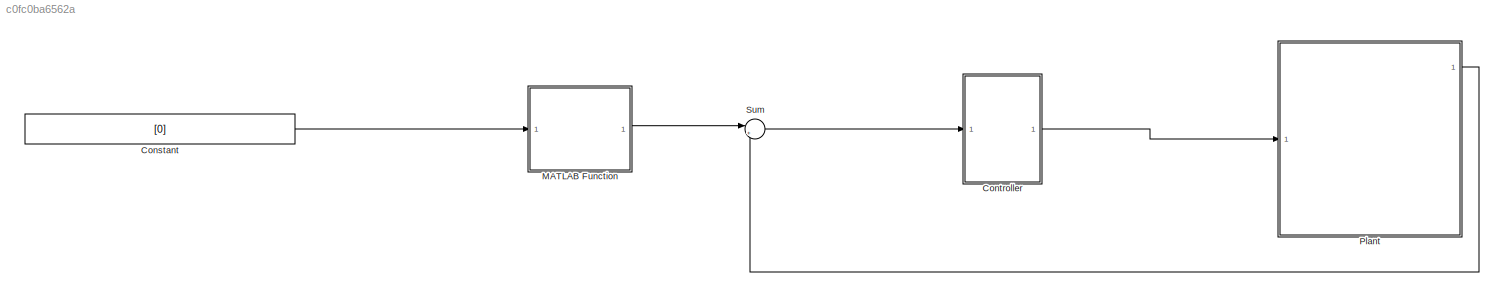
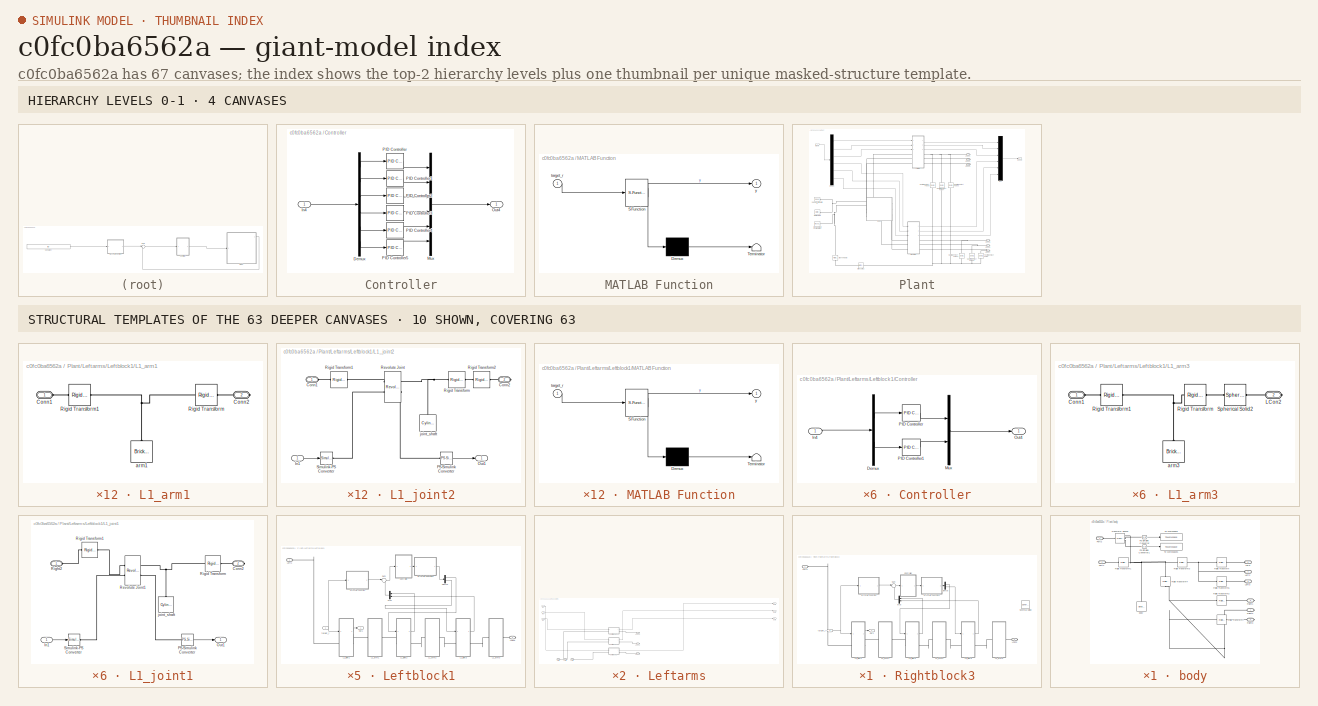
[diagram: thumbnail index - top-2 hierarchy levels (4 canvases) + 10 structural-template representatives of the remaining 63 canvases]
MODEL slx_c0fc0ba6562a
KIND model
CONFIG AbsTol = auto
CONFIG EnableMultiTasking = off
CONFIG FixedStep = auto
CONFIG MaxStep = auto
CONFIG MinStep = auto
CONFIG RelTol = 1e-3
CONFIG SampleTimeConstraint = Unconstrained
CONFIG Solver = VariableStepAuto
CONFIG SolverName = VariableStepAuto
CONFIG StartTime = 0.0
CONFIG StopTime = 10.0
BLOCK [Constant] Constant
  Value = [0]
BLOCK [SubSystem] Controller
  Ports = [1, 1]
  RequestExecContextInheritance = off
BLOCK [Demux] Controller/Demux
  Outputs = 6
  Ports = [1, 6]
BLOCK [Inport] Controller/In4
BLOCK [Mux] Controller/Mux
  DisplayOption = bar
  Inputs = 6
  Ports = [6, 1]
BLOCK [Outport] Controller/Out4
  VectorParamsAs1DForOutWhenUnconnected = off
BLOCK [Reference] Controller/PID Controller  REF=simulink/Continuous/PID Controller
  Ports = [1, 1]
  SourceBlock = simulink/Continuous/PID Controller
  SourceProductBaseCode = SL
  SourceType = PID 1dof
BLOCK [Reference] Controller/PID Controller1  REF=simulink/Continuous/PID Controller
  Ports = [1, 1]
  SourceBlock = simulink/Continuous/PID Controller
  SourceProductBaseCode = SL
  SourceType = PID 1dof
BLOCK [Reference] Controller/PID Controller2  REF=simulink/Continuous/PID Controller
  Ports = [1, 1]
  SourceBlock = simulink/Continuous/PID Controller
  SourceProductBaseCode = SL
  SourceType = PID 1dof
BLOCK [Reference] Controller/PID Controller3  REF=simulink/Continuous/PID Controller
  Ports = [1, 1]
  SourceBlock = simulink/Continuous/PID Controller
  SourceProductBaseCode = SL
  SourceType = PID 1dof
BLOCK [Reference] Controller/PID Controller4  REF=simulink/Continuous/PID Controller
  Ports = [1, 1]
  SourceBlock = simulink/Continuous/PID Controller
  SourceProductBaseCode = SL
  SourceType = PID 1dof
BLOCK [Reference] Controller/PID Controller5  REF=simulink/Continuous/PID Controller
  Ports = [1, 1]
  SourceBlock = simulink/Continuous/PID Controller
  SourceProductBaseCode = SL
  SourceType = PID 1dof
BLOCK [SubSystem] MATLAB Function
  ErrorFcn = Stateflow.Translate.translate
  PermitHierarchicalResolution = ExplicitOnly
  Ports = [1, 1]
  RequestExecContextInheritance = off
  SFBlockType = MATLAB Function
  TreatAsAtomicUnit = on
BLOCK [Demux] MATLAB Function/ Demux 
  Outputs = 1
  Ports = [1, 1]
BLOCK [S-Function] MATLAB Function/ SFunction 
  EnableBusSupport = on
  FunctionName = sf_sfun
  PortCounts = [1 2]
  Ports = [1, 2]
  SFcnIsStateOwnerBlock = off
  SFunctionDeploymentMode = off
  Tag = Stateflow S-Function 2
BLOCK [Terminator] MATLAB Function/ Terminator 
BLOCK [Inport] MATLAB Function/target_r
BLOCK [Outport] MATLAB Function/y
  VectorParamsAs1DForOutWhenUnconnected = off
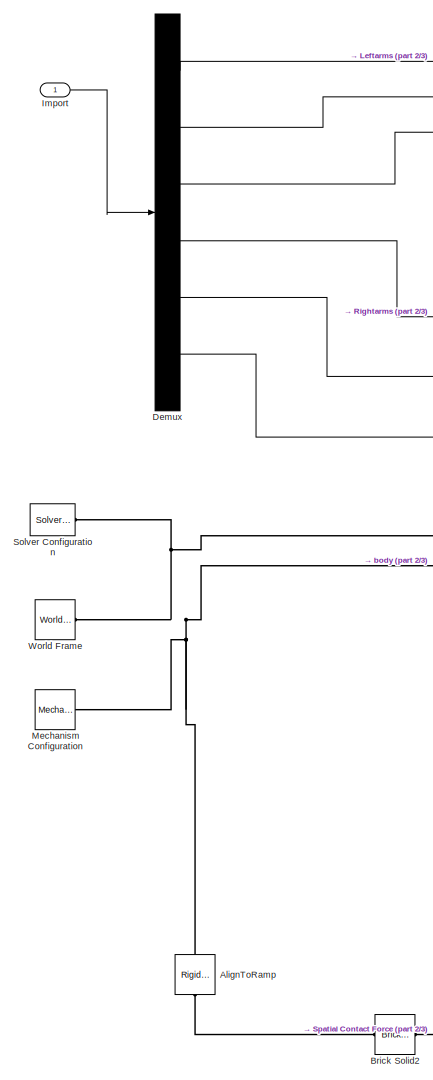
[diagram: Plant - part 1/3, left side, full height]
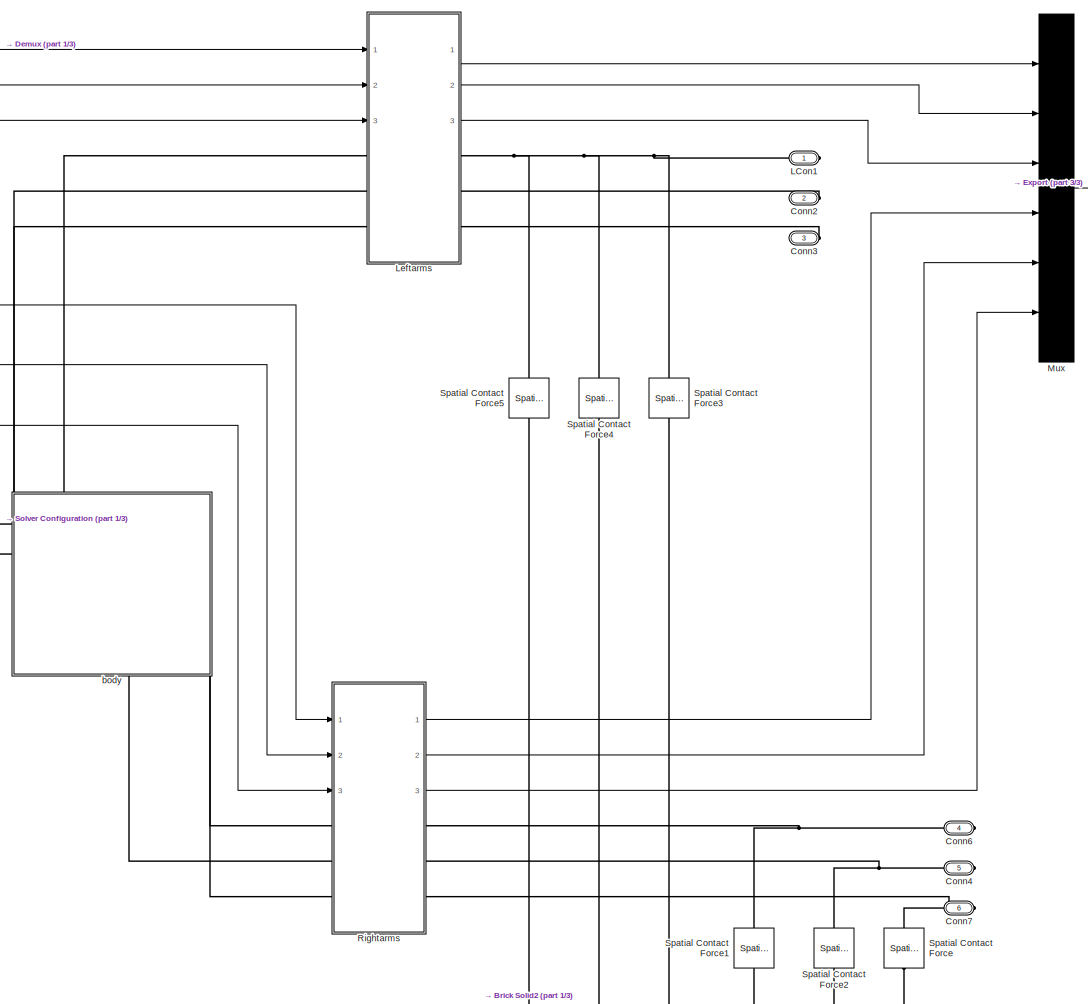
[diagram: Plant - part 2/3, center side, full height]
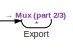
[diagram: Plant - part 3/3, top right region]
BLOCK [SubSystem] Plant
  Ports = [1, 1, 0, 0, 0, 0, 6]
  RequestExecContextInheritance = off
BLOCK [Reference] Plant/AlignToRamp  REF=sm_lib/Frames and
Transforms/Rigid
Transform
  NameLocation = left
  Ports = [0, 0, 0, 0, 0, 1, 1]
  SourceBlock = sm_lib/Frames and\nTransforms/Rigid\nTransform
  SourceProductBaseCode = MS
  SourceType = Rigid\nTransform
BLOCK [Reference] Plant/Brick Solid2  REF=sm_lib/Body Elements/Brick Solid
  NameLocation = top
  Ports = [0, 0, 0, 0, 0, 1, 1]
  SourceBlock = sm_lib/Body Elements/Brick Solid
  SourceProductBaseCode = MS
  SourceType = Brick Solid
BLOCK [PMIOPort] Plant/Conn2
  Port = 2
  Side = Right
BLOCK [PMIOPort] Plant/Conn3
  Port = 3
  Side = Right
BLOCK [PMIOPort] Plant/Conn4
  Port = 5
  Side = Right
BLOCK [PMIOPort] Plant/Conn6
  Port = 4
  Side = Right
BLOCK [PMIOPort] Plant/Conn7
  Port = 6
  Side = Right
BLOCK [Demux] Plant/Demux
  Outputs = 6
  Ports = [1, 6]
BLOCK [Outport] Plant/Export
  VectorParamsAs1DForOutWhenUnconnected = off
BLOCK [Inport] Plant/Import
BLOCK [PMIOPort] Plant/LCon1
  Side = Right
BLOCK [SubSystem] Plant/Leftarms
  Ports = [3, 3, 0, 0, 0, 3, 3]
  RequestExecContextInheritance = off
BLOCK [Inport] Plant/Leftarms/In1
BLOCK [Inport] Plant/Leftarms/In3
  Port = 2
BLOCK [Inport] Plant/Leftarms/In5
  Port = 3
BLOCK [PMIOPort] Plant/Leftarms/LCon1
  Side = Right
BLOCK [PMIOPort] Plant/Leftarms/LCon2
  Port = 2
  Side = Right
BLOCK [PMIOPort] Plant/Leftarms/LCon3
  Port = 3
  Side = Right
BLOCK [PMIOPort] Plant/Leftarms/Left1
  Port = 6
  Side = Left
BLOCK [PMIOPort] Plant/Leftarms/Left2
  Port = 5
  Side = Left
BLOCK [PMIOPort] Plant/Leftarms/Left3
  Port = 4
  Side = Left
BLOCK [SubSystem] Plant/Leftarms/Leftblock1
  Ports = [1, 1, 0, 0, 0, 1, 1]
  RequestExecContextInheritance = off
BLOCK [SubSystem] Plant/Leftarms/Leftblock1/Controller
  Ports = [1, 1]
  RequestExecContextInheritance = off
BLOCK [Demux] Plant/Leftarms/Leftblock1/Controller/Demux
  Outputs = 2
  Ports = [1, 2]
BLOCK [Inport] Plant/Leftarms/Leftblock1/Controller/In4
BLOCK [Mux] Plant/Leftarms/Leftblock1/Controller/Mux
  DisplayOption = bar
  Inputs = 2
  Ports = [2, 1]
BLOCK [Outport] Plant/Leftarms/Leftblock1/Controller/Out4
  VectorParamsAs1DForOutWhenUnconnected = off
BLOCK [Reference] Plant/Leftarms/Leftblock1/Controller/PID Controller  REF=simulink/Continuous/PID Controller
  Ports = [1, 1]
  SourceBlock = simulink/Continuous/PID Controller
  SourceProductBaseCode = SL
  SourceType = PID 1dof
BLOCK [Reference] Plant/Leftarms/Leftblock1/Controller/PID Controller1  REF=simulink/Continuous/PID Controller
  Ports = [1, 1]
  SourceBlock = simulink/Continuous/PID Controller
  SourceProductBaseCode = SL
  SourceType = PID 1dof
BLOCK [Demux] Plant/Leftarms/Leftblock1/Demux
  Outputs = 2
  Ports = [1, 2]
BLOCK [SubSystem] Plant/Leftarms/Leftblock1/L1_arm1
  Ports = [0, 0, 0, 0, 0, 1, 1]
  RequestExecContextInheritance = off
BLOCK [PMIOPort] Plant/Leftarms/Leftblock1/L1_arm1/Conn1
  Side = Left
BLOCK [PMIOPort] Plant/Leftarms/Leftblock1/L1_arm1/Conn2
  Port = 2
  Side = Right
BLOCK [Reference] Plant/Leftarms/Leftblock1/L1_arm1/Rigid Transform  REF=sm_lib/Frames and
Transforms/Rigid
Transform
  Ports = [0, 0, 0, 0, 0, 1, 1]
  SourceBlock = sm_lib/Frames and\nTransforms/Rigid\nTransform
  SourceProductBaseCode = MS
  SourceType = Rigid\nTransform
BLOCK [Reference] Plant/Leftarms/Leftblock1/L1_arm1/Rigid Transform1  REF=sm_lib/Frames and
Transforms/Rigid
Transform
  Ports = [0, 0, 0, 0, 0, 1, 1]
  SourceBlock = sm_lib/Frames and\nTransforms/Rigid\nTransform
  SourceProductBaseCode = MS
  SourceType = Rigid\nTransform
BLOCK [Reference] Plant/Leftarms/Leftblock1/L1_arm1/arm1  REF=sm_lib/Body Elements/Brick Solid
  NameLocation = right
  Ports = [0, 0, 0, 0, 0, 0, 1]
  SourceBlock = sm_lib/Body Elements/Brick Solid
  SourceProductBaseCode = MS
  SourceType = Brick Solid
BLOCK [SubSystem] Plant/Leftarms/Leftblock1/L1_arm2
  Ports = [0, 0, 0, 0, 0, 1, 1]
  RequestExecContextInheritance = off
BLOCK [PMIOPort] Plant/Leftarms/Leftblock1/L1_arm2/Conn1
  Side = Left
BLOCK [PMIOPort] Plant/Leftarms/Leftblock1/L1_arm2/Conn2
  Port = 2
  Side = Right
BLOCK [Reference] Plant/Leftarms/Leftblock1/L1_arm2/Rigid Transform  REF=sm_lib/Frames and
Transforms/Rigid
Transform
  Ports = [0, 0, 0, 0, 0, 1, 1]
  SourceBlock = sm_lib/Frames and\nTransforms/Rigid\nTransform
  SourceProductBaseCode = MS
  SourceType = Rigid\nTransform
BLOCK [Reference] Plant/Leftarms/Leftblock1/L1_arm2/Rigid Transform1  REF=sm_lib/Frames and
Transforms/Rigid
Transform
  Ports = [0, 0, 0, 0, 0, 1, 1]
  SourceBlock = sm_lib/Frames and\nTransforms/Rigid\nTransform
  SourceProductBaseCode = MS
  SourceType = Rigid\nTransform
BLOCK [Reference] Plant/Leftarms/Leftblock1/L1_arm2/arm2  REF=sm_lib/Body Elements/Brick Solid
  NameLocation = right
  Ports = [0, 0, 0, 0, 0, 0, 1]
  SourceBlock = sm_lib/Body Elements/Brick Solid
  SourceProductBaseCode = MS
  SourceType = Brick Solid
BLOCK [SubSystem] Plant/Leftarms/Leftblock1/L1_arm3
  Ports = [0, 0, 0, 0, 0, 1, 1]
  RequestExecContextInheritance = off
BLOCK [PMIOPort] Plant/Leftarms/Leftblock1/L1_arm3/Conn1
  Side = Left
BLOCK [PMIOPort] Plant/Leftarms/Leftblock1/L1_arm3/LCon2
  Port = 2
  Side = Right
BLOCK [Reference] Plant/Leftarms/Leftblock1/L1_arm3/Rigid Transform  REF=sm_lib/Frames and
Transforms/Rigid
Transform
  Ports = [0, 0, 0, 0, 0, 1, 1]
  SourceBlock = sm_lib/Frames and\nTransforms/Rigid\nTransform
  SourceProductBaseCode = MS
  SourceType = Rigid\nTransform
BLOCK [Reference] Plant/Leftarms/Leftblock1/L1_arm3/Rigid Transform1  REF=sm_lib/Frames and
Transforms/Rigid
Transform
  Ports = [0, 0, 0, 0, 0, 1, 1]
  SourceBlock = sm_lib/Frames and\nTransforms/Rigid\nTransform
  SourceProductBaseCode = MS
  SourceType = Rigid\nTransform
BLOCK [Reference] Plant/Leftarms/Leftblock1/L1_arm3/Spherical Solid2  REF=sm_lib/Body Elements/Spherical Solid
  NameLocation = top
  Ports = [0, 0, 0, 0, 0, 1, 1]
  SourceBlock = sm_lib/Body Elements/Spherical Solid
  SourceProductBaseCode = MS
  SourceType = Spherical Solid
BLOCK [Reference] Plant/Leftarms/Leftblock1/L1_arm3/arm3  REF=sm_lib/Body Elements/Brick Solid
  NameLocation = right
  Ports = [0, 0, 0, 0, 0, 0, 1]
  SourceBlock = sm_lib/Body Elements/Brick Solid
  SourceProductBaseCode = MS
  SourceType = Brick Solid
BLOCK [SubSystem] Plant/Leftarms/Leftblock1/L1_joint1
  Ports = [1, 1, 0, 0, 0, 1, 1]
  RequestExecContextInheritance = off
BLOCK [PMIOPort] Plant/Leftarms/Leftblock1/L1_joint1/Conn2
  Port = 2
  Side = Right
BLOCK [Inport] Plant/Leftarms/Leftblock1/L1_joint1/In1
BLOCK [Outport] Plant/Leftarms/Leftblock1/L1_joint1/Out1
  VectorParamsAs1DForOutWhenUnconnected = off
BLOCK [Reference] Plant/Leftarms/Leftblock1/L1_joint1/PS-Simulink Converter  REF=nesl_utility/PS-Simulink
Converter
  Ports = [0, 1, 0, 0, 0, 1]
  SourceBlock = nesl_utility/PS-Simulink\nConverter
  SourceProductBaseCode = SS
  SourceType = PS-Simulink\nConverter
BLOCK [Reference] Plant/Leftarms/Leftblock1/L1_joint1/Revolute Joint1  REF=sm_lib/Joints/Revolute Joint
  Ports = [0, 0, 0, 0, 0, 2, 2]
  SourceBlock = sm_lib/Joints/Revolute Joint
  SourceProductBaseCode = MS
  SourceType = Revolute Joint
BLOCK [PMIOPort] Plant/Leftarms/Leftblock1/L1_joint1/Right2
  Side = Left
BLOCK [Reference] Plant/Leftarms/Leftblock1/L1_joint1/Rigid Transform  REF=sm_lib/Frames and
Transforms/Rigid
Transform
  Ports = [0, 0, 0, 0, 0, 1, 1]
  SourceBlock = sm_lib/Frames and\nTransforms/Rigid\nTransform
  SourceProductBaseCode = MS
  SourceType = Rigid\nTransform
BLOCK [Reference] Plant/Leftarms/Leftblock1/L1_joint1/Rigid Transform1  REF=sm_lib/Frames and
Transforms/Rigid
Transform
  Ports = [0, 0, 0, 0, 0, 1, 1]
  SourceBlock = sm_lib/Frames and\nTransforms/Rigid\nTransform
  SourceProductBaseCode = MS
  SourceType = Rigid\nTransform
BLOCK [Reference] Plant/Leftarms/Leftblock1/L1_joint1/Simulink-PS Converter  REF=nesl_utility/Simulink-PS
Converter
  Ports = [1, 0, 0, 0, 0, 0, 1]
  SourceBlock = nesl_utility/Simulink-PS\nConverter
  SourceProductBaseCode = SS
  SourceType = Simulink-PS\nConverter
BLOCK [Reference] Plant/Leftarms/Leftblock1/L1_joint1/joint_shaft  REF=sm_lib/Body Elements/Cylindrical Solid
  NameLocation = right
  Ports = [0, 0, 0, 0, 0, 0, 1]
  SourceBlock = sm_lib/Body Elements/Cylindrical Solid
  SourceProductBaseCode = MS
  SourceType = Cylindrical Solid
BLOCK [SubSystem] Plant/Leftarms/Leftblock1/L1_joint2
  Ports = [1, 1, 0, 0, 0, 1, 1]
  RequestExecContextInheritance = off
BLOCK [PMIOPort] Plant/Leftarms/Leftblock1/L1_joint2/Conn1
  Side = Left
BLOCK [PMIOPort] Plant/Leftarms/Leftblock1/L1_joint2/Conn2
  Port = 2
  Side = Right
BLOCK [Inport] Plant/Leftarms/Leftblock1/L1_joint2/In1
BLOCK [Outport] Plant/Leftarms/Leftblock1/L1_joint2/Out1
  VectorParamsAs1DForOutWhenUnconnected = off
BLOCK [Reference] Plant/Leftarms/Leftblock1/L1_joint2/PS-Simulink Converter  REF=nesl_utility/PS-Simulink
Converter
  Ports = [0, 1, 0, 0, 0, 1]
  SourceBlock = nesl_utility/PS-Simulink\nConverter
  SourceProductBaseCode = SS
  SourceType = PS-Simulink\nConverter
BLOCK [Reference] Plant/Leftarms/Leftblock1/L1_joint2/Revolute Joint  REF=sm_lib/Joints/Revolute Joint
  Ports = [0, 0, 0, 0, 0, 2, 2]
  SourceBlock = sm_lib/Joints/Revolute Joint
  SourceProductBaseCode = MS
  SourceType = Revolute Joint
BLOCK [Reference] Plant/Leftarms/Leftblock1/L1_joint2/Rigid Transform  REF=sm_lib/Frames and
Transforms/Rigid
Transform
  Ports = [0, 0, 0, 0, 0, 1, 1]
  SourceBlock = sm_lib/Frames and\nTransforms/Rigid\nTransform
  SourceProductBaseCode = MS
  SourceType = Rigid\nTransform
BLOCK [Reference] Plant/Leftarms/Leftblock1/L1_joint2/Rigid Transform1  REF=sm_lib/Frames and
Transforms/Rigid
Transform
  Ports = [0, 0, 0, 0, 0, 1, 1]
  SourceBlock = sm_lib/Frames and\nTransforms/Rigid\nTransform
  SourceProductBaseCode = MS
  SourceType = Rigid\nTransform
BLOCK [Reference] Plant/Leftarms/Leftblock1/L1_joint2/Rigid Transform2  REF=sm_lib/Frames and
Transforms/Rigid
Transform
  Ports = [0, 0, 0, 0, 0, 1, 1]
  SourceBlock = sm_lib/Frames and\nTransforms/Rigid\nTransform
  SourceProductBaseCode = MS
  SourceType = Rigid\nTransform
BLOCK [Reference] Plant/Leftarms/Leftblock1/L1_joint2/Simulink-PS Converter  REF=nesl_utility/Simulink-PS
Converter
  Ports = [1, 0, 0, 0, 0, 0, 1]
  SourceBlock = nesl_utility/Simulink-PS\nConverter
  SourceProductBaseCode = SS
  SourceType = Simulink-PS\nConverter
BLOCK [Reference] Plant/Leftarms/Leftblock1/L1_joint2/joint_shaft  REF=sm_lib/Body Elements/Cylindrical Solid
  NameLocation = right
  Ports = [0, 0, 0, 0, 0, 0, 1]
  SourceBlock = sm_lib/Body Elements/Cylindrical Solid
  SourceProductBaseCode = MS
  SourceType = Cylindrical Solid
BLOCK [SubSystem] Plant/Leftarms/Leftblock1/L1_joint3
  Ports = [1, 1, 0, 0, 0, 1, 1]
  RequestExecContextInheritance = off
BLOCK [PMIOPort] Plant/Leftarms/Leftblock1/L1_joint3/Conn1
  Side = Left
BLOCK [Inport] Plant/Leftarms/Leftblock1/L1_joint3/In1
BLOCK [PMIOPort] Plant/Leftarms/Leftblock1/L1_joint3/LCon2
  Port = 2
  Side = Right
BLOCK [Outport] Plant/Leftarms/Leftblock1/L1_joint3/Out1
  VectorParamsAs1DForOutWhenUnconnected = off
BLOCK [Reference] Plant/Leftarms/Leftblock1/L1_joint3/PS-Simulink Converter  REF=nesl_utility/PS-Simulink
Converter
  Ports = [0, 1, 0, 0, 0, 1]
  SourceBlock = nesl_utility/PS-Simulink\nConverter
  SourceProductBaseCode = SS
  SourceType = PS-Simulink\nConverter
BLOCK [Reference] Plant/Leftarms/Leftblock1/L1_joint3/Revolute Joint  REF=sm_lib/Joints/Revolute Joint
  Ports = [0, 0, 0, 0, 0, 2, 2]
  SourceBlock = sm_lib/Joints/Revolute Joint
  SourceProductBaseCode = MS
  SourceType = Revolute Joint
BLOCK [Reference] Plant/Leftarms/Leftblock1/L1_joint3/Rigid Transform  REF=sm_lib/Frames and
Transforms/Rigid
Transform
  Ports = [0, 0, 0, 0, 0, 1, 1]
  SourceBlock = sm_lib/Frames and\nTransforms/Rigid\nTransform
  SourceProductBaseCode = MS
  SourceType = Rigid\nTransform
BLOCK [Reference] Plant/Leftarms/Leftblock1/L1_joint3/Rigid Transform1  REF=sm_lib/Frames and
Transforms/Rigid
Transform
  Ports = [0, 0, 0, 0, 0, 1, 1]
  SourceBlock = sm_lib/Frames and\nTransforms/Rigid\nTransform
  SourceProductBaseCode = MS
  SourceType = Rigid\nTransform
BLOCK [Reference] Plant/Leftarms/Leftblock1/L1_joint3/Rigid Transform2  REF=sm_lib/Frames and
Transforms/Rigid
Transform
  Ports = [0, 0, 0, 0, 0, 1, 1]
  SourceBlock = sm_lib/Frames and\nTransforms/Rigid\nTransform
  SourceProductBaseCode = MS
  SourceType = Rigid\nTransform
BLOCK [Reference] Plant/Leftarms/Leftblock1/L1_joint3/Simulink-PS Converter  REF=nesl_utility/Simulink-PS
Converter
  Ports = [1, 0, 0, 0, 0, 0, 1]
  SourceBlock = nesl_utility/Simulink-PS\nConverter
  SourceProductBaseCode = SS
  SourceType = Simulink-PS\nConverter
BLOCK [Reference] Plant/Leftarms/Leftblock1/L1_joint3/joint_shaft  REF=sm_lib/Body Elements/Cylindrical Solid
  NameLocation = right
  Ports = [0, 0, 0, 0, 0, 0, 1]
  SourceBlock = sm_lib/Body Elements/Cylindrical Solid
  SourceProductBaseCode = MS
  SourceType = Cylindrical Solid
BLOCK [PMIOPort] Plant/Leftarms/Leftblock1/LCon2
  Port = 2
  Side = Right
BLOCK [PMIOPort] Plant/Leftarms/Leftblock1/Left1
  Side = Left
BLOCK [SubSystem] Plant/Leftarms/Leftblock1/MATLAB Function
  ErrorFcn = Stateflow.Translate.translate
  PermitHierarchicalResolution = ExplicitOnly
  Ports = [1, 1]
  RequestExecContextInheritance = off
  SFBlockType = MATLAB Function
  TreatAsAtomicUnit = on
BLOCK [Demux] Plant/Leftarms/Leftblock1/MATLAB Function/ Demux 
  Outputs = 1
  Ports = [1, 1]
BLOCK [S-Function] Plant/Leftarms/Leftblock1/MATLAB Function/ SFunction 
  EnableBusSupport = on
  FunctionName = sf_sfun
  PortCounts = [1 2]
  Ports = [1, 2]
  SFcnIsStateOwnerBlock = off
  SFunctionDeploymentMode = off
  Tag = Stateflow S-Function 6
BLOCK [Terminator] Plant/Leftarms/Leftblock1/MATLAB Function/ Terminator 
BLOCK [Inport] Plant/Leftarms/Leftblock1/MATLAB Function/target_r
BLOCK [Outport] Plant/Leftarms/Leftblock1/MATLAB Function/y
  VectorParamsAs1DForOutWhenUnconnected = off
BLOCK [SubSystem] Plant/Leftarms/Leftblock1/MATLAB Function1
  ErrorFcn = Stateflow.Translate.translate
  PermitHierarchicalResolution = ExplicitOnly
  Ports = [1, 1]
  RequestExecContextInheritance = off
  SFBlockType = MATLAB Function
  TreatAsAtomicUnit = on
BLOCK [Demux] Plant/Leftarms/Leftblock1/MATLAB Function1/ Demux 
  Outputs = 1
  Ports = [1, 1]
BLOCK [S-Function] Plant/Leftarms/Leftblock1/MATLAB Function1/ SFunction 
  EnableBusSupport = on
  FunctionName = sf_sfun
  PortCounts = [1 2]
  Ports = [1, 2]
  SFcnIsStateOwnerBlock = off
  SFunctionDeploymentMode = off
  Tag = Stateflow S-Function 7
BLOCK [Terminator] Plant/Leftarms/Leftblock1/MATLAB Function1/ Terminator 
BLOCK [Inport] Plant/Leftarms/Leftblock1/MATLAB Function1/target_r
BLOCK [Outport] Plant/Leftarms/Leftblock1/MATLAB Function1/y
  VectorParamsAs1DForOutWhenUnconnected = off
BLOCK [Mux] Plant/Leftarms/Leftblock1/Mux
  DisplayOption = bar
  Inputs = 2
  Ports = [2, 1]
BLOCK [Outport] Plant/Leftarms/Leftblock1/Out1
BLOCK [Sum] Plant/Leftarms/Leftblock1/Sum
  Inputs = |+-
  Ports = [2, 1]
BLOCK [Inport] Plant/Leftarms/Leftblock1/target_r
BLOCK [SubSystem] Plant/Leftarms/Leftblock2
  Ports = [1, 1, 0, 0, 0, 1, 1]
  RequestExecContextInheritance = off
BLOCK [SubSystem] Plant/Leftarms/Leftblock2/Controller
  Ports = [1, 1]
  RequestExecContextInheritance = off
BLOCK [Demux] Plant/Leftarms/Leftblock2/Controller/Demux
  Outputs = 2
  Ports = [1, 2]
BLOCK [Inport] Plant/Leftarms/Leftblock2/Controller/In4
BLOCK [Mux] Plant/Leftarms/Leftblock2/Controller/Mux
  DisplayOption = bar
  Inputs = 2
  Ports = [2, 1]
BLOCK [Outport] Plant/Leftarms/Leftblock2/Controller/Out4
  VectorParamsAs1DForOutWhenUnconnected = off
BLOCK [Reference] Plant/Leftarms/Leftblock2/Controller/PID Controller  REF=simulink/Continuous/PID Controller
  Ports = [1, 1]
  SourceBlock = simulink/Continuous/PID Controller
  SourceProductBaseCode = SL
  SourceType = PID 1dof
BLOCK [Reference] Plant/Leftarms/Leftblock2/Controller/PID Controller1  REF=simulink/Continuous/PID Controller
  Ports = [1, 1]
  SourceBlock = simulink/Continuous/PID Controller
  SourceProductBaseCode = SL
  SourceType = PID 1dof
BLOCK [Demux] Plant/Leftarms/Leftblock2/Demux
  Outputs = 2
  Ports = [1, 2]
BLOCK [SubSystem] Plant/Leftarms/Leftblock2/L2_arm1
  Ports = [0, 0, 0, 0, 0, 1, 1]
  RequestExecContextInheritance = off
BLOCK [PMIOPort] Plant/Leftarms/Leftblock2/L2_arm1/Conn1
  Side = Left
BLOCK [PMIOPort] Plant/Leftarms/Leftblock2/L2_arm1/Conn2
  Port = 2
  Side = Right
BLOCK [Reference] Plant/Leftarms/Leftblock2/L2_arm1/Rigid Transform  REF=sm_lib/Frames and
Transforms/Rigid
Transform
  Ports = [0, 0, 0, 0, 0, 1, 1]
  SourceBlock = sm_lib/Frames and\nTransforms/Rigid\nTransform
  SourceProductBaseCode = MS
  SourceType = Rigid\nTransform
BLOCK [Reference] Plant/Leftarms/Leftblock2/L2_arm1/Rigid Transform1  REF=sm_lib/Frames and
Transforms/Rigid
Transform
  Ports = [0, 0, 0, 0, 0, 1, 1]
  SourceBlock = sm_lib/Frames and\nTransforms/Rigid\nTransform
  SourceProductBaseCode = MS
  SourceType = Rigid\nTransform
BLOCK [Reference] Plant/Leftarms/Leftblock2/L2_arm1/arm1  REF=sm_lib/Body Elements/Brick Solid
  NameLocation = right
  Ports = [0, 0, 0, 0, 0, 0, 1]
  SourceBlock = sm_lib/Body Elements/Brick Solid
  SourceProductBaseCode = MS
  SourceType = Brick Solid
BLOCK [SubSystem] Plant/Leftarms/Leftblock2/L2_arm2
  Ports = [0, 0, 0, 0, 0, 1, 1]
  RequestExecContextInheritance = off
BLOCK [PMIOPort] Plant/Leftarms/Leftblock2/L2_arm2/Conn1
  Side = Left
BLOCK [PMIOPort] Plant/Leftarms/Leftblock2/L2_arm2/Conn2
  Port = 2
  Side = Right
BLOCK [Reference] Plant/Leftarms/Leftblock2/L2_arm2/Rigid Transform  REF=sm_lib/Frames and
Transforms/Rigid
Transform
  Ports = [0, 0, 0, 0, 0, 1, 1]
  SourceBlock = sm_lib/Frames and\nTransforms/Rigid\nTransform
  SourceProductBaseCode = MS
  SourceType = Rigid\nTransform
BLOCK [Reference] Plant/Leftarms/Leftblock2/L2_arm2/Rigid Transform1  REF=sm_lib/Frames and
Transforms/Rigid
Transform
  Ports = [0, 0, 0, 0, 0, 1, 1]
  SourceBlock = sm_lib/Frames and\nTransforms/Rigid\nTransform
  SourceProductBaseCode = MS
  SourceType = Rigid\nTransform
BLOCK [Reference] Plant/Leftarms/Leftblock2/L2_arm2/arm2  REF=sm_lib/Body Elements/Brick Solid
  NameLocation = right
  Ports = [0, 0, 0, 0, 0, 0, 1]
  SourceBlock = sm_lib/Body Elements/Brick Solid
  SourceProductBaseCode = MS
  SourceType = Brick Solid
BLOCK [SubSystem] Plant/Leftarms/Leftblock2/L2_arm3
  Ports = [0, 0, 0, 0, 0, 1, 1]
  RequestExecContextInheritance = off
BLOCK [PMIOPort] Plant/Leftarms/Leftblock2/L2_arm3/Conn1
  Side = Left
BLOCK [PMIOPort] Plant/Leftarms/Leftblock2/L2_arm3/LCon2
  Port = 2
  Side = Right
BLOCK [Reference] Plant/Leftarms/Leftblock2/L2_arm3/Rigid Transform  REF=sm_lib/Frames and
Transforms/Rigid
Transform
  Ports = [0, 0, 0, 0, 0, 1, 1]
  SourceBlock = sm_lib/Frames and\nTransforms/Rigid\nTransform
  SourceProductBaseCode = MS
  SourceType = Rigid\nTransform
BLOCK [Reference] Plant/Leftarms/Leftblock2/L2_arm3/Rigid Transform1  REF=sm_lib/Frames and
Transforms/Rigid
Transform
  Ports = [0, 0, 0, 0, 0, 1, 1]
  SourceBlock = sm_lib/Frames and\nTransforms/Rigid\nTransform
  SourceProductBaseCode = MS
  SourceType = Rigid\nTransform
BLOCK [Reference] Plant/Leftarms/Leftblock2/L2_arm3/Spherical Solid2  REF=sm_lib/Body Elements/Spherical Solid
  NameLocation = top
  Ports = [0, 0, 0, 0, 0, 1, 1]
  SourceBlock = sm_lib/Body Elements/Spherical Solid
  SourceProductBaseCode = MS
  SourceType = Spherical Solid
BLOCK [Reference] Plant/Leftarms/Leftblock2/L2_arm3/arm3  REF=sm_lib/Body Elements/Brick Solid
  NameLocation = right
  Ports = [0, 0, 0, 0, 0, 0, 1]
  SourceBlock = sm_lib/Body Elements/Brick Solid
  SourceProductBaseCode = MS
  SourceType = Brick Solid
BLOCK [SubSystem] Plant/Leftarms/Leftblock2/L2_joint1
  Ports = [1, 1, 0, 0, 0, 1, 1]
  RequestExecContextInheritance = off
BLOCK [PMIOPort] Plant/Leftarms/Leftblock2/L2_joint1/Conn2
  Port = 2
  Side = Right
BLOCK [Inport] Plant/Leftarms/Leftblock2/L2_joint1/In1
BLOCK [Outport] Plant/Leftarms/Leftblock2/L2_joint1/Out1
  VectorParamsAs1DForOutWhenUnconnected = off
BLOCK [Reference] Plant/Leftarms/Leftblock2/L2_joint1/PS-Simulink Converter  REF=nesl_utility/PS-Simulink
Converter
  Ports = [0, 1, 0, 0, 0, 1]
  SourceBlock = nesl_utility/PS-Simulink\nConverter
  SourceProductBaseCode = SS
  SourceType = PS-Simulink\nConverter
BLOCK [Reference] Plant/Leftarms/Leftblock2/L2_joint1/Revolute Joint1  REF=sm_lib/Joints/Revolute Joint
  Ports = [0, 0, 0, 0, 0, 2, 2]
  SourceBlock = sm_lib/Joints/Revolute Joint
  SourceProductBaseCode = MS
  SourceType = Revolute Joint
BLOCK [PMIOPort] Plant/Leftarms/Leftblock2/L2_joint1/Right2
  Side = Left
BLOCK [Reference] Plant/Leftarms/Leftblock2/L2_joint1/Rigid Transform  REF=sm_lib/Frames and
Transforms/Rigid
Transform
  Ports = [0, 0, 0, 0, 0, 1, 1]
  SourceBlock = sm_lib/Frames and\nTransforms/Rigid\nTransform
  SourceProductBaseCode = MS
  SourceType = Rigid\nTransform
BLOCK [Reference] Plant/Leftarms/Leftblock2/L2_joint1/Rigid Transform1  REF=sm_lib/Frames and
Transforms/Rigid
Transform
  Ports = [0, 0, 0, 0, 0, 1, 1]
  SourceBlock = sm_lib/Frames and\nTransforms/Rigid\nTransform
  SourceProductBaseCode = MS
  SourceType = Rigid\nTransform
BLOCK [Reference] Plant/Leftarms/Leftblock2/L2_joint1/Simulink-PS Converter  REF=nesl_utility/Simulink-PS
Converter
  Ports = [1, 0, 0, 0, 0, 0, 1]
  SourceBlock = nesl_utility/Simulink-PS\nConverter
  SourceProductBaseCode = SS
  SourceType = Simulink-PS\nConverter
BLOCK [Reference] Plant/Leftarms/Leftblock2/L2_joint1/joint_shaft  REF=sm_lib/Body Elements/Cylindrical Solid
  NameLocation = right
  Ports = [0, 0, 0, 0, 0, 0, 1]
  SourceBlock = sm_lib/Body Elements/Cylindrical Solid
  SourceProductBaseCode = MS
  SourceType = Cylindrical Solid
BLOCK [SubSystem] Plant/Leftarms/Leftblock2/L2_joint2
  Ports = [1, 1, 0, 0, 0, 1, 1]
  RequestExecContextInheritance = off
BLOCK [PMIOPort] Plant/Leftarms/Leftblock2/L2_joint2/Conn1
  Side = Left
BLOCK [PMIOPort] Plant/Leftarms/Leftblock2/L2_joint2/Conn2
  Port = 2
  Side = Right
BLOCK [Inport] Plant/Leftarms/Leftblock2/L2_joint2/In1
BLOCK [Outport] Plant/Leftarms/Leftblock2/L2_joint2/Out1
  VectorParamsAs1DForOutWhenUnconnected = off
BLOCK [Reference] Plant/Leftarms/Leftblock2/L2_joint2/PS-Simulink Converter  REF=nesl_utility/PS-Simulink
Converter
  Ports = [0, 1, 0, 0, 0, 1]
  SourceBlock = nesl_utility/PS-Simulink\nConverter
  SourceProductBaseCode = SS
  SourceType = PS-Simulink\nConverter
BLOCK [Reference] Plant/Leftarms/Leftblock2/L2_joint2/Revolute Joint  REF=sm_lib/Joints/Revolute Joint
  Ports = [0, 0, 0, 0, 0, 2, 2]
  SourceBlock = sm_lib/Joints/Revolute Joint
  SourceProductBaseCode = MS
  SourceType = Revolute Joint
BLOCK [Reference] Plant/Leftarms/Leftblock2/L2_joint2/Rigid Transform  REF=sm_lib/Frames and
Transforms/Rigid
Transform
  Ports = [0, 0, 0, 0, 0, 1, 1]
  SourceBlock = sm_lib/Frames and\nTransforms/Rigid\nTransform
  SourceProductBaseCode = MS
  SourceType = Rigid\nTransform
BLOCK [Reference] Plant/Leftarms/Leftblock2/L2_joint2/Rigid Transform1  REF=sm_lib/Frames and
Transforms/Rigid
Transform
  Ports = [0, 0, 0, 0, 0, 1, 1]
  SourceBlock = sm_lib/Frames and\nTransforms/Rigid\nTransform
  SourceProductBaseCode = MS
  SourceType = Rigid\nTransform
BLOCK [Reference] Plant/Leftarms/Leftblock2/L2_joint2/Rigid Transform2  REF=sm_lib/Frames and
Transforms/Rigid
Transform
  Ports = [0, 0, 0, 0, 0, 1, 1]
  SourceBlock = sm_lib/Frames and\nTransforms/Rigid\nTransform
  SourceProductBaseCode = MS
  SourceType = Rigid\nTransform
BLOCK [Reference] Plant/Leftarms/Leftblock2/L2_joint2/Simulink-PS Converter  REF=nesl_utility/Simulink-PS
Converter
  Ports = [1, 0, 0, 0, 0, 0, 1]
  SourceBlock = nesl_utility/Simulink-PS\nConverter
  SourceProductBaseCode = SS
  SourceType = Simulink-PS\nConverter
BLOCK [Reference] Plant/Leftarms/Leftblock2/L2_joint2/joint_shaft  REF=sm_lib/Body Elements/Cylindrical Solid
  NameLocation = right
  Ports = [0, 0, 0, 0, 0, 0, 1]
  SourceBlock = sm_lib/Body Elements/Cylindrical Solid
  SourceProductBaseCode = MS
  SourceType = Cylindrical Solid
BLOCK [SubSystem] Plant/Leftarms/Leftblock2/L2_joint3
  Ports = [1, 1, 0, 0, 0, 1, 1]
  RequestExecContextInheritance = off
BLOCK [PMIOPort] Plant/Leftarms/Leftblock2/L2_joint3/Conn1
  Side = Left
BLOCK [Inport] Plant/Leftarms/Leftblock2/L2_joint3/In1
BLOCK [PMIOPort] Plant/Leftarms/Leftblock2/L2_joint3/LCon2
  Port = 2
  Side = Right
BLOCK [Outport] Plant/Leftarms/Leftblock2/L2_joint3/Out1
  VectorParamsAs1DForOutWhenUnconnected = off
BLOCK [Reference] Plant/Leftarms/Leftblock2/L2_joint3/PS-Simulink Converter  REF=nesl_utility/PS-Simulink
Converter
  Ports = [0, 1, 0, 0, 0, 1]
  SourceBlock = nesl_utility/PS-Simulink\nConverter
  SourceProductBaseCode = SS
  SourceType = PS-Simulink\nConverter
BLOCK [Reference] Plant/Leftarms/Leftblock2/L2_joint3/Revolute Joint  REF=sm_lib/Joints/Revolute Joint
  Ports = [0, 0, 0, 0, 0, 2, 2]
  SourceBlock = sm_lib/Joints/Revolute Joint
  SourceProductBaseCode = MS
  SourceType = Revolute Joint
BLOCK [Reference] Plant/Leftarms/Leftblock2/L2_joint3/Rigid Transform  REF=sm_lib/Frames and
Transforms/Rigid
Transform
  Ports = [0, 0, 0, 0, 0, 1, 1]
  SourceBlock = sm_lib/Frames and\nTransforms/Rigid\nTransform
  SourceProductBaseCode = MS
  SourceType = Rigid\nTransform
BLOCK [Reference] Plant/Leftarms/Leftblock2/L2_joint3/Rigid Transform1  REF=sm_lib/Frames and
Transforms/Rigid
Transform
  Ports = [0, 0, 0, 0, 0, 1, 1]
  SourceBlock = sm_lib/Frames and\nTransforms/Rigid\nTransform
  SourceProductBaseCode = MS
  SourceType = Rigid\nTransform
BLOCK [Reference] Plant/Leftarms/Leftblock2/L2_joint3/Rigid Transform2  REF=sm_lib/Frames and
Transforms/Rigid
Transform
  Ports = [0, 0, 0, 0, 0, 1, 1]
  SourceBlock = sm_lib/Frames and\nTransforms/Rigid\nTransform
  SourceProductBaseCode = MS
  SourceType = Rigid\nTransform
BLOCK [Reference] Plant/Leftarms/Leftblock2/L2_joint3/Simulink-PS Converter  REF=nesl_utility/Simulink-PS
Converter
  Ports = [1, 0, 0, 0, 0, 0, 1]
  SourceBlock = nesl_utility/Simulink-PS\nConverter
  SourceProductBaseCode = SS
  SourceType = Simulink-PS\nConverter
BLOCK [Reference] Plant/Leftarms/Leftblock2/L2_joint3/joint_shaft  REF=sm_lib/Body Elements/Cylindrical Solid
  NameLocation = right
  Ports = [0, 0, 0, 0, 0, 0, 1]
  SourceBlock = sm_lib/Body Elements/Cylindrical Solid
  SourceProductBaseCode = MS
  SourceType = Cylindrical Solid
BLOCK [PMIOPort] Plant/Leftarms/Leftblock2/LCon2
  Port = 2
  Side = Right
BLOCK [PMIOPort] Plant/Leftarms/Leftblock2/Left2
  Side = Left
BLOCK [SubSystem] Plant/Leftarms/Leftblock2/MATLAB Function
  ErrorFcn = Stateflow.Translate.translate
  PermitHierarchicalResolution = ExplicitOnly
  Ports = [1, 1]
  RequestExecContextInheritance = off
  SFBlockType = MATLAB Function
  TreatAsAtomicUnit = on
BLOCK [Demux] Plant/Leftarms/Leftblock2/MATLAB Function/ Demux 
  Outputs = 1
  Ports = [1, 1]
BLOCK [S-Function] Plant/Leftarms/Leftblock2/MATLAB Function/ SFunction 
  EnableBusSupport = on
  FunctionName = sf_sfun
  PortCounts = [1 2]
  Ports = [1, 2]
  SFcnIsStateOwnerBlock = off
  SFunctionDeploymentMode = off
  Tag = Stateflow S-Function 4
BLOCK [Terminator] Plant/Leftarms/Leftblock2/MATLAB Function/ Terminator 
BLOCK [Inport] Plant/Leftarms/Leftblock2/MATLAB Function/target_r
BLOCK [Outport] Plant/Leftarms/Leftblock2/MATLAB Function/y
  VectorParamsAs1DForOutWhenUnconnected = off
BLOCK [SubSystem] Plant/Leftarms/Leftblock2/MATLAB Function1
  ErrorFcn = Stateflow.Translate.translate
  PermitHierarchicalResolution = ExplicitOnly
  Ports = [1, 1]
  RequestExecContextInheritance = off
  SFBlockType = MATLAB Function
  TreatAsAtomicUnit = on
BLOCK [Demux] Plant/Leftarms/Leftblock2/MATLAB Function1/ Demux 
  Outputs = 1
  Ports = [1, 1]
BLOCK [S-Function] Plant/Leftarms/Leftblock2/MATLAB Function1/ SFunction 
  EnableBusSupport = on
  FunctionName = sf_sfun
  PortCounts = [1 2]
  Ports = [1, 2]
  SFcnIsStateOwnerBlock = off
  SFunctionDeploymentMode = off
  Tag = Stateflow S-Function 5
BLOCK [Terminator] Plant/Leftarms/Leftblock2/MATLAB Function1/ Terminator 
BLOCK [Inport] Plant/Leftarms/Leftblock2/MATLAB Function1/target_r
BLOCK [Outport] Plant/Leftarms/Leftblock2/MATLAB Function1/y
  VectorParamsAs1DForOutWhenUnconnected = off
BLOCK [Mux] Plant/Leftarms/Leftblock2/Mux
  DisplayOption = bar
  Inputs = 2
  Ports = [2, 1]
BLOCK [Outport] Plant/Leftarms/Leftblock2/Out1
BLOCK [Sum] Plant/Leftarms/Leftblock2/Sum
  Inputs = |+-
  Ports = [2, 1]
BLOCK [Inport] Plant/Leftarms/Leftblock2/target_r
BLOCK [SubSystem] Plant/Leftarms/Leftblock3
  Ports = [1, 1, 0, 0, 0, 1, 1]
  RequestExecContextInheritance = off
BLOCK [SubSystem] Plant/Leftarms/Leftblock3/Controller
  Ports = [1, 1]
  RequestExecContextInheritance = off
BLOCK [Demux] Plant/Leftarms/Leftblock3/Controller/Demux
  Outputs = 2
  Ports = [1, 2]
BLOCK [Inport] Plant/Leftarms/Leftblock3/Controller/In4
BLOCK [Mux] Plant/Leftarms/Leftblock3/Controller/Mux
  DisplayOption = bar
  Inputs = 2
  Ports = [2, 1]
BLOCK [Outport] Plant/Leftarms/Leftblock3/Controller/Out4
  VectorParamsAs1DForOutWhenUnconnected = off
BLOCK [Reference] Plant/Leftarms/Leftblock3/Controller/PID Controller  REF=simulink/Continuous/PID Controller
  Ports = [1, 1]
  SourceBlock = simulink/Continuous/PID Controller
  SourceProductBaseCode = SL
  SourceType = PID 1dof
BLOCK [Reference] Plant/Leftarms/Leftblock3/Controller/PID Controller1  REF=simulink/Continuous/PID Controller
  Ports = [1, 1]
  SourceBlock = simulink/Continuous/PID Controller
  SourceProductBaseCode = SL
  SourceType = PID 1dof
BLOCK [Demux] Plant/Leftarms/Leftblock3/Demux
  Outputs = 2
  Ports = [1, 2]
BLOCK [SubSystem] Plant/Leftarms/Leftblock3/L2_arm1
  Ports = [0, 0, 0, 0, 0, 1, 1]
  RequestExecContextInheritance = off
BLOCK [PMIOPort] Plant/Leftarms/Leftblock3/L2_arm1/Conn1
  Side = Left
BLOCK [PMIOPort] Plant/Leftarms/Leftblock3/L2_arm1/Conn2
  Port = 2
  Side = Right
BLOCK [Reference] Plant/Leftarms/Leftblock3/L2_arm1/Rigid Transform  REF=sm_lib/Frames and
Transforms/Rigid
Transform
  Ports = [0, 0, 0, 0, 0, 1, 1]
  SourceBlock = sm_lib/Frames and\nTransforms/Rigid\nTransform
  SourceProductBaseCode = MS
  SourceType = Rigid\nTransform
BLOCK [Reference] Plant/Leftarms/Leftblock3/L2_arm1/Rigid Transform1  REF=sm_lib/Frames and
Transforms/Rigid
Transform
  Ports = [0, 0, 0, 0, 0, 1, 1]
  SourceBlock = sm_lib/Frames and\nTransforms/Rigid\nTransform
  SourceProductBaseCode = MS
  SourceType = Rigid\nTransform
BLOCK [Reference] Plant/Leftarms/Leftblock3/L2_arm1/arm1  REF=sm_lib/Body Elements/Brick Solid
  NameLocation = right
  Ports = [0, 0, 0, 0, 0, 0, 1]
  SourceBlock = sm_lib/Body Elements/Brick Solid
  SourceProductBaseCode = MS
  SourceType = Brick Solid
BLOCK [SubSystem] Plant/Leftarms/Leftblock3/L3_arm2
  Ports = [0, 0, 0, 0, 0, 1, 1]
  RequestExecContextInheritance = off
BLOCK [PMIOPort] Plant/Leftarms/Leftblock3/L3_arm2/Conn1
  Side = Left
BLOCK [PMIOPort] Plant/Leftarms/Leftblock3/L3_arm2/Conn2
  Port = 2
  Side = Right
BLOCK [Reference] Plant/Leftarms/Leftblock3/L3_arm2/Rigid Transform  REF=sm_lib/Frames and
Transforms/Rigid
Transform
  Ports = [0, 0, 0, 0, 0, 1, 1]
  SourceBlock = sm_lib/Frames and\nTransforms/Rigid\nTransform
  SourceProductBaseCode = MS
  SourceType = Rigid\nTransform
BLOCK [Reference] Plant/Leftarms/Leftblock3/L3_arm2/Rigid Transform1  REF=sm_lib/Frames and
Transforms/Rigid
Transform
  Ports = [0, 0, 0, 0, 0, 1, 1]
  SourceBlock = sm_lib/Frames and\nTransforms/Rigid\nTransform
  SourceProductBaseCode = MS
  SourceType = Rigid\nTransform
BLOCK [Reference] Plant/Leftarms/Leftblock3/L3_arm2/arm2  REF=sm_lib/Body Elements/Brick Solid
  NameLocation = right
  Ports = [0, 0, 0, 0, 0, 0, 1]
  SourceBlock = sm_lib/Body Elements/Brick Solid
  SourceProductBaseCode = MS
  SourceType = Brick Solid
BLOCK [SubSystem] Plant/Leftarms/Leftblock3/L3_arm3
  Ports = [0, 0, 0, 0, 0, 1, 1]
  RequestExecContextInheritance = off
BLOCK [PMIOPort] Plant/Leftarms/Leftblock3/L3_arm3/Conn1
  Side = Left
BLOCK [PMIOPort] Plant/Leftarms/Leftblock3/L3_arm3/LCon2
  Port = 2
  Side = Right
BLOCK [Reference] Plant/Leftarms/Leftblock3/L3_arm3/Rigid Transform  REF=sm_lib/Frames and
Transforms/Rigid
Transform
  Ports = [0, 0, 0, 0, 0, 1, 1]
  SourceBlock = sm_lib/Frames and\nTransforms/Rigid\nTransform
  SourceProductBaseCode = MS
  SourceType = Rigid\nTransform
BLOCK [Reference] Plant/Leftarms/Leftblock3/L3_arm3/Rigid Transform1  REF=sm_lib/Frames and
Transforms/Rigid
Transform
  Ports = [0, 0, 0, 0, 0, 1, 1]
  SourceBlock = sm_lib/Frames and\nTransforms/Rigid\nTransform
  SourceProductBaseCode = MS
  SourceType = Rigid\nTransform
BLOCK [Reference] Plant/Leftarms/Leftblock3/L3_arm3/Spherical Solid2  REF=sm_lib/Body Elements/Spherical Solid
  NameLocation = top
  Ports = [0, 0, 0, 0, 0, 1, 1]
  SourceBlock = sm_lib/Body Elements/Spherical Solid
  SourceProductBaseCode = MS
  SourceType = Spherical Solid
BLOCK [Reference] Plant/Leftarms/Leftblock3/L3_arm3/arm3  REF=sm_lib/Body Elements/Brick Solid
  NameLocation = right
  Ports = [0, 0, 0, 0, 0, 0, 1]
  SourceBlock = sm_lib/Body Elements/Brick Solid
  SourceProductBaseCode = MS
  SourceType = Brick Solid
BLOCK [SubSystem] Plant/Leftarms/Leftblock3/L3_joint1
  Ports = [1, 1, 0, 0, 0, 1, 1]
  RequestExecContextInheritance = off
BLOCK [PMIOPort] Plant/Leftarms/Leftblock3/L3_joint1/Conn2
  Port = 2
  Side = Right
BLOCK [Inport] Plant/Leftarms/Leftblock3/L3_joint1/In1
BLOCK [Outport] Plant/Leftarms/Leftblock3/L3_joint1/Out1
  VectorParamsAs1DForOutWhenUnconnected = off
BLOCK [Reference] Plant/Leftarms/Leftblock3/L3_joint1/PS-Simulink Converter  REF=nesl_utility/PS-Simulink
Converter
  Ports = [0, 1, 0, 0, 0, 1]
  SourceBlock = nesl_utility/PS-Simulink\nConverter
  SourceProductBaseCode = SS
  SourceType = PS-Simulink\nConverter
BLOCK [Reference] Plant/Leftarms/Leftblock3/L3_joint1/Revolute Joint1  REF=sm_lib/Joints/Revolute Joint
  Ports = [0, 0, 0, 0, 0, 2, 2]
  SourceBlock = sm_lib/Joints/Revolute Joint
  SourceProductBaseCode = MS
  SourceType = Revolute Joint
BLOCK [PMIOPort] Plant/Leftarms/Leftblock3/L3_joint1/Right2
  Side = Left
BLOCK [Reference] Plant/Leftarms/Leftblock3/L3_joint1/Rigid Transform  REF=sm_lib/Frames and
Transforms/Rigid
Transform
  Ports = [0, 0, 0, 0, 0, 1, 1]
  SourceBlock = sm_lib/Frames and\nTransforms/Rigid\nTransform
  SourceProductBaseCode = MS
  SourceType = Rigid\nTransform
BLOCK [Reference] Plant/Leftarms/Leftblock3/L3_joint1/Rigid Transform1  REF=sm_lib/Frames and
Transforms/Rigid
Transform
  Ports = [0, 0, 0, 0, 0, 1, 1]
  SourceBlock = sm_lib/Frames and\nTransforms/Rigid\nTransform
  SourceProductBaseCode = MS
  SourceType = Rigid\nTransform
BLOCK [Reference] Plant/Leftarms/Leftblock3/L3_joint1/Simulink-PS Converter  REF=nesl_utility/Simulink-PS
Converter
  Ports = [1, 0, 0, 0, 0, 0, 1]
  SourceBlock = nesl_utility/Simulink-PS\nConverter
  SourceProductBaseCode = SS
  SourceType = Simulink-PS\nConverter
BLOCK [Reference] Plant/Leftarms/Leftblock3/L3_joint1/joint_shaft  REF=sm_lib/Body Elements/Cylindrical Solid
  NameLocation = right
  Ports = [0, 0, 0, 0, 0, 0, 1]
  SourceBlock = sm_lib/Body Elements/Cylindrical Solid
  SourceProductBaseCode = MS
  SourceType = Cylindrical Solid
BLOCK [SubSystem] Plant/Leftarms/Leftblock3/L3_joint2
  Ports = [1, 1, 0, 0, 0, 1, 1]
  RequestExecContextInheritance = off
BLOCK [PMIOPort] Plant/Leftarms/Leftblock3/L3_joint2/Conn1
  Side = Left
BLOCK [PMIOPort] Plant/Leftarms/Leftblock3/L3_joint2/Conn2
  Port = 2
  Side = Right
BLOCK [Inport] Plant/Leftarms/Leftblock3/L3_joint2/In1
BLOCK [Outport] Plant/Leftarms/Leftblock3/L3_joint2/Out1
  VectorParamsAs1DForOutWhenUnconnected = off
BLOCK [Reference] Plant/Leftarms/Leftblock3/L3_joint2/PS-Simulink Converter  REF=nesl_utility/PS-Simulink
Converter
  Ports = [0, 1, 0, 0, 0, 1]
  SourceBlock = nesl_utility/PS-Simulink\nConverter
  SourceProductBaseCode = SS
  SourceType = PS-Simulink\nConverter
BLOCK [Reference] Plant/Leftarms/Leftblock3/L3_joint2/Revolute Joint  REF=sm_lib/Joints/Revolute Joint
  Ports = [0, 0, 0, 0, 0, 2, 2]
  SourceBlock = sm_lib/Joints/Revolute Joint
  SourceProductBaseCode = MS
  SourceType = Revolute Joint
BLOCK [Reference] Plant/Leftarms/Leftblock3/L3_joint2/Rigid Transform  REF=sm_lib/Frames and
Transforms/Rigid
Transform
  Ports = [0, 0, 0, 0, 0, 1, 1]
  SourceBlock = sm_lib/Frames and\nTransforms/Rigid\nTransform
  SourceProductBaseCode = MS
  SourceType = Rigid\nTransform
BLOCK [Reference] Plant/Leftarms/Leftblock3/L3_joint2/Rigid Transform1  REF=sm_lib/Frames and
Transforms/Rigid
Transform
  Ports = [0, 0, 0, 0, 0, 1, 1]
  SourceBlock = sm_lib/Frames and\nTransforms/Rigid\nTransform
  SourceProductBaseCode = MS
  SourceType = Rigid\nTransform
BLOCK [Reference] Plant/Leftarms/Leftblock3/L3_joint2/Rigid Transform2  REF=sm_lib/Frames and
Transforms/Rigid
Transform
  Ports = [0, 0, 0, 0, 0, 1, 1]
  SourceBlock = sm_lib/Frames and\nTransforms/Rigid\nTransform
  SourceProductBaseCode = MS
  SourceType = Rigid\nTransform
BLOCK [Reference] Plant/Leftarms/Leftblock3/L3_joint2/Simulink-PS Converter  REF=nesl_utility/Simulink-PS
Converter
  Ports = [1, 0, 0, 0, 0, 0, 1]
  SourceBlock = nesl_utility/Simulink-PS\nConverter
  SourceProductBaseCode = SS
  SourceType = Simulink-PS\nConverter
BLOCK [Reference] Plant/Leftarms/Leftblock3/L3_joint2/joint_shaft  REF=sm_lib/Body Elements/Cylindrical Solid
  NameLocation = right
  Ports = [0, 0, 0, 0, 0, 0, 1]
  SourceBlock = sm_lib/Body Elements/Cylindrical Solid
  SourceProductBaseCode = MS
  SourceType = Cylindrical Solid
BLOCK [SubSystem] Plant/Leftarms/Leftblock3/L3_joint3
  Ports = [1, 1, 0, 0, 0, 1, 1]
  RequestExecContextInheritance = off
BLOCK [PMIOPort] Plant/Leftarms/Leftblock3/L3_joint3/Conn1
  Side = Left
BLOCK [Inport] Plant/Leftarms/Leftblock3/L3_joint3/In1
BLOCK [PMIOPort] Plant/Leftarms/Leftblock3/L3_joint3/LCon2
  Port = 2
  Side = Right
BLOCK [Outport] Plant/Leftarms/Leftblock3/L3_joint3/Out1
  VectorParamsAs1DForOutWhenUnconnected = off
BLOCK [Reference] Plant/Leftarms/Leftblock3/L3_joint3/PS-Simulink Converter  REF=nesl_utility/PS-Simulink
Converter
  Ports = [0, 1, 0, 0, 0, 1]
  SourceBlock = nesl_utility/PS-Simulink\nConverter
  SourceProductBaseCode = SS
  SourceType = PS-Simulink\nConverter
BLOCK [Reference] Plant/Leftarms/Leftblock3/L3_joint3/Revolute Joint  REF=sm_lib/Joints/Revolute Joint
  Ports = [0, 0, 0, 0, 0, 2, 2]
  SourceBlock = sm_lib/Joints/Revolute Joint
  SourceProductBaseCode = MS
  SourceType = Revolute Joint
BLOCK [Reference] Plant/Leftarms/Leftblock3/L3_joint3/Rigid Transform  REF=sm_lib/Frames and
Transforms/Rigid
Transform
  Ports = [0, 0, 0, 0, 0, 1, 1]
  SourceBlock = sm_lib/Frames and\nTransforms/Rigid\nTransform
  SourceProductBaseCode = MS
  SourceType = Rigid\nTransform
BLOCK [Reference] Plant/Leftarms/Leftblock3/L3_joint3/Rigid Transform1  REF=sm_lib/Frames and
Transforms/Rigid
Transform
  Ports = [0, 0, 0, 0, 0, 1, 1]
  SourceBlock = sm_lib/Frames and\nTransforms/Rigid\nTransform
  SourceProductBaseCode = MS
  SourceType = Rigid\nTransform
BLOCK [Reference] Plant/Leftarms/Leftblock3/L3_joint3/Rigid Transform2  REF=sm_lib/Frames and
Transforms/Rigid
Transform
  Ports = [0, 0, 0, 0, 0, 1, 1]
  SourceBlock = sm_lib/Frames and\nTransforms/Rigid\nTransform
  SourceProductBaseCode = MS
  SourceType = Rigid\nTransform
BLOCK [Reference] Plant/Leftarms/Leftblock3/L3_joint3/Simulink-PS Converter  REF=nesl_utility/Simulink-PS
Converter
  Ports = [1, 0, 0, 0, 0, 0, 1]
  SourceBlock = nesl_utility/Simulink-PS\nConverter
  SourceProductBaseCode = SS
  SourceType = Simulink-PS\nConverter
BLOCK [Reference] Plant/Leftarms/Leftblock3/L3_joint3/joint_shaft  REF=sm_lib/Body Elements/Cylindrical Solid
  NameLocation = right
  Ports = [0, 0, 0, 0, 0, 0, 1]
  SourceBlock = sm_lib/Body Elements/Cylindrical Solid
  SourceProductBaseCode = MS
  SourceType = Cylindrical Solid
BLOCK [PMIOPort] Plant/Leftarms/Leftblock3/LCon2
  Port = 2
  Side = Right
BLOCK [PMIOPort] Plant/Leftarms/Leftblock3/Left3
  Side = Left
BLOCK [SubSystem] Plant/Leftarms/Leftblock3/MATLAB Function
  ErrorFcn = Stateflow.Translate.translate
  PermitHierarchicalResolution = ExplicitOnly
  Ports = [1, 1]
  RequestExecContextInheritance = off
  SFBlockType = MATLAB Function
  TreatAsAtomicUnit = on
BLOCK [Demux] Plant/Leftarms/Leftblock3/MATLAB Function/ Demux 
  Outputs = 1
  Ports = [1, 1]
BLOCK [S-Function] Plant/Leftarms/Leftblock3/MATLAB Function/ SFunction 
  EnableBusSupport = on
  FunctionName = sf_sfun
  PortCounts = [1 2]
  Ports = [1, 2]
  SFcnIsStateOwnerBlock = off
  SFunctionDeploymentMode = off
  Tag = Stateflow S-Function 1
BLOCK [Terminator] Plant/Leftarms/Leftblock3/MATLAB Function/ Terminator 
BLOCK [Inport] Plant/Leftarms/Leftblock3/MATLAB Function/target_r
BLOCK [Outport] Plant/Leftarms/Leftblock3/MATLAB Function/y
  VectorParamsAs1DForOutWhenUnconnected = off
BLOCK [SubSystem] Plant/Leftarms/Leftblock3/MATLAB Function1
  ErrorFcn = Stateflow.Translate.translate
  PermitHierarchicalResolution = ExplicitOnly
  Ports = [1, 1]
  RequestExecContextInheritance = off
  SFBlockType = MATLAB Function
  TreatAsAtomicUnit = on
BLOCK [Demux] Plant/Leftarms/Leftblock3/MATLAB Function1/ Demux 
  Outputs = 1
  Ports = [1, 1]
BLOCK [S-Function] Plant/Leftarms/Leftblock3/MATLAB Function1/ SFunction 
  EnableBusSupport = on
  FunctionName = sf_sfun
  PortCounts = [1 2]
  Ports = [1, 2]
  SFcnIsStateOwnerBlock = off
  SFunctionDeploymentMode = off
  Tag = Stateflow S-Function 3
BLOCK [Terminator] Plant/Leftarms/Leftblock3/MATLAB Function1/ Terminator 
BLOCK [Inport] Plant/Leftarms/Leftblock3/MATLAB Function1/target_r
BLOCK [Outport] Plant/Leftarms/Leftblock3/MATLAB Function1/y
  VectorParamsAs1DForOutWhenUnconnected = off
BLOCK [Mux] Plant/Leftarms/Leftblock3/Mux
  DisplayOption = bar
  Inputs = 2
  Ports = [2, 1]
BLOCK [Outport] Plant/Leftarms/Leftblock3/Out1
BLOCK [Sum] Plant/Leftarms/Leftblock3/Sum
  Inputs = |+-
  Ports = [2, 1]
BLOCK [Inport] Plant/Leftarms/Leftblock3/target_r
BLOCK [Outport] Plant/Leftarms/Out1
BLOCK [Outport] Plant/Leftarms/Out3
  Port = 2
BLOCK [Outport] Plant/Leftarms/Out5
  Port = 3
BLOCK [Reference] Plant/Mechanism Configuration  REF=sm_lib/Utilities/Mechanism
Configuration
  Ports = [0, 0, 0, 0, 0, 0, 1]
  SourceBlock = sm_lib/Utilities/Mechanism\nConfiguration
  SourceProductBaseCode = MS
  SourceType = Mechanism\nConfiguration
BLOCK [Mux] Plant/Mux
  DisplayOption = bar
  Inputs = 6
  Ports = [6, 1]
BLOCK [SubSystem] Plant/Rightarms
  Ports = [3, 3, 0, 0, 0, 3, 3]
  RequestExecContextInheritance = off
BLOCK [PMIOPort] Plant/Rightarms/Conn5
  Port = 5
  Side = Right
BLOCK [Inport] Plant/Rightarms/In1
BLOCK [Inport] Plant/Rightarms/In3
  Port = 2
BLOCK [Inport] Plant/Rightarms/In5
  Port = 3
BLOCK [PMIOPort] Plant/Rightarms/LCon2
  Port = 4
  Side = Right
BLOCK [Outport] Plant/Rightarms/Out1
BLOCK [Outport] Plant/Rightarms/Out3
  Port = 2
BLOCK [Outport] Plant/Rightarms/Out5
  Port = 3
BLOCK [PMIOPort] Plant/Rightarms/Right1
  Port = 3
  Side = Left
BLOCK [PMIOPort] Plant/Rightarms/Right2
  Port = 2
  Side = Left
BLOCK [PMIOPort] Plant/Rightarms/Right3
  Side = Left
BLOCK [SubSystem] Plant/Rightarms/Rightblock1
  Ports = [1, 1, 0, 0, 0, 1, 1]
  RequestExecContextInheritance = off
BLOCK [SubSystem] Plant/Rightarms/Rightblock1/Controller
  Ports = [1, 1]
  RequestExecContextInheritance = off
BLOCK [Demux] Plant/Rightarms/Rightblock1/Controller/Demux
  Outputs = 2
  Ports = [1, 2]
BLOCK [Inport] Plant/Rightarms/Rightblock1/Controller/In4
BLOCK [Mux] Plant/Rightarms/Rightblock1/Controller/Mux
  DisplayOption = bar
  Inputs = 2
  Ports = [2, 1]
BLOCK [Outport] Plant/Rightarms/Rightblock1/Controller/Out4
  VectorParamsAs1DForOutWhenUnconnected = off
BLOCK [Reference] Plant/Rightarms/Rightblock1/Controller/PID Controller  REF=simulink/Continuous/PID Controller
  Ports = [1, 1]
  SourceBlock = simulink/Continuous/PID Controller
  SourceProductBaseCode = SL
  SourceType = PID 1dof
BLOCK [Reference] Plant/Rightarms/Rightblock1/Controller/PID Controller1  REF=simulink/Continuous/PID Controller
  Ports = [1, 1]
  SourceBlock = simulink/Continuous/PID Controller
  SourceProductBaseCode = SL
  SourceType = PID 1dof
BLOCK [Demux] Plant/Rightarms/Rightblock1/Demux
  Outputs = 2
  Ports = [1, 2]
BLOCK [SubSystem] Plant/Rightarms/Rightblock1/L2_arm1
  Ports = [0, 0, 0, 0, 0, 1, 1]
  RequestExecContextInheritance = off
BLOCK [PMIOPort] Plant/Rightarms/Rightblock1/L2_arm1/Conn1
  Side = Left
BLOCK [PMIOPort] Plant/Rightarms/Rightblock1/L2_arm1/Conn2
  Port = 2
  Side = Right
BLOCK [Reference] Plant/Rightarms/Rightblock1/L2_arm1/Rigid Transform  REF=sm_lib/Frames and
Transforms/Rigid
Transform
  Ports = [0, 0, 0, 0, 0, 1, 1]
  SourceBlock = sm_lib/Frames and\nTransforms/Rigid\nTransform
  SourceProductBaseCode = MS
  SourceType = Rigid\nTransform
BLOCK [Reference] Plant/Rightarms/Rightblock1/L2_arm1/Rigid Transform1  REF=sm_lib/Frames and
Transforms/Rigid
Transform
  Ports = [0, 0, 0, 0, 0, 1, 1]
  SourceBlock = sm_lib/Frames and\nTransforms/Rigid\nTransform
  SourceProductBaseCode = MS
  SourceType = Rigid\nTransform
BLOCK [Reference] Plant/Rightarms/Rightblock1/L2_arm1/arm1  REF=sm_lib/Body Elements/Brick Solid
  NameLocation = right
  Ports = [0, 0, 0, 0, 0, 0, 1]
  SourceBlock = sm_lib/Body Elements/Brick Solid
  SourceProductBaseCode = MS
  SourceType = Brick Solid
BLOCK [SubSystem] Plant/Rightarms/Rightblock1/L2_arm2
  Ports = [0, 0, 0, 0, 0, 1, 1]
  RequestExecContextInheritance = off
BLOCK [PMIOPort] Plant/Rightarms/Rightblock1/L2_arm2/Conn1
  Side = Left
BLOCK [PMIOPort] Plant/Rightarms/Rightblock1/L2_arm2/Conn2
  Port = 2
  Side = Right
BLOCK [Reference] Plant/Rightarms/Rightblock1/L2_arm2/Rigid Transform  REF=sm_lib/Frames and
Transforms/Rigid
Transform
  Ports = [0, 0, 0, 0, 0, 1, 1]
  SourceBlock = sm_lib/Frames and\nTransforms/Rigid\nTransform
  SourceProductBaseCode = MS
  SourceType = Rigid\nTransform
BLOCK [Reference] Plant/Rightarms/Rightblock1/L2_arm2/Rigid Transform1  REF=sm_lib/Frames and
Transforms/Rigid
Transform
  Ports = [0, 0, 0, 0, 0, 1, 1]
  SourceBlock = sm_lib/Frames and\nTransforms/Rigid\nTransform
  SourceProductBaseCode = MS
  SourceType = Rigid\nTransform
BLOCK [Reference] Plant/Rightarms/Rightblock1/L2_arm2/arm2  REF=sm_lib/Body Elements/Brick Solid
  NameLocation = right
  Ports = [0, 0, 0, 0, 0, 0, 1]
  SourceBlock = sm_lib/Body Elements/Brick Solid
  SourceProductBaseCode = MS
  SourceType = Brick Solid
BLOCK [SubSystem] Plant/Rightarms/Rightblock1/L2_arm3
  Ports = [0, 0, 0, 0, 0, 1, 1]
  RequestExecContextInheritance = off
BLOCK [PMIOPort] Plant/Rightarms/Rightblock1/L2_arm3/Conn1
  Side = Left
BLOCK [PMIOPort] Plant/Rightarms/Rightblock1/L2_arm3/LCon2
  Port = 2
  Side = Right
BLOCK [Reference] Plant/Rightarms/Rightblock1/L2_arm3/Rigid Transform  REF=sm_lib/Frames and
Transforms/Rigid
Transform
  Ports = [0, 0, 0, 0, 0, 1, 1]
  SourceBlock = sm_lib/Frames and\nTransforms/Rigid\nTransform
  SourceProductBaseCode = MS
  SourceType = Rigid\nTransform
BLOCK [Reference] Plant/Rightarms/Rightblock1/L2_arm3/Rigid Transform1  REF=sm_lib/Frames and
Transforms/Rigid
Transform
  Ports = [0, 0, 0, 0, 0, 1, 1]
  SourceBlock = sm_lib/Frames and\nTransforms/Rigid\nTransform
  SourceProductBaseCode = MS
  SourceType = Rigid\nTransform
BLOCK [Reference] Plant/Rightarms/Rightblock1/L2_arm3/Spherical Solid2  REF=sm_lib/Body Elements/Spherical Solid
  NameLocation = top
  Ports = [0, 0, 0, 0, 0, 1, 1]
  SourceBlock = sm_lib/Body Elements/Spherical Solid
  SourceProductBaseCode = MS
  SourceType = Spherical Solid
BLOCK [Reference] Plant/Rightarms/Rightblock1/L2_arm3/arm3  REF=sm_lib/Body Elements/Brick Solid
  NameLocation = right
  Ports = [0, 0, 0, 0, 0, 0, 1]
  SourceBlock = sm_lib/Body Elements/Brick Solid
  SourceProductBaseCode = MS
  SourceType = Brick Solid
BLOCK [SubSystem] Plant/Rightarms/Rightblock1/L2_joint1
  Ports = [1, 1, 0, 0, 0, 1, 1]
  RequestExecContextInheritance = off
BLOCK [PMIOPort] Plant/Rightarms/Rightblock1/L2_joint1/Conn2
  Port = 2
  Side = Right
BLOCK [Inport] Plant/Rightarms/Rightblock1/L2_joint1/In1
BLOCK [Outport] Plant/Rightarms/Rightblock1/L2_joint1/Out1
  VectorParamsAs1DForOutWhenUnconnected = off
BLOCK [Reference] Plant/Rightarms/Rightblock1/L2_joint1/PS-Simulink Converter  REF=nesl_utility/PS-Simulink
Converter
  Ports = [0, 1, 0, 0, 0, 1]
  SourceBlock = nesl_utility/PS-Simulink\nConverter
  SourceProductBaseCode = SS
  SourceType = PS-Simulink\nConverter
BLOCK [Reference] Plant/Rightarms/Rightblock1/L2_joint1/Revolute Joint1  REF=sm_lib/Joints/Revolute Joint
  Ports = [0, 0, 0, 0, 0, 2, 2]
  SourceBlock = sm_lib/Joints/Revolute Joint
  SourceProductBaseCode = MS
  SourceType = Revolute Joint
BLOCK [PMIOPort] Plant/Rightarms/Rightblock1/L2_joint1/Right2
  Side = Left
BLOCK [Reference] Plant/Rightarms/Rightblock1/L2_joint1/Rigid Transform  REF=sm_lib/Frames and
Transforms/Rigid
Transform
  Ports = [0, 0, 0, 0, 0, 1, 1]
  SourceBlock = sm_lib/Frames and\nTransforms/Rigid\nTransform
  SourceProductBaseCode = MS
  SourceType = Rigid\nTransform
BLOCK [Reference] Plant/Rightarms/Rightblock1/L2_joint1/Rigid Transform1  REF=sm_lib/Frames and
Transforms/Rigid
Transform
  Ports = [0, 0, 0, 0, 0, 1, 1]
  SourceBlock = sm_lib/Frames and\nTransforms/Rigid\nTransform
  SourceProductBaseCode = MS
  SourceType = Rigid\nTransform
BLOCK [Reference] Plant/Rightarms/Rightblock1/L2_joint1/Simulink-PS Converter  REF=nesl_utility/Simulink-PS
Converter
  Ports = [1, 0, 0, 0, 0, 0, 1]
  SourceBlock = nesl_utility/Simulink-PS\nConverter
  SourceProductBaseCode = SS
  SourceType = Simulink-PS\nConverter
BLOCK [Reference] Plant/Rightarms/Rightblock1/L2_joint1/joint_shaft  REF=sm_lib/Body Elements/Cylindrical Solid
  NameLocation = right
  Ports = [0, 0, 0, 0, 0, 0, 1]
  SourceBlock = sm_lib/Body Elements/Cylindrical Solid
  SourceProductBaseCode = MS
  SourceType = Cylindrical Solid
BLOCK [SubSystem] Plant/Rightarms/Rightblock1/L2_joint2
  Ports = [1, 1, 0, 0, 0, 1, 1]
  RequestExecContextInheritance = off
BLOCK [PMIOPort] Plant/Rightarms/Rightblock1/L2_joint2/Conn1
  Side = Left
BLOCK [PMIOPort] Plant/Rightarms/Rightblock1/L2_joint2/Conn2
  Port = 2
  Side = Right
BLOCK [Inport] Plant/Rightarms/Rightblock1/L2_joint2/In1
BLOCK [Outport] Plant/Rightarms/Rightblock1/L2_joint2/Out1
  VectorParamsAs1DForOutWhenUnconnected = off
BLOCK [Reference] Plant/Rightarms/Rightblock1/L2_joint2/PS-Simulink Converter  REF=nesl_utility/PS-Simulink
Converter
  Ports = [0, 1, 0, 0, 0, 1]
  SourceBlock = nesl_utility/PS-Simulink\nConverter
  SourceProductBaseCode = SS
  SourceType = PS-Simulink\nConverter
BLOCK [Reference] Plant/Rightarms/Rightblock1/L2_joint2/Revolute Joint  REF=sm_lib/Joints/Revolute Joint
  Ports = [0, 0, 0, 0, 0, 2, 2]
  SourceBlock = sm_lib/Joints/Revolute Joint
  SourceProductBaseCode = MS
  SourceType = Revolute Joint
BLOCK [Reference] Plant/Rightarms/Rightblock1/L2_joint2/Rigid Transform  REF=sm_lib/Frames and
Transforms/Rigid
Transform
  Ports = [0, 0, 0, 0, 0, 1, 1]
  SourceBlock = sm_lib/Frames and\nTransforms/Rigid\nTransform
  SourceProductBaseCode = MS
  SourceType = Rigid\nTransform
BLOCK [Reference] Plant/Rightarms/Rightblock1/L2_joint2/Rigid Transform1  REF=sm_lib/Frames and
Transforms/Rigid
Transform
  Ports = [0, 0, 0, 0, 0, 1, 1]
  SourceBlock = sm_lib/Frames and\nTransforms/Rigid\nTransform
  SourceProductBaseCode = MS
  SourceType = Rigid\nTransform
BLOCK [Reference] Plant/Rightarms/Rightblock1/L2_joint2/Rigid Transform2  REF=sm_lib/Frames and
Transforms/Rigid
Transform
  Ports = [0, 0, 0, 0, 0, 1, 1]
  SourceBlock = sm_lib/Frames and\nTransforms/Rigid\nTransform
  SourceProductBaseCode = MS
  SourceType = Rigid\nTransform
BLOCK [Reference] Plant/Rightarms/Rightblock1/L2_joint2/Simulink-PS Converter  REF=nesl_utility/Simulink-PS
Converter
  Ports = [1, 0, 0, 0, 0, 0, 1]
  SourceBlock = nesl_utility/Simulink-PS\nConverter
  SourceProductBaseCode = SS
  SourceType = Simulink-PS\nConverter
BLOCK [Reference] Plant/Rightarms/Rightblock1/L2_joint2/joint_shaft  REF=sm_lib/Body Elements/Cylindrical Solid
  NameLocation = right
  Ports = [0, 0, 0, 0, 0, 0, 1]
  SourceBlock = sm_lib/Body Elements/Cylindrical Solid
  SourceProductBaseCode = MS
  SourceType = Cylindrical Solid
BLOCK [SubSystem] Plant/Rightarms/Rightblock1/L2_joint3
  Ports = [1, 1, 0, 0, 0, 1, 1]
  RequestExecContextInheritance = off
BLOCK [PMIOPort] Plant/Rightarms/Rightblock1/L2_joint3/Conn1
  Side = Left
BLOCK [Inport] Plant/Rightarms/Rightblock1/L2_joint3/In1
BLOCK [PMIOPort] Plant/Rightarms/Rightblock1/L2_joint3/LCon2
  Port = 2
  Side = Right
BLOCK [Outport] Plant/Rightarms/Rightblock1/L2_joint3/Out1
  VectorParamsAs1DForOutWhenUnconnected = off
BLOCK [Reference] Plant/Rightarms/Rightblock1/L2_joint3/PS-Simulink Converter  REF=nesl_utility/PS-Simulink
Converter
  Ports = [0, 1, 0, 0, 0, 1]
  SourceBlock = nesl_utility/PS-Simulink\nConverter
  SourceProductBaseCode = SS
  SourceType = PS-Simulink\nConverter
BLOCK [Reference] Plant/Rightarms/Rightblock1/L2_joint3/Revolute Joint  REF=sm_lib/Joints/Revolute Joint
  Ports = [0, 0, 0, 0, 0, 2, 2]
  SourceBlock = sm_lib/Joints/Revolute Joint
  SourceProductBaseCode = MS
  SourceType = Revolute Joint
BLOCK [Reference] Plant/Rightarms/Rightblock1/L2_joint3/Rigid Transform  REF=sm_lib/Frames and
Transforms/Rigid
Transform
  Ports = [0, 0, 0, 0, 0, 1, 1]
  SourceBlock = sm_lib/Frames and\nTransforms/Rigid\nTransform
  SourceProductBaseCode = MS
  SourceType = Rigid\nTransform
BLOCK [Reference] Plant/Rightarms/Rightblock1/L2_joint3/Rigid Transform1  REF=sm_lib/Frames and
Transforms/Rigid
Transform
  Ports = [0, 0, 0, 0, 0, 1, 1]
  SourceBlock = sm_lib/Frames and\nTransforms/Rigid\nTransform
  SourceProductBaseCode = MS
  SourceType = Rigid\nTransform
BLOCK [Reference] Plant/Rightarms/Rightblock1/L2_joint3/Rigid Transform2  REF=sm_lib/Frames and
Transforms/Rigid
Transform
  Ports = [0, 0, 0, 0, 0, 1, 1]
  SourceBlock = sm_lib/Frames and\nTransforms/Rigid\nTransform
  SourceProductBaseCode = MS
  SourceType = Rigid\nTransform
BLOCK [Reference] Plant/Rightarms/Rightblock1/L2_joint3/Simulink-PS Converter  REF=nesl_utility/Simulink-PS
Converter
  Ports = [1, 0, 0, 0, 0, 0, 1]
  SourceBlock = nesl_utility/Simulink-PS\nConverter
  SourceProductBaseCode = SS
  SourceType = Simulink-PS\nConverter
BLOCK [Reference] Plant/Rightarms/Rightblock1/L2_joint3/joint_shaft  REF=sm_lib/Body Elements/Cylindrical Solid
  NameLocation = right
  Ports = [0, 0, 0, 0, 0, 0, 1]
  SourceBlock = sm_lib/Body Elements/Cylindrical Solid
  SourceProductBaseCode = MS
  SourceType = Cylindrical Solid
BLOCK [PMIOPort] Plant/Rightarms/Rightblock1/LCon2
  Port = 2
  Side = Right
BLOCK [PMIOPort] Plant/Rightarms/Rightblock1/Left2
  Side = Left
BLOCK [SubSystem] Plant/Rightarms/Rightblock1/MATLAB Function
  ErrorFcn = Stateflow.Translate.translate
  PermitHierarchicalResolution = ExplicitOnly
  Ports = [1, 1]
  RequestExecContextInheritance = off
  SFBlockType = MATLAB Function
  TreatAsAtomicUnit = on
BLOCK [Demux] Plant/Rightarms/Rightblock1/MATLAB Function/ Demux 
  Outputs = 1
  Ports = [1, 1]
BLOCK [S-Function] Plant/Rightarms/Rightblock1/MATLAB Function/ SFunction 
  EnableBusSupport = on
  FunctionName = sf_sfun
  PortCounts = [1 2]
  Ports = [1, 2]
  SFcnIsStateOwnerBlock = off
  SFunctionDeploymentMode = off
  Tag = Stateflow S-Function 8
BLOCK [Terminator] Plant/Rightarms/Rightblock1/MATLAB Function/ Terminator 
BLOCK [Inport] Plant/Rightarms/Rightblock1/MATLAB Function/target_r
BLOCK [Outport] Plant/Rightarms/Rightblock1/MATLAB Function/y
  VectorParamsAs1DForOutWhenUnconnected = off
BLOCK [SubSystem] Plant/Rightarms/Rightblock1/MATLAB Function1
  ErrorFcn = Stateflow.Translate.translate
  PermitHierarchicalResolution = ExplicitOnly
  Ports = [1, 1]
  RequestExecContextInheritance = off
  SFBlockType = MATLAB Function
  TreatAsAtomicUnit = on
BLOCK [Demux] Plant/Rightarms/Rightblock1/MATLAB Function1/ Demux 
  Outputs = 1
  Ports = [1, 1]
BLOCK [S-Function] Plant/Rightarms/Rightblock1/MATLAB Function1/ SFunction 
  EnableBusSupport = on
  FunctionName = sf_sfun
  PortCounts = [1 2]
  Ports = [1, 2]
  SFcnIsStateOwnerBlock = off
  SFunctionDeploymentMode = off
  Tag = Stateflow S-Function 9
BLOCK [Terminator] Plant/Rightarms/Rightblock1/MATLAB Function1/ Terminator 
BLOCK [Inport] Plant/Rightarms/Rightblock1/MATLAB Function1/target_r
BLOCK [Outport] Plant/Rightarms/Rightblock1/MATLAB Function1/y
  VectorParamsAs1DForOutWhenUnconnected = off
BLOCK [Mux] Plant/Rightarms/Rightblock1/Mux
  DisplayOption = bar
  Inputs = 2
  Ports = [2, 1]
BLOCK [Outport] Plant/Rightarms/Rightblock1/Out1
BLOCK [Sum] Plant/Rightarms/Rightblock1/Sum
  Inputs = |+-
  Ports = [2, 1]
BLOCK [Inport] Plant/Rightarms/Rightblock1/target_r
BLOCK [SubSystem] Plant/Rightarms/Rightblock2
  Ports = [1, 1, 0, 0, 0, 1, 1]
  RequestExecContextInheritance = off
BLOCK [SubSystem] Plant/Rightarms/Rightblock2/Controller
  Ports = [1, 1]
  RequestExecContextInheritance = off
BLOCK [Demux] Plant/Rightarms/Rightblock2/Controller/Demux
  Outputs = 2
  Ports = [1, 2]
BLOCK [Inport] Plant/Rightarms/Rightblock2/Controller/In4
BLOCK [Mux] Plant/Rightarms/Rightblock2/Controller/Mux
  DisplayOption = bar
  Inputs = 2
  Ports = [2, 1]
BLOCK [Outport] Plant/Rightarms/Rightblock2/Controller/Out4
  VectorParamsAs1DForOutWhenUnconnected = off
BLOCK [Reference] Plant/Rightarms/Rightblock2/Controller/PID Controller  REF=simulink/Continuous/PID Controller
  Ports = [1, 1]
  SourceBlock = simulink/Continuous/PID Controller
  SourceProductBaseCode = SL
  SourceType = PID 1dof
BLOCK [Reference] Plant/Rightarms/Rightblock2/Controller/PID Controller1  REF=simulink/Continuous/PID Controller
  Ports = [1, 1]
  SourceBlock = simulink/Continuous/PID Controller
  SourceProductBaseCode = SL
  SourceType = PID 1dof
BLOCK [Demux] Plant/Rightarms/Rightblock2/Demux
  Outputs = 2
  Ports = [1, 2]
BLOCK [SubSystem] Plant/Rightarms/Rightblock2/L2_arm1
  Ports = [0, 0, 0, 0, 0, 1, 1]
  RequestExecContextInheritance = off
BLOCK [PMIOPort] Plant/Rightarms/Rightblock2/L2_arm1/Conn1
  Side = Left
BLOCK [PMIOPort] Plant/Rightarms/Rightblock2/L2_arm1/Conn2
  Port = 2
  Side = Right
BLOCK [Reference] Plant/Rightarms/Rightblock2/L2_arm1/Rigid Transform  REF=sm_lib/Frames and
Transforms/Rigid
Transform
  Ports = [0, 0, 0, 0, 0, 1, 1]
  SourceBlock = sm_lib/Frames and\nTransforms/Rigid\nTransform
  SourceProductBaseCode = MS
  SourceType = Rigid\nTransform
BLOCK [Reference] Plant/Rightarms/Rightblock2/L2_arm1/Rigid Transform1  REF=sm_lib/Frames and
Transforms/Rigid
Transform
  Ports = [0, 0, 0, 0, 0, 1, 1]
  SourceBlock = sm_lib/Frames and\nTransforms/Rigid\nTransform
  SourceProductBaseCode = MS
  SourceType = Rigid\nTransform
BLOCK [Reference] Plant/Rightarms/Rightblock2/L2_arm1/arm1  REF=sm_lib/Body Elements/Brick Solid
  NameLocation = right
  Ports = [0, 0, 0, 0, 0, 0, 1]
  SourceBlock = sm_lib/Body Elements/Brick Solid
  SourceProductBaseCode = MS
  SourceType = Brick Solid
BLOCK [SubSystem] Plant/Rightarms/Rightblock2/L2_arm2
  Ports = [0, 0, 0, 0, 0, 1, 1]
  RequestExecContextInheritance = off
BLOCK [PMIOPort] Plant/Rightarms/Rightblock2/L2_arm2/Conn1
  Side = Left
BLOCK [PMIOPort] Plant/Rightarms/Rightblock2/L2_arm2/Conn2
  Port = 2
  Side = Right
BLOCK [Reference] Plant/Rightarms/Rightblock2/L2_arm2/Rigid Transform  REF=sm_lib/Frames and
Transforms/Rigid
Transform
  Ports = [0, 0, 0, 0, 0, 1, 1]
  SourceBlock = sm_lib/Frames and\nTransforms/Rigid\nTransform
  SourceProductBaseCode = MS
  SourceType = Rigid\nTransform
BLOCK [Reference] Plant/Rightarms/Rightblock2/L2_arm2/Rigid Transform1  REF=sm_lib/Frames and
Transforms/Rigid
Transform
  Ports = [0, 0, 0, 0, 0, 1, 1]
  SourceBlock = sm_lib/Frames and\nTransforms/Rigid\nTransform
  SourceProductBaseCode = MS
  SourceType = Rigid\nTransform
BLOCK [Reference] Plant/Rightarms/Rightblock2/L2_arm2/arm2  REF=sm_lib/Body Elements/Brick Solid
  NameLocation = right
  Ports = [0, 0, 0, 0, 0, 0, 1]
  SourceBlock = sm_lib/Body Elements/Brick Solid
  SourceProductBaseCode = MS
  SourceType = Brick Solid
BLOCK [SubSystem] Plant/Rightarms/Rightblock2/L2_arm3
  Ports = [0, 0, 0, 0, 0, 1, 1]
  RequestExecContextInheritance = off
BLOCK [PMIOPort] Plant/Rightarms/Rightblock2/L2_arm3/Conn1
  Side = Left
BLOCK [PMIOPort] Plant/Rightarms/Rightblock2/L2_arm3/LCon2
  Port = 2
  Side = Right
BLOCK [Reference] Plant/Rightarms/Rightblock2/L2_arm3/Rigid Transform  REF=sm_lib/Frames and
Transforms/Rigid
Transform
  Ports = [0, 0, 0, 0, 0, 1, 1]
  SourceBlock = sm_lib/Frames and\nTransforms/Rigid\nTransform
  SourceProductBaseCode = MS
  SourceType = Rigid\nTransform
BLOCK [Reference] Plant/Rightarms/Rightblock2/L2_arm3/Rigid Transform1  REF=sm_lib/Frames and
Transforms/Rigid
Transform
  Ports = [0, 0, 0, 0, 0, 1, 1]
  SourceBlock = sm_lib/Frames and\nTransforms/Rigid\nTransform
  SourceProductBaseCode = MS
  SourceType = Rigid\nTransform
BLOCK [Reference] Plant/Rightarms/Rightblock2/L2_arm3/Spherical Solid2  REF=sm_lib/Body Elements/Spherical Solid
  NameLocation = top
  Ports = [0, 0, 0, 0, 0, 1, 1]
  SourceBlock = sm_lib/Body Elements/Spherical Solid
  SourceProductBaseCode = MS
  SourceType = Spherical Solid
BLOCK [Reference] Plant/Rightarms/Rightblock2/L2_arm3/arm3  REF=sm_lib/Body Elements/Brick Solid
  NameLocation = right
  Ports = [0, 0, 0, 0, 0, 0, 1]
  SourceBlock = sm_lib/Body Elements/Brick Solid
  SourceProductBaseCode = MS
  SourceType = Brick Solid
BLOCK [SubSystem] Plant/Rightarms/Rightblock2/L2_joint1
  Ports = [1, 1, 0, 0, 0, 1, 1]
  RequestExecContextInheritance = off
BLOCK [PMIOPort] Plant/Rightarms/Rightblock2/L2_joint1/Conn2
  Port = 2
  Side = Right
BLOCK [Inport] Plant/Rightarms/Rightblock2/L2_joint1/In1
BLOCK [Outport] Plant/Rightarms/Rightblock2/L2_joint1/Out1
  VectorParamsAs1DForOutWhenUnconnected = off
BLOCK [Reference] Plant/Rightarms/Rightblock2/L2_joint1/PS-Simulink Converter  REF=nesl_utility/PS-Simulink
Converter
  Ports = [0, 1, 0, 0, 0, 1]
  SourceBlock = nesl_utility/PS-Simulink\nConverter
  SourceProductBaseCode = SS
  SourceType = PS-Simulink\nConverter
BLOCK [Reference] Plant/Rightarms/Rightblock2/L2_joint1/Revolute Joint1  REF=sm_lib/Joints/Revolute Joint
  Ports = [0, 0, 0, 0, 0, 2, 2]
  SourceBlock = sm_lib/Joints/Revolute Joint
  SourceProductBaseCode = MS
  SourceType = Revolute Joint
BLOCK [PMIOPort] Plant/Rightarms/Rightblock2/L2_joint1/Right2
  Side = Left
BLOCK [Reference] Plant/Rightarms/Rightblock2/L2_joint1/Rigid Transform  REF=sm_lib/Frames and
Transforms/Rigid
Transform
  Ports = [0, 0, 0, 0, 0, 1, 1]
  SourceBlock = sm_lib/Frames and\nTransforms/Rigid\nTransform
  SourceProductBaseCode = MS
  SourceType = Rigid\nTransform
BLOCK [Reference] Plant/Rightarms/Rightblock2/L2_joint1/Rigid Transform1  REF=sm_lib/Frames and
Transforms/Rigid
Transform
  Ports = [0, 0, 0, 0, 0, 1, 1]
  SourceBlock = sm_lib/Frames and\nTransforms/Rigid\nTransform
  SourceProductBaseCode = MS
  SourceType = Rigid\nTransform
BLOCK [Reference] Plant/Rightarms/Rightblock2/L2_joint1/Simulink-PS Converter  REF=nesl_utility/Simulink-PS
Converter
  Ports = [1, 0, 0, 0, 0, 0, 1]
  SourceBlock = nesl_utility/Simulink-PS\nConverter
  SourceProductBaseCode = SS
  SourceType = Simulink-PS\nConverter
BLOCK [Reference] Plant/Rightarms/Rightblock2/L2_joint1/joint_shaft  REF=sm_lib/Body Elements/Cylindrical Solid
  NameLocation = right
  Ports = [0, 0, 0, 0, 0, 0, 1]
  SourceBlock = sm_lib/Body Elements/Cylindrical Solid
  SourceProductBaseCode = MS
  SourceType = Cylindrical Solid
BLOCK [SubSystem] Plant/Rightarms/Rightblock2/L2_joint2
  Ports = [1, 1, 0, 0, 0, 1, 1]
  RequestExecContextInheritance = off
BLOCK [PMIOPort] Plant/Rightarms/Rightblock2/L2_joint2/Conn1
  Side = Left
BLOCK [PMIOPort] Plant/Rightarms/Rightblock2/L2_joint2/Conn2
  Port = 2
  Side = Right
BLOCK [Inport] Plant/Rightarms/Rightblock2/L2_joint2/In1
BLOCK [Outport] Plant/Rightarms/Rightblock2/L2_joint2/Out1
  VectorParamsAs1DForOutWhenUnconnected = off
BLOCK [Reference] Plant/Rightarms/Rightblock2/L2_joint2/PS-Simulink Converter  REF=nesl_utility/PS-Simulink
Converter
  Ports = [0, 1, 0, 0, 0, 1]
  SourceBlock = nesl_utility/PS-Simulink\nConverter
  SourceProductBaseCode = SS
  SourceType = PS-Simulink\nConverter
BLOCK [Reference] Plant/Rightarms/Rightblock2/L2_joint2/Revolute Joint  REF=sm_lib/Joints/Revolute Joint
  Ports = [0, 0, 0, 0, 0, 2, 2]
  SourceBlock = sm_lib/Joints/Revolute Joint
  SourceProductBaseCode = MS
  SourceType = Revolute Joint
BLOCK [Reference] Plant/Rightarms/Rightblock2/L2_joint2/Rigid Transform  REF=sm_lib/Frames and
Transforms/Rigid
Transform
  Ports = [0, 0, 0, 0, 0, 1, 1]
  SourceBlock = sm_lib/Frames and\nTransforms/Rigid\nTransform
  SourceProductBaseCode = MS
  SourceType = Rigid\nTransform
BLOCK [Reference] Plant/Rightarms/Rightblock2/L2_joint2/Rigid Transform1  REF=sm_lib/Frames and
Transforms/Rigid
Transform
  Ports = [0, 0, 0, 0, 0, 1, 1]
  SourceBlock = sm_lib/Frames and\nTransforms/Rigid\nTransform
  SourceProductBaseCode = MS
  SourceType = Rigid\nTransform
BLOCK [Reference] Plant/Rightarms/Rightblock2/L2_joint2/Rigid Transform2  REF=sm_lib/Frames and
Transforms/Rigid
Transform
  Ports = [0, 0, 0, 0, 0, 1, 1]
  SourceBlock = sm_lib/Frames and\nTransforms/Rigid\nTransform
  SourceProductBaseCode = MS
  SourceType = Rigid\nTransform
BLOCK [Reference] Plant/Rightarms/Rightblock2/L2_joint2/Simulink-PS Converter  REF=nesl_utility/Simulink-PS
Converter
  Ports = [1, 0, 0, 0, 0, 0, 1]
  SourceBlock = nesl_utility/Simulink-PS\nConverter
  SourceProductBaseCode = SS
  SourceType = Simulink-PS\nConverter
BLOCK [Reference] Plant/Rightarms/Rightblock2/L2_joint2/joint_shaft  REF=sm_lib/Body Elements/Cylindrical Solid
  NameLocation = right
  Ports = [0, 0, 0, 0, 0, 0, 1]
  SourceBlock = sm_lib/Body Elements/Cylindrical Solid
  SourceProductBaseCode = MS
  SourceType = Cylindrical Solid
BLOCK [SubSystem] Plant/Rightarms/Rightblock2/L2_joint3
  Ports = [1, 1, 0, 0, 0, 1, 1]
  RequestExecContextInheritance = off
BLOCK [PMIOPort] Plant/Rightarms/Rightblock2/L2_joint3/Conn1
  Side = Left
BLOCK [Inport] Plant/Rightarms/Rightblock2/L2_joint3/In1
BLOCK [PMIOPort] Plant/Rightarms/Rightblock2/L2_joint3/LCon2
  Port = 2
  Side = Right
BLOCK [Outport] Plant/Rightarms/Rightblock2/L2_joint3/Out1
  VectorParamsAs1DForOutWhenUnconnected = off
BLOCK [Reference] Plant/Rightarms/Rightblock2/L2_joint3/PS-Simulink Converter  REF=nesl_utility/PS-Simulink
Converter
  Ports = [0, 1, 0, 0, 0, 1]
  SourceBlock = nesl_utility/PS-Simulink\nConverter
  SourceProductBaseCode = SS
  SourceType = PS-Simulink\nConverter
BLOCK [Reference] Plant/Rightarms/Rightblock2/L2_joint3/Revolute Joint  REF=sm_lib/Joints/Revolute Joint
  Ports = [0, 0, 0, 0, 0, 2, 2]
  SourceBlock = sm_lib/Joints/Revolute Joint
  SourceProductBaseCode = MS
  SourceType = Revolute Joint
BLOCK [Reference] Plant/Rightarms/Rightblock2/L2_joint3/Rigid Transform  REF=sm_lib/Frames and
Transforms/Rigid
Transform
  Ports = [0, 0, 0, 0, 0, 1, 1]
  SourceBlock = sm_lib/Frames and\nTransforms/Rigid\nTransform
  SourceProductBaseCode = MS
  SourceType = Rigid\nTransform
BLOCK [Reference] Plant/Rightarms/Rightblock2/L2_joint3/Rigid Transform1  REF=sm_lib/Frames and
Transforms/Rigid
Transform
  Ports = [0, 0, 0, 0, 0, 1, 1]
  SourceBlock = sm_lib/Frames and\nTransforms/Rigid\nTransform
  SourceProductBaseCode = MS
  SourceType = Rigid\nTransform
BLOCK [Reference] Plant/Rightarms/Rightblock2/L2_joint3/Rigid Transform2  REF=sm_lib/Frames and
Transforms/Rigid
Transform
  Ports = [0, 0, 0, 0, 0, 1, 1]
  SourceBlock = sm_lib/Frames and\nTransforms/Rigid\nTransform
  SourceProductBaseCode = MS
  SourceType = Rigid\nTransform
BLOCK [Reference] Plant/Rightarms/Rightblock2/L2_joint3/Simulink-PS Converter  REF=nesl_utility/Simulink-PS
Converter
  Ports = [1, 0, 0, 0, 0, 0, 1]
  SourceBlock = nesl_utility/Simulink-PS\nConverter
  SourceProductBaseCode = SS
  SourceType = Simulink-PS\nConverter
BLOCK [Reference] Plant/Rightarms/Rightblock2/L2_joint3/joint_shaft  REF=sm_lib/Body Elements/Cylindrical Solid
  NameLocation = right
  Ports = [0, 0, 0, 0, 0, 0, 1]
  SourceBlock = sm_lib/Body Elements/Cylindrical Solid
  SourceProductBaseCode = MS
  SourceType = Cylindrical Solid
BLOCK [PMIOPort] Plant/Rightarms/Rightblock2/LCon2
  Port = 2
  Side = Right
BLOCK [PMIOPort] Plant/Rightarms/Rightblock2/Left2
  Side = Left
BLOCK [SubSystem] Plant/Rightarms/Rightblock2/MATLAB Function
  ErrorFcn = Stateflow.Translate.translate
  PermitHierarchicalResolution = ExplicitOnly
  Ports = [1, 1]
  RequestExecContextInheritance = off
  SFBlockType = MATLAB Function
  TreatAsAtomicUnit = on
BLOCK [Demux] Plant/Rightarms/Rightblock2/MATLAB Function/ Demux 
  Outputs = 1
  Ports = [1, 1]
BLOCK [S-Function] Plant/Rightarms/Rightblock2/MATLAB Function/ SFunction 
  EnableBusSupport = on
  FunctionName = sf_sfun
  PortCounts = [1 2]
  Ports = [1, 2]
  SFcnIsStateOwnerBlock = off
  SFunctionDeploymentMode = off
  Tag = Stateflow S-Function 10
BLOCK [Terminator] Plant/Rightarms/Rightblock2/MATLAB Function/ Terminator 
BLOCK [Inport] Plant/Rightarms/Rightblock2/MATLAB Function/target_r
BLOCK [Outport] Plant/Rightarms/Rightblock2/MATLAB Function/y
  VectorParamsAs1DForOutWhenUnconnected = off
BLOCK [SubSystem] Plant/Rightarms/Rightblock2/MATLAB Function1
  ErrorFcn = Stateflow.Translate.translate
  PermitHierarchicalResolution = ExplicitOnly
  Ports = [1, 1]
  RequestExecContextInheritance = off
  SFBlockType = MATLAB Function
  TreatAsAtomicUnit = on
BLOCK [Demux] Plant/Rightarms/Rightblock2/MATLAB Function1/ Demux 
  Outputs = 1
  Ports = [1, 1]
BLOCK [S-Function] Plant/Rightarms/Rightblock2/MATLAB Function1/ SFunction 
  EnableBusSupport = on
  FunctionName = sf_sfun
  PortCounts = [1 2]
  Ports = [1, 2]
  SFcnIsStateOwnerBlock = off
  SFunctionDeploymentMode = off
  Tag = Stateflow S-Function 11
BLOCK [Terminator] Plant/Rightarms/Rightblock2/MATLAB Function1/ Terminator 
BLOCK [Inport] Plant/Rightarms/Rightblock2/MATLAB Function1/target_r
BLOCK [Outport] Plant/Rightarms/Rightblock2/MATLAB Function1/y
  VectorParamsAs1DForOutWhenUnconnected = off
BLOCK [Mux] Plant/Rightarms/Rightblock2/Mux
  DisplayOption = bar
  Inputs = 2
  Ports = [2, 1]
BLOCK [Outport] Plant/Rightarms/Rightblock2/Out1
BLOCK [Sum] Plant/Rightarms/Rightblock2/Sum
  Inputs = |+-
  Ports = [2, 1]
BLOCK [Inport] Plant/Rightarms/Rightblock2/target_r
BLOCK [SubSystem] Plant/Rightarms/Rightblock3
  Ports = [1, 1, 0, 0, 0, 1, 1]
  RequestExecContextInheritance = off
BLOCK [SubSystem] Plant/Rightarms/Rightblock3/Controller
  Ports = [1, 1]
  RequestExecContextInheritance = off
BLOCK [Demux] Plant/Rightarms/Rightblock3/Controller/Demux
  Outputs = 2
  Ports = [1, 2]
BLOCK [Inport] Plant/Rightarms/Rightblock3/Controller/In4
BLOCK [Mux] Plant/Rightarms/Rightblock3/Controller/Mux
  DisplayOption = bar
  Inputs = 2
  Ports = [2, 1]
BLOCK [Outport] Plant/Rightarms/Rightblock3/Controller/Out4
  VectorParamsAs1DForOutWhenUnconnected = off
BLOCK [Reference] Plant/Rightarms/Rightblock3/Controller/PID Controller  REF=simulink/Continuous/PID Controller
  Ports = [1, 1]
  SourceBlock = simulink/Continuous/PID Controller
  SourceProductBaseCode = SL
  SourceType = PID 1dof
BLOCK [Reference] Plant/Rightarms/Rightblock3/Controller/PID Controller1  REF=simulink/Continuous/PID Controller
  Ports = [1, 1]
  SourceBlock = simulink/Continuous/PID Controller
  SourceProductBaseCode = SL
  SourceType = PID 1dof
BLOCK [Demux] Plant/Rightarms/Rightblock3/Demux
  Outputs = 2
  Ports = [1, 2]
BLOCK [SubSystem] Plant/Rightarms/Rightblock3/L2_arm1
  Ports = [0, 0, 0, 0, 0, 1, 1]
  RequestExecContextInheritance = off
BLOCK [PMIOPort] Plant/Rightarms/Rightblock3/L2_arm1/Conn1
  Side = Left
BLOCK [PMIOPort] Plant/Rightarms/Rightblock3/L2_arm1/Conn2
  Port = 2
  Side = Right
BLOCK [Reference] Plant/Rightarms/Rightblock3/L2_arm1/Rigid Transform  REF=sm_lib/Frames and
Transforms/Rigid
Transform
  Ports = [0, 0, 0, 0, 0, 1, 1]
  SourceBlock = sm_lib/Frames and\nTransforms/Rigid\nTransform
  SourceProductBaseCode = MS
  SourceType = Rigid\nTransform
BLOCK [Reference] Plant/Rightarms/Rightblock3/L2_arm1/Rigid Transform1  REF=sm_lib/Frames and
Transforms/Rigid
Transform
  Ports = [0, 0, 0, 0, 0, 1, 1]
  SourceBlock = sm_lib/Frames and\nTransforms/Rigid\nTransform
  SourceProductBaseCode = MS
  SourceType = Rigid\nTransform
BLOCK [Reference] Plant/Rightarms/Rightblock3/L2_arm1/arm1  REF=sm_lib/Body Elements/Brick Solid
  NameLocation = right
  Ports = [0, 0, 0, 0, 0, 0, 1]
  SourceBlock = sm_lib/Body Elements/Brick Solid
  SourceProductBaseCode = MS
  SourceType = Brick Solid
BLOCK [SubSystem] Plant/Rightarms/Rightblock3/L2_arm2
  Ports = [0, 0, 0, 0, 0, 1, 1]
  RequestExecContextInheritance = off
BLOCK [PMIOPort] Plant/Rightarms/Rightblock3/L2_arm2/Conn1
  Side = Left
BLOCK [PMIOPort] Plant/Rightarms/Rightblock3/L2_arm2/Conn2
  Port = 2
  Side = Right
BLOCK [Reference] Plant/Rightarms/Rightblock3/L2_arm2/Rigid Transform  REF=sm_lib/Frames and
Transforms/Rigid
Transform
  Ports = [0, 0, 0, 0, 0, 1, 1]
  SourceBlock = sm_lib/Frames and\nTransforms/Rigid\nTransform
  SourceProductBaseCode = MS
  SourceType = Rigid\nTransform
BLOCK [Reference] Plant/Rightarms/Rightblock3/L2_arm2/Rigid Transform1  REF=sm_lib/Frames and
Transforms/Rigid
Transform
  Ports = [0, 0, 0, 0, 0, 1, 1]
  SourceBlock = sm_lib/Frames and\nTransforms/Rigid\nTransform
  SourceProductBaseCode = MS
  SourceType = Rigid\nTransform
BLOCK [Reference] Plant/Rightarms/Rightblock3/L2_arm2/arm2  REF=sm_lib/Body Elements/Brick Solid
  NameLocation = right
  Ports = [0, 0, 0, 0, 0, 0, 1]
  SourceBlock = sm_lib/Body Elements/Brick Solid
  SourceProductBaseCode = MS
  SourceType = Brick Solid
BLOCK [SubSystem] Plant/Rightarms/Rightblock3/L2_arm3
  Ports = [0, 0, 0, 0, 0, 1, 1]
  RequestExecContextInheritance = off
BLOCK [PMIOPort] Plant/Rightarms/Rightblock3/L2_arm3/Conn1
  Side = Left
BLOCK [PMIOPort] Plant/Rightarms/Rightblock3/L2_arm3/LCon2
  Port = 2
  Side = Right
BLOCK [Reference] Plant/Rightarms/Rightblock3/L2_arm3/Rigid Transform  REF=sm_lib/Frames and
Transforms/Rigid
Transform
  Ports = [0, 0, 0, 0, 0, 1, 1]
  SourceBlock = sm_lib/Frames and\nTransforms/Rigid\nTransform
  SourceProductBaseCode = MS
  SourceType = Rigid\nTransform
BLOCK [Reference] Plant/Rightarms/Rightblock3/L2_arm3/Rigid Transform1  REF=sm_lib/Frames and
Transforms/Rigid
Transform
  Ports = [0, 0, 0, 0, 0, 1, 1]
  SourceBlock = sm_lib/Frames and\nTransforms/Rigid\nTransform
  SourceProductBaseCode = MS
  SourceType = Rigid\nTransform
BLOCK [Reference] Plant/Rightarms/Rightblock3/L2_arm3/Spherical Solid2  REF=sm_lib/Body Elements/Spherical Solid
  NameLocation = top
  Ports = [0, 0, 0, 0, 0, 1, 1]
  SourceBlock = sm_lib/Body Elements/Spherical Solid
  SourceProductBaseCode = MS
  SourceType = Spherical Solid
BLOCK [Reference] Plant/Rightarms/Rightblock3/L2_arm3/arm3  REF=sm_lib/Body Elements/Brick Solid
  NameLocation = right
  Ports = [0, 0, 0, 0, 0, 0, 1]
  SourceBlock = sm_lib/Body Elements/Brick Solid
  SourceProductBaseCode = MS
  SourceType = Brick Solid
BLOCK [SubSystem] Plant/Rightarms/Rightblock3/L2_joint1
  Ports = [1, 1, 0, 0, 0, 1, 1]
  RequestExecContextInheritance = off
BLOCK [PMIOPort] Plant/Rightarms/Rightblock3/L2_joint1/Conn2
  Port = 2
  Side = Right
BLOCK [Inport] Plant/Rightarms/Rightblock3/L2_joint1/In1
BLOCK [Outport] Plant/Rightarms/Rightblock3/L2_joint1/Out1
  VectorParamsAs1DForOutWhenUnconnected = off
BLOCK [Reference] Plant/Rightarms/Rightblock3/L2_joint1/PS-Simulink Converter  REF=nesl_utility/PS-Simulink
Converter
  Ports = [0, 1, 0, 0, 0, 1]
  SourceBlock = nesl_utility/PS-Simulink\nConverter
  SourceProductBaseCode = SS
  SourceType = PS-Simulink\nConverter
BLOCK [Reference] Plant/Rightarms/Rightblock3/L2_joint1/Revolute Joint1  REF=sm_lib/Joints/Revolute Joint
  Ports = [0, 0, 0, 0, 0, 2, 2]
  SourceBlock = sm_lib/Joints/Revolute Joint
  SourceProductBaseCode = MS
  SourceType = Revolute Joint
BLOCK [PMIOPort] Plant/Rightarms/Rightblock3/L2_joint1/Right2
  Side = Left
BLOCK [Reference] Plant/Rightarms/Rightblock3/L2_joint1/Rigid Transform  REF=sm_lib/Frames and
Transforms/Rigid
Transform
  Ports = [0, 0, 0, 0, 0, 1, 1]
  SourceBlock = sm_lib/Frames and\nTransforms/Rigid\nTransform
  SourceProductBaseCode = MS
  SourceType = Rigid\nTransform
BLOCK [Reference] Plant/Rightarms/Rightblock3/L2_joint1/Rigid Transform1  REF=sm_lib/Frames and
Transforms/Rigid
Transform
  Ports = [0, 0, 0, 0, 0, 1, 1]
  SourceBlock = sm_lib/Frames and\nTransforms/Rigid\nTransform
  SourceProductBaseCode = MS
  SourceType = Rigid\nTransform
BLOCK [Reference] Plant/Rightarms/Rightblock3/L2_joint1/Simulink-PS Converter  REF=nesl_utility/Simulink-PS
Converter
  Ports = [1, 0, 0, 0, 0, 0, 1]
  SourceBlock = nesl_utility/Simulink-PS\nConverter
  SourceProductBaseCode = SS
  SourceType = Simulink-PS\nConverter
BLOCK [Reference] Plant/Rightarms/Rightblock3/L2_joint1/joint_shaft  REF=sm_lib/Body Elements/Cylindrical Solid
  NameLocation = right
  Ports = [0, 0, 0, 0, 0, 0, 1]
  SourceBlock = sm_lib/Body Elements/Cylindrical Solid
  SourceProductBaseCode = MS
  SourceType = Cylindrical Solid
BLOCK [SubSystem] Plant/Rightarms/Rightblock3/L2_joint2
  Ports = [1, 1, 0, 0, 0, 1, 1]
  RequestExecContextInheritance = off
BLOCK [PMIOPort] Plant/Rightarms/Rightblock3/L2_joint2/Conn1
  Side = Left
BLOCK [PMIOPort] Plant/Rightarms/Rightblock3/L2_joint2/Conn2
  Port = 2
  Side = Right
BLOCK [Inport] Plant/Rightarms/Rightblock3/L2_joint2/In1
BLOCK [Outport] Plant/Rightarms/Rightblock3/L2_joint2/Out1
  VectorParamsAs1DForOutWhenUnconnected = off
BLOCK [Reference] Plant/Rightarms/Rightblock3/L2_joint2/PS-Simulink Converter  REF=nesl_utility/PS-Simulink
Converter
  Ports = [0, 1, 0, 0, 0, 1]
  SourceBlock = nesl_utility/PS-Simulink\nConverter
  SourceProductBaseCode = SS
  SourceType = PS-Simulink\nConverter
BLOCK [Reference] Plant/Rightarms/Rightblock3/L2_joint2/Revolute Joint  REF=sm_lib/Joints/Revolute Joint
  Ports = [0, 0, 0, 0, 0, 2, 2]
  SourceBlock = sm_lib/Joints/Revolute Joint
  SourceProductBaseCode = MS
  SourceType = Revolute Joint
BLOCK [Reference] Plant/Rightarms/Rightblock3/L2_joint2/Rigid Transform  REF=sm_lib/Frames and
Transforms/Rigid
Transform
  Ports = [0, 0, 0, 0, 0, 1, 1]
  SourceBlock = sm_lib/Frames and\nTransforms/Rigid\nTransform
  SourceProductBaseCode = MS
  SourceType = Rigid\nTransform
BLOCK [Reference] Plant/Rightarms/Rightblock3/L2_joint2/Rigid Transform1  REF=sm_lib/Frames and
Transforms/Rigid
Transform
  Ports = [0, 0, 0, 0, 0, 1, 1]
  SourceBlock = sm_lib/Frames and\nTransforms/Rigid\nTransform
  SourceProductBaseCode = MS
  SourceType = Rigid\nTransform
BLOCK [Reference] Plant/Rightarms/Rightblock3/L2_joint2/Rigid Transform2  REF=sm_lib/Frames and
Transforms/Rigid
Transform
  Ports = [0, 0, 0, 0, 0, 1, 1]
  SourceBlock = sm_lib/Frames and\nTransforms/Rigid\nTransform
  SourceProductBaseCode = MS
  SourceType = Rigid\nTransform
BLOCK [Reference] Plant/Rightarms/Rightblock3/L2_joint2/Simulink-PS Converter  REF=nesl_utility/Simulink-PS
Converter
  Ports = [1, 0, 0, 0, 0, 0, 1]
  SourceBlock = nesl_utility/Simulink-PS\nConverter
  SourceProductBaseCode = SS
  SourceType = Simulink-PS\nConverter
BLOCK [Reference] Plant/Rightarms/Rightblock3/L2_joint2/joint_shaft  REF=sm_lib/Body Elements/Cylindrical Solid
  NameLocation = right
  Ports = [0, 0, 0, 0, 0, 0, 1]
  SourceBlock = sm_lib/Body Elements/Cylindrical Solid
  SourceProductBaseCode = MS
  SourceType = Cylindrical Solid
BLOCK [SubSystem] Plant/Rightarms/Rightblock3/L2_joint3
  Ports = [1, 1, 0, 0, 0, 1, 1]
  RequestExecContextInheritance = off
BLOCK [PMIOPort] Plant/Rightarms/Rightblock3/L2_joint3/Conn1
  Side = Left
BLOCK [Inport] Plant/Rightarms/Rightblock3/L2_joint3/In1
BLOCK [PMIOPort] Plant/Rightarms/Rightblock3/L2_joint3/LCon2
  Port = 2
  Side = Right
BLOCK [Outport] Plant/Rightarms/Rightblock3/L2_joint3/Out1
  VectorParamsAs1DForOutWhenUnconnected = off
BLOCK [Reference] Plant/Rightarms/Rightblock3/L2_joint3/PS-Simulink Converter  REF=nesl_utility/PS-Simulink
Converter
  Ports = [0, 1, 0, 0, 0, 1]
  SourceBlock = nesl_utility/PS-Simulink\nConverter
  SourceProductBaseCode = SS
  SourceType = PS-Simulink\nConverter
BLOCK [Reference] Plant/Rightarms/Rightblock3/L2_joint3/Revolute Joint  REF=sm_lib/Joints/Revolute Joint
  Ports = [0, 0, 0, 0, 0, 2, 2]
  SourceBlock = sm_lib/Joints/Revolute Joint
  SourceProductBaseCode = MS
  SourceType = Revolute Joint
BLOCK [Reference] Plant/Rightarms/Rightblock3/L2_joint3/Rigid Transform  REF=sm_lib/Frames and
Transforms/Rigid
Transform
  Ports = [0, 0, 0, 0, 0, 1, 1]
  SourceBlock = sm_lib/Frames and\nTransforms/Rigid\nTransform
  SourceProductBaseCode = MS
  SourceType = Rigid\nTransform
BLOCK [Reference] Plant/Rightarms/Rightblock3/L2_joint3/Rigid Transform1  REF=sm_lib/Frames and
Transforms/Rigid
Transform
  Ports = [0, 0, 0, 0, 0, 1, 1]
  SourceBlock = sm_lib/Frames and\nTransforms/Rigid\nTransform
  SourceProductBaseCode = MS
  SourceType = Rigid\nTransform
BLOCK [Reference] Plant/Rightarms/Rightblock3/L2_joint3/Rigid Transform2  REF=sm_lib/Frames and
Transforms/Rigid
Transform
  Ports = [0, 0, 0, 0, 0, 1, 1]
  SourceBlock = sm_lib/Frames and\nTransforms/Rigid\nTransform
  SourceProductBaseCode = MS
  SourceType = Rigid\nTransform
BLOCK [Reference] Plant/Rightarms/Rightblock3/L2_joint3/Simulink-PS Converter  REF=nesl_utility/Simulink-PS
Converter
  Ports = [1, 0, 0, 0, 0, 0, 1]
  SourceBlock = nesl_utility/Simulink-PS\nConverter
  SourceProductBaseCode = SS
  SourceType = Simulink-PS\nConverter
BLOCK [Reference] Plant/Rightarms/Rightblock3/L2_joint3/joint_shaft  REF=sm_lib/Body Elements/Cylindrical Solid
  NameLocation = right
  Ports = [0, 0, 0, 0, 0, 0, 1]
  SourceBlock = sm_lib/Body Elements/Cylindrical Solid
  SourceProductBaseCode = MS
  SourceType = Cylindrical Solid
BLOCK [PMIOPort] Plant/Rightarms/Rightblock3/LCon2
  Port = 2
  Side = Right
BLOCK [PMIOPort] Plant/Rightarms/Rightblock3/Left2
  Side = Left
BLOCK [SubSystem] Plant/Rightarms/Rightblock3/MATLAB Function
  ErrorFcn = Stateflow.Translate.translate
  PermitHierarchicalResolution = ExplicitOnly
  Ports = [1, 1]
  RequestExecContextInheritance = off
  SFBlockType = MATLAB Function
  TreatAsAtomicUnit = on
BLOCK [Demux] Plant/Rightarms/Rightblock3/MATLAB Function/ Demux 
  Outputs = 1
  Ports = [1, 1]
BLOCK [S-Function] Plant/Rightarms/Rightblock3/MATLAB Function/ SFunction 
  EnableBusSupport = on
  FunctionName = sf_sfun
  PortCounts = [1 2]
  Ports = [1, 2]
  SFcnIsStateOwnerBlock = off
  SFunctionDeploymentMode = off
  Tag = Stateflow S-Function 12
BLOCK [Terminator] Plant/Rightarms/Rightblock3/MATLAB Function/ Terminator 
BLOCK [Inport] Plant/Rightarms/Rightblock3/MATLAB Function/target_r
BLOCK [Outport] Plant/Rightarms/Rightblock3/MATLAB Function/y
  VectorParamsAs1DForOutWhenUnconnected = off
BLOCK [SubSystem] Plant/Rightarms/Rightblock3/MATLAB Function1
  ErrorFcn = Stateflow.Translate.translate
  PermitHierarchicalResolution = ExplicitOnly
  Ports = [1, 1]
  RequestExecContextInheritance = off
  SFBlockType = MATLAB Function
  TreatAsAtomicUnit = on
BLOCK [Demux] Plant/Rightarms/Rightblock3/MATLAB Function1/ Demux 
  Outputs = 1
  Ports = [1, 1]
BLOCK [S-Function] Plant/Rightarms/Rightblock3/MATLAB Function1/ SFunction 
  EnableBusSupport = on
  FunctionName = sf_sfun
  PortCounts = [1 2]
  Ports = [1, 2]
  SFcnIsStateOwnerBlock = off
  SFunctionDeploymentMode = off
  Tag = Stateflow S-Function 13
BLOCK [Terminator] Plant/Rightarms/Rightblock3/MATLAB Function1/ Terminator 
BLOCK [Inport] Plant/Rightarms/Rightblock3/MATLAB Function1/target_r
BLOCK [Outport] Plant/Rightarms/Rightblock3/MATLAB Function1/y
  VectorParamsAs1DForOutWhenUnconnected = off
BLOCK [Mux] Plant/Rightarms/Rightblock3/Mux
  DisplayOption = bar
  Inputs = 2
  Ports = [2, 1]
BLOCK [Outport] Plant/Rightarms/Rightblock3/Out1
BLOCK [Reference] Plant/Rightarms/Rightblock3/Spherical Solid2  REF=sm_lib/Body Elements/Spherical Solid
  NameLocation = top
  Ports = [0, 0, 0, 0, 0, 1, 1]
  SourceBlock = sm_lib/Body Elements/Spherical Solid
  SourceProductBaseCode = MS
  SourceType = Spherical Solid
BLOCK [Sum] Plant/Rightarms/Rightblock3/Sum
  Inputs = |+-
  Ports = [2, 1]
BLOCK [Inport] Plant/Rightarms/Rightblock3/target_r
BLOCK [PMIOPort] Plant/Rightarms/Spatial Contact Force
  Port = 6
  Side = Right
BLOCK [Reference] Plant/Solver Configuration  REF=nesl_utility/Solver
Configuration
  Ports = [0, 0, 0, 0, 0, 0, 1]
  SourceBlock = nesl_utility/Solver\nConfiguration
  SourceProductBaseCode = SS
  SourceType = Solver\nConfiguration
BLOCK [Reference] Plant/Spatial Contact Force  REF=sm_lib/Forces and
Torques/Spatial
Contact Force
  NameLocation = right
  Ports = [0, 0, 0, 0, 0, 1, 1]
  SourceBlock = sm_lib/Forces and\nTorques/Spatial\nContact Force
  SourceProductBaseCode = MS
  SourceType = Spatial\nContact Force
BLOCK [Reference] Plant/Spatial Contact Force1  REF=sm_lib/Forces and
Torques/Spatial
Contact Force
  NameLocation = right
  Ports = [0, 0, 0, 0, 0, 1, 1]
  SourceBlock = sm_lib/Forces and\nTorques/Spatial\nContact Force
  SourceProductBaseCode = MS
  SourceType = Spatial\nContact Force
BLOCK [Reference] Plant/Spatial Contact Force2  REF=sm_lib/Forces and
Torques/Spatial
Contact Force
  NameLocation = right
  Ports = [0, 0, 0, 0, 0, 1, 1]
  SourceBlock = sm_lib/Forces and\nTorques/Spatial\nContact Force
  SourceProductBaseCode = MS
  SourceType = Spatial\nContact Force
BLOCK [Reference] Plant/Spatial Contact Force3  REF=sm_lib/Forces and
Torques/Spatial
Contact Force
  NameLocation = right
  Ports = [0, 0, 0, 0, 0, 1, 1]
  SourceBlock = sm_lib/Forces and\nTorques/Spatial\nContact Force
  SourceProductBaseCode = MS
  SourceType = Spatial\nContact Force
BLOCK [Reference] Plant/Spatial Contact Force4  REF=sm_lib/Forces and
Torques/Spatial
Contact Force
  NameLocation = right
  Ports = [0, 0, 0, 0, 0, 1, 1]
  SourceBlock = sm_lib/Forces and\nTorques/Spatial\nContact Force
  SourceProductBaseCode = MS
  SourceType = Spatial\nContact Force
BLOCK [Reference] Plant/Spatial Contact Force5  REF=sm_lib/Forces and
Torques/Spatial
Contact Force
  NameLocation = right
  Ports = [0, 0, 0, 0, 0, 1, 1]
  SourceBlock = sm_lib/Forces and\nTorques/Spatial\nContact Force
  SourceProductBaseCode = MS
  SourceType = Spatial\nContact Force
BLOCK [Reference] Plant/World Frame  REF=sm_lib/Frames and
Transforms/World Frame
  Ports = [0, 0, 0, 0, 0, 0, 1]
  SourceBlock = sm_lib/Frames and\nTransforms/World Frame
  SourceProductBaseCode = MS
  SourceType = World Frame
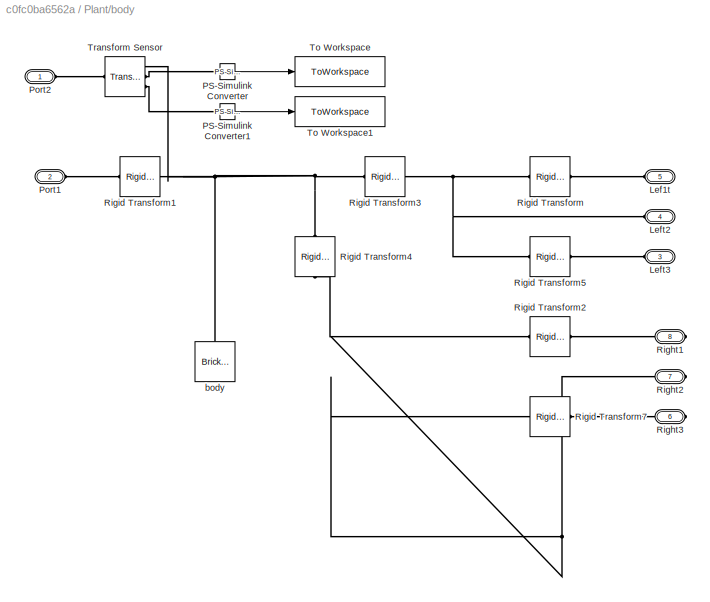
BLOCK [SubSystem] Plant/body
  PortSchema = {"entries":[{"content":{"sides":[{"content":{"connectorIds":["LConn1","LConn2"]},"type":"ConnectorPlacement.EquallySpacedRectSide","uuid":"e7e66a93-6b7d-4dc9-973b-fe8ce1656c0f"},{"content":{"connectorIds":[],"side":"RIGHT"},"type":"ConnectorPlacement.EquallySpacedRectSide","uuid":"22f36b2d-5346-4855-9695-cc86be97cc6f"},{"content":{"connectorIds":["LConn3","LConn4","LConn5"],"side":"TOP"},"type":"C...<+444ch>
  Ports = [0, 0, 0, 0, 0, 5, 3]
  RequestExecContextInheritance = off
BLOCK [PMIOPort] Plant/body/Lef1t
  Port = 5
  Side = Left
BLOCK [PMIOPort] Plant/body/Left2
  Port = 4
  Side = Left
BLOCK [PMIOPort] Plant/body/Left3
  Port = 3
  Side = Left
BLOCK [Reference] Plant/body/PS-Simulink Converter  REF=nesl_utility/PS-Simulink
Converter
  Ports = [0, 1, 0, 0, 0, 1]
  SourceBlock = nesl_utility/PS-Simulink\nConverter
  SourceProductBaseCode = SS
  SourceType = PS-Simulink\nConverter
BLOCK [Reference] Plant/body/PS-Simulink Converter1  REF=nesl_utility/PS-Simulink
Converter
  Ports = [0, 1, 0, 0, 0, 1]
  SourceBlock = nesl_utility/PS-Simulink\nConverter
  SourceProductBaseCode = SS
  SourceType = PS-Simulink\nConverter
BLOCK [PMIOPort] Plant/body/Port1
  Port = 2
  Side = Left
BLOCK [PMIOPort] Plant/body/Port2
  Side = Left
BLOCK [PMIOPort] Plant/body/Right1
  Port = 8
  Side = Right
BLOCK [PMIOPort] Plant/body/Right2
  Port = 7
  Side = Right
BLOCK [PMIOPort] Plant/body/Right3
  Port = 6
  Side = Right
BLOCK [Reference] Plant/body/Rigid Transform  REF=sm_lib/Frames and
Transforms/Rigid
Transform
  Ports = [0, 0, 0, 0, 0, 1, 1]
  SourceBlock = sm_lib/Frames and\nTransforms/Rigid\nTransform
  SourceProductBaseCode = MS
  SourceType = Rigid\nTransform
BLOCK [Reference] Plant/body/Rigid Transform1  REF=sm_lib/Frames and
Transforms/Rigid
Transform
  Ports = [0, 0, 0, 0, 0, 1, 1]
  SourceBlock = sm_lib/Frames and\nTransforms/Rigid\nTransform
  SourceProductBaseCode = MS
  SourceType = Rigid\nTransform
BLOCK [Reference] Plant/body/Rigid Transform2  REF=sm_lib/Frames and
Transforms/Rigid
Transform
  Ports = [0, 0, 0, 0, 0, 1, 1]
  SourceBlock = sm_lib/Frames and\nTransforms/Rigid\nTransform
  SourceProductBaseCode = MS
  SourceType = Rigid\nTransform
BLOCK [Reference] Plant/body/Rigid Transform3  REF=sm_lib/Frames and
Transforms/Rigid
Transform
  Ports = [0, 0, 0, 0, 0, 1, 1]
  SourceBlock = sm_lib/Frames and\nTransforms/Rigid\nTransform
  SourceProductBaseCode = MS
  SourceType = Rigid\nTransform
BLOCK [Reference] Plant/body/Rigid Transform4  REF=sm_lib/Frames and
Transforms/Rigid
Transform
  NameLocation = left
  Ports = [0, 0, 0, 0, 0, 1, 1]
  SourceBlock = sm_lib/Frames and\nTransforms/Rigid\nTransform
  SourceProductBaseCode = MS
  SourceType = Rigid\nTransform
BLOCK [Reference] Plant/body/Rigid Transform5  REF=sm_lib/Frames and
Transforms/Rigid
Transform
  Ports = [0, 0, 0, 0, 0, 1, 1]
  SourceBlock = sm_lib/Frames and\nTransforms/Rigid\nTransform
  SourceProductBaseCode = MS
  SourceType = Rigid\nTransform
BLOCK [Reference] Plant/body/Rigid Transform7  REF=sm_lib/Frames and
Transforms/Rigid
Transform
  Ports = [0, 0, 0, 0, 0, 1, 1]
  SourceBlock = sm_lib/Frames and\nTransforms/Rigid\nTransform
  SourceProductBaseCode = MS
  SourceType = Rigid\nTransform
BLOCK [ToWorkspace] Plant/body/To Workspace
  FixptAsFi = on
  MaxDataPoints = inf
  Ports = [1]
  SampleTime = -1
  SaveFormat = Timeseries
  VariableName = x_position
BLOCK [ToWorkspace] Plant/body/To Workspace1
  FixptAsFi = on
  MaxDataPoints = inf
  Ports = [1]
  SampleTime = -1
  SaveFormat = Timeseries
  VariableName = y_position
BLOCK [Reference] Plant/body/Transform Sensor  REF=sm_lib/Frames and
Transforms/Transform
Sensor
  Ports = [0, 0, 0, 0, 0, 1, 3]
  SourceBlock = sm_lib/Frames and\nTransforms/Transform\nSensor
  SourceProductBaseCode = MS
  SourceType = Transform\nSensor
BLOCK [Reference] Plant/body/body  REF=sm_lib/Body Elements/Brick Solid
  NameLocation = right
  Ports = [0, 0, 0, 0, 0, 0, 1]
  SourceBlock = sm_lib/Body Elements/Brick Solid
  SourceProductBaseCode = MS
  SourceType = Brick Solid
BLOCK [Sum] Sum
  Inputs = |+-
  Ports = [2, 1]
LINE Constant:1 -> MATLAB Function:1
LINE Controller/Demux:1 -> Controller/PID Controller:1
LINE Controller/Demux:2 -> Controller/PID Controller1:1
LINE Controller/Demux:3 -> Controller/PID Controller2:1
LINE Controller/Demux:4 -> Controller/PID Controller3:1
LINE Controller/Demux:5 -> Controller/PID Controller4:1
LINE Controller/Demux:6 -> Controller/PID Controller5:1
LINE Controller/In4:1 -> Controller/Demux:1
LINE Controller/Mux:1 -> Controller/Out4:1
LINE Controller/PID Controller1:1 -> Controller/Mux:2
LINE Controller/PID Controller2:1 -> Controller/Mux:3
LINE Controller/PID Controller3:1 -> Controller/Mux:4
LINE Controller/PID Controller4:1 -> Controller/Mux:5
LINE Controller/PID Controller5:1 -> Controller/Mux:6
LINE Controller/PID Controller:1 -> Controller/Mux:1
LINE Controller:1 -> Plant:1
LINE MATLAB Function:1 -> Sum:1
LINE Plant/Demux:1 -> Plant/Leftarms:1
LINE Plant/Demux:2 -> Plant/Leftarms:2
LINE Plant/Demux:3 -> Plant/Leftarms:3
LINE Plant/Demux:4 -> Plant/Rightarms:1
LINE Plant/Demux:5 -> Plant/Rightarms:2
LINE Plant/Demux:6 -> Plant/Rightarms:3
LINE Plant/Import:1 -> Plant/Demux:1
LINE Plant/Leftarms/In1:1 -> Plant/Leftarms/Leftblock1:1
LINE Plant/Leftarms/In3:1 -> Plant/Leftarms/Leftblock2:1
LINE Plant/Leftarms/In5:1 -> Plant/Leftarms/Leftblock3:1
LINE Plant/Leftarms/Leftblock1/Controller/Demux:1 -> Plant/Leftarms/Leftblock1/Controller/PID Controller:1
LINE Plant/Leftarms/Leftblock1/Controller/Demux:2 -> Plant/Leftarms/Leftblock1/Controller/PID Controller1:1
LINE Plant/Leftarms/Leftblock1/Controller/In4:1 -> Plant/Leftarms/Leftblock1/Controller/Demux:1
LINE Plant/Leftarms/Leftblock1/Controller/Mux:1 -> Plant/Leftarms/Leftblock1/Controller/Out4:1
LINE Plant/Leftarms/Leftblock1/Controller/PID Controller1:1 -> Plant/Leftarms/Leftblock1/Controller/Mux:2
LINE Plant/Leftarms/Leftblock1/Controller/PID Controller:1 -> Plant/Leftarms/Leftblock1/Controller/Mux:1
LINE Plant/Leftarms/Leftblock1/Controller:1 -> Plant/Leftarms/Leftblock1/MATLAB Function1:1
LINE Plant/Leftarms/Leftblock1/Demux:1 -> Plant/Leftarms/Leftblock1/L1_joint2:1
LINE Plant/Leftarms/Leftblock1/Demux:2 -> Plant/Leftarms/Leftblock1/L1_joint3:1
LINE Plant/Leftarms/Leftblock1/L1_joint1/In1:1 -> Plant/Leftarms/Leftblock1/L1_joint1/Simulink-PS Converter:1
LINE Plant/Leftarms/Leftblock1/L1_joint1/PS-Simulink Converter:1 -> Plant/Leftarms/Leftblock1/L1_joint1/Out1:1
LINE Plant/Leftarms/Leftblock1/L1_joint1:1 -> Plant/Leftarms/Leftblock1/Out1:1
LINE Plant/Leftarms/Leftblock1/L1_joint2/In1:1 -> Plant/Leftarms/Leftblock1/L1_joint2/Simulink-PS Converter:1
LINE Plant/Leftarms/Leftblock1/L1_joint2/PS-Simulink Converter:1 -> Plant/Leftarms/Leftblock1/L1_joint2/Out1:1
LINE Plant/Leftarms/Leftblock1/L1_joint2:1 -> Plant/Leftarms/Leftblock1/Mux:1
LINE Plant/Leftarms/Leftblock1/L1_joint3/In1:1 -> Plant/Leftarms/Leftblock1/L1_joint3/Simulink-PS Converter:1
LINE Plant/Leftarms/Leftblock1/L1_joint3/PS-Simulink Converter:1 -> Plant/Leftarms/Leftblock1/L1_joint3/Out1:1
LINE Plant/Leftarms/Leftblock1/L1_joint3:1 -> Plant/Leftarms/Leftblock1/Mux:2
LINE Plant/Leftarms/Leftblock1/MATLAB Function1:1 -> Plant/Leftarms/Leftblock1/Demux:1
LINE Plant/Leftarms/Leftblock1/MATLAB Function:1 -> Plant/Leftarms/Leftblock1/Sum:1
LINE Plant/Leftarms/Leftblock1/Mux:1 -> Plant/Leftarms/Leftblock1/Sum:2
LINE Plant/Leftarms/Leftblock1/Sum:1 -> Plant/Leftarms/Leftblock1/Controller:1
NET Plant/Leftarms/Leftblock1/target_r:1 -> Plant/Leftarms/Leftblock1/L1_joint1:1, Plant/Leftarms/Leftblock1/MATLAB Function:1
LINE Plant/Leftarms/Leftblock1:1 -> Plant/Leftarms/Out1:1
LINE Plant/Leftarms/Leftblock2/Controller/Demux:1 -> Plant/Leftarms/Leftblock2/Controller/PID Controller:1
LINE Plant/Leftarms/Leftblock2/Controller/Demux:2 -> Plant/Leftarms/Leftblock2/Controller/PID Controller1:1
LINE Plant/Leftarms/Leftblock2/Controller/In4:1 -> Plant/Leftarms/Leftblock2/Controller/Demux:1
LINE Plant/Leftarms/Leftblock2/Controller/Mux:1 -> Plant/Leftarms/Leftblock2/Controller/Out4:1
LINE Plant/Leftarms/Leftblock2/Controller/PID Controller1:1 -> Plant/Leftarms/Leftblock2/Controller/Mux:2
LINE Plant/Leftarms/Leftblock2/Controller/PID Controller:1 -> Plant/Leftarms/Leftblock2/Controller/Mux:1
LINE Plant/Leftarms/Leftblock2/Controller:1 -> Plant/Leftarms/Leftblock2/MATLAB Function1:1
LINE Plant/Leftarms/Leftblock2/Demux:1 -> Plant/Leftarms/Leftblock2/L2_joint2:1
LINE Plant/Leftarms/Leftblock2/Demux:2 -> Plant/Leftarms/Leftblock2/L2_joint3:1
LINE Plant/Leftarms/Leftblock2/L2_joint1/In1:1 -> Plant/Leftarms/Leftblock2/L2_joint1/Simulink-PS Converter:1
LINE Plant/Leftarms/Leftblock2/L2_joint1/PS-Simulink Converter:1 -> Plant/Leftarms/Leftblock2/L2_joint1/Out1:1
LINE Plant/Leftarms/Leftblock2/L2_joint1:1 -> Plant/Leftarms/Leftblock2/Out1:1
LINE Plant/Leftarms/Leftblock2/L2_joint2/In1:1 -> Plant/Leftarms/Leftblock2/L2_joint2/Simulink-PS Converter:1
LINE Plant/Leftarms/Leftblock2/L2_joint2/PS-Simulink Converter:1 -> Plant/Leftarms/Leftblock2/L2_joint2/Out1:1
LINE Plant/Leftarms/Leftblock2/L2_joint2:1 -> Plant/Leftarms/Leftblock2/Mux:1
LINE Plant/Leftarms/Leftblock2/L2_joint3/In1:1 -> Plant/Leftarms/Leftblock2/L2_joint3/Simulink-PS Converter:1
LINE Plant/Leftarms/Leftblock2/L2_joint3/PS-Simulink Converter:1 -> Plant/Leftarms/Leftblock2/L2_joint3/Out1:1
LINE Plant/Leftarms/Leftblock2/L2_joint3:1 -> Plant/Leftarms/Leftblock2/Mux:2
LINE Plant/Leftarms/Leftblock2/MATLAB Function1:1 -> Plant/Leftarms/Leftblock2/Demux:1
LINE Plant/Leftarms/Leftblock2/MATLAB Function:1 -> Plant/Leftarms/Leftblock2/Sum:1
LINE Plant/Leftarms/Leftblock2/Mux:1 -> Plant/Leftarms/Leftblock2/Sum:2
LINE Plant/Leftarms/Leftblock2/Sum:1 -> Plant/Leftarms/Leftblock2/Controller:1
NET Plant/Leftarms/Leftblock2/target_r:1 -> Plant/Leftarms/Leftblock2/L2_joint1:1, Plant/Leftarms/Leftblock2/MATLAB Function:1
LINE Plant/Leftarms/Leftblock2:1 -> Plant/Leftarms/Out3:1
LINE Plant/Leftarms/Leftblock3/Controller/Demux:1 -> Plant/Leftarms/Leftblock3/Controller/PID Controller:1
LINE Plant/Leftarms/Leftblock3/Controller/Demux:2 -> Plant/Leftarms/Leftblock3/Controller/PID Controller1:1
LINE Plant/Leftarms/Leftblock3/Controller/In4:1 -> Plant/Leftarms/Leftblock3/Controller/Demux:1
LINE Plant/Leftarms/Leftblock3/Controller/Mux:1 -> Plant/Leftarms/Leftblock3/Controller/Out4:1
LINE Plant/Leftarms/Leftblock3/Controller/PID Controller1:1 -> Plant/Leftarms/Leftblock3/Controller/Mux:2
LINE Plant/Leftarms/Leftblock3/Controller/PID Controller:1 -> Plant/Leftarms/Leftblock3/Controller/Mux:1
LINE Plant/Leftarms/Leftblock3/Controller:1 -> Plant/Leftarms/Leftblock3/MATLAB Function1:1
LINE Plant/Leftarms/Leftblock3/Demux:1 -> Plant/Leftarms/Leftblock3/L3_joint2:1
LINE Plant/Leftarms/Leftblock3/Demux:2 -> Plant/Leftarms/Leftblock3/L3_joint3:1
LINE Plant/Leftarms/Leftblock3/L3_joint1/In1:1 -> Plant/Leftarms/Leftblock3/L3_joint1/Simulink-PS Converter:1
LINE Plant/Leftarms/Leftblock3/L3_joint1/PS-Simulink Converter:1 -> Plant/Leftarms/Leftblock3/L3_joint1/Out1:1
LINE Plant/Leftarms/Leftblock3/L3_joint1:1 -> Plant/Leftarms/Leftblock3/Out1:1
LINE Plant/Leftarms/Leftblock3/L3_joint2/In1:1 -> Plant/Leftarms/Leftblock3/L3_joint2/Simulink-PS Converter:1
LINE Plant/Leftarms/Leftblock3/L3_joint2/PS-Simulink Converter:1 -> Plant/Leftarms/Leftblock3/L3_joint2/Out1:1
LINE Plant/Leftarms/Leftblock3/L3_joint2:1 -> Plant/Leftarms/Leftblock3/Mux:1
LINE Plant/Leftarms/Leftblock3/L3_joint3/In1:1 -> Plant/Leftarms/Leftblock3/L3_joint3/Simulink-PS Converter:1
LINE Plant/Leftarms/Leftblock3/L3_joint3/PS-Simulink Converter:1 -> Plant/Leftarms/Leftblock3/L3_joint3/Out1:1
LINE Plant/Leftarms/Leftblock3/L3_joint3:1 -> Plant/Leftarms/Leftblock3/Mux:2
LINE Plant/Leftarms/Leftblock3/MATLAB Function1:1 -> Plant/Leftarms/Leftblock3/Demux:1
LINE Plant/Leftarms/Leftblock3/MATLAB Function:1 -> Plant/Leftarms/Leftblock3/Sum:1
LINE Plant/Leftarms/Leftblock3/Mux:1 -> Plant/Leftarms/Leftblock3/Sum:2
LINE Plant/Leftarms/Leftblock3/Sum:1 -> Plant/Leftarms/Leftblock3/Controller:1
NET Plant/Leftarms/Leftblock3/target_r:1 -> Plant/Leftarms/Leftblock3/L3_joint1:1, Plant/Leftarms/Leftblock3/MATLAB Function:1
LINE Plant/Leftarms/Leftblock3:1 -> Plant/Leftarms/Out5:1
LINE Plant/Leftarms:1 -> Plant/Mux:1
LINE Plant/Leftarms:2 -> Plant/Mux:2
LINE Plant/Leftarms:3 -> Plant/Mux:3
LINE Plant/Mux:1 -> Plant/Export:1
LINE Plant/Rightarms/In1:1 -> Plant/Rightarms/Rightblock1:1
LINE Plant/Rightarms/In3:1 -> Plant/Rightarms/Rightblock2:1
LINE Plant/Rightarms/In5:1 -> Plant/Rightarms/Rightblock3:1
LINE Plant/Rightarms/Rightblock1/Controller/Demux:1 -> Plant/Rightarms/Rightblock1/Controller/PID Controller:1
LINE Plant/Rightarms/Rightblock1/Controller/Demux:2 -> Plant/Rightarms/Rightblock1/Controller/PID Controller1:1
LINE Plant/Rightarms/Rightblock1/Controller/In4:1 -> Plant/Rightarms/Rightblock1/Controller/Demux:1
LINE Plant/Rightarms/Rightblock1/Controller/Mux:1 -> Plant/Rightarms/Rightblock1/Controller/Out4:1
LINE Plant/Rightarms/Rightblock1/Controller/PID Controller1:1 -> Plant/Rightarms/Rightblock1/Controller/Mux:2
LINE Plant/Rightarms/Rightblock1/Controller/PID Controller:1 -> Plant/Rightarms/Rightblock1/Controller/Mux:1
LINE Plant/Rightarms/Rightblock1/Controller:1 -> Plant/Rightarms/Rightblock1/MATLAB Function1:1
LINE Plant/Rightarms/Rightblock1/Demux:1 -> Plant/Rightarms/Rightblock1/L2_joint2:1
LINE Plant/Rightarms/Rightblock1/Demux:2 -> Plant/Rightarms/Rightblock1/L2_joint3:1
LINE Plant/Rightarms/Rightblock1/L2_joint1/In1:1 -> Plant/Rightarms/Rightblock1/L2_joint1/Simulink-PS Converter:1
LINE Plant/Rightarms/Rightblock1/L2_joint1/PS-Simulink Converter:1 -> Plant/Rightarms/Rightblock1/L2_joint1/Out1:1
LINE Plant/Rightarms/Rightblock1/L2_joint1:1 -> Plant/Rightarms/Rightblock1/Out1:1
LINE Plant/Rightarms/Rightblock1/L2_joint2/In1:1 -> Plant/Rightarms/Rightblock1/L2_joint2/Simulink-PS Converter:1
LINE Plant/Rightarms/Rightblock1/L2_joint2/PS-Simulink Converter:1 -> Plant/Rightarms/Rightblock1/L2_joint2/Out1:1
LINE Plant/Rightarms/Rightblock1/L2_joint2:1 -> Plant/Rightarms/Rightblock1/Mux:1
LINE Plant/Rightarms/Rightblock1/L2_joint3/In1:1 -> Plant/Rightarms/Rightblock1/L2_joint3/Simulink-PS Converter:1
LINE Plant/Rightarms/Rightblock1/L2_joint3/PS-Simulink Converter:1 -> Plant/Rightarms/Rightblock1/L2_joint3/Out1:1
LINE Plant/Rightarms/Rightblock1/L2_joint3:1 -> Plant/Rightarms/Rightblock1/Mux:2
LINE Plant/Rightarms/Rightblock1/MATLAB Function1:1 -> Plant/Rightarms/Rightblock1/Demux:1
LINE Plant/Rightarms/Rightblock1/MATLAB Function:1 -> Plant/Rightarms/Rightblock1/Sum:1
LINE Plant/Rightarms/Rightblock1/Mux:1 -> Plant/Rightarms/Rightblock1/Sum:2
LINE Plant/Rightarms/Rightblock1/Sum:1 -> Plant/Rightarms/Rightblock1/Controller:1
NET Plant/Rightarms/Rightblock1/target_r:1 -> Plant/Rightarms/Rightblock1/L2_joint1:1, Plant/Rightarms/Rightblock1/MATLAB Function:1
LINE Plant/Rightarms/Rightblock1:1 -> Plant/Rightarms/Out1:1
LINE Plant/Rightarms/Rightblock2/Controller/Demux:1 -> Plant/Rightarms/Rightblock2/Controller/PID Controller:1
LINE Plant/Rightarms/Rightblock2/Controller/Demux:2 -> Plant/Rightarms/Rightblock2/Controller/PID Controller1:1
LINE Plant/Rightarms/Rightblock2/Controller/In4:1 -> Plant/Rightarms/Rightblock2/Controller/Demux:1
LINE Plant/Rightarms/Rightblock2/Controller/Mux:1 -> Plant/Rightarms/Rightblock2/Controller/Out4:1
LINE Plant/Rightarms/Rightblock2/Controller/PID Controller1:1 -> Plant/Rightarms/Rightblock2/Controller/Mux:2
LINE Plant/Rightarms/Rightblock2/Controller/PID Controller:1 -> Plant/Rightarms/Rightblock2/Controller/Mux:1
LINE Plant/Rightarms/Rightblock2/Controller:1 -> Plant/Rightarms/Rightblock2/MATLAB Function1:1
LINE Plant/Rightarms/Rightblock2/Demux:1 -> Plant/Rightarms/Rightblock2/L2_joint2:1
LINE Plant/Rightarms/Rightblock2/Demux:2 -> Plant/Rightarms/Rightblock2/L2_joint3:1
LINE Plant/Rightarms/Rightblock2/L2_joint1/In1:1 -> Plant/Rightarms/Rightblock2/L2_joint1/Simulink-PS Converter:1
LINE Plant/Rightarms/Rightblock2/L2_joint1/PS-Simulink Converter:1 -> Plant/Rightarms/Rightblock2/L2_joint1/Out1:1
LINE Plant/Rightarms/Rightblock2/L2_joint1:1 -> Plant/Rightarms/Rightblock2/Out1:1
LINE Plant/Rightarms/Rightblock2/L2_joint2/In1:1 -> Plant/Rightarms/Rightblock2/L2_joint2/Simulink-PS Converter:1
LINE Plant/Rightarms/Rightblock2/L2_joint2/PS-Simulink Converter:1 -> Plant/Rightarms/Rightblock2/L2_joint2/Out1:1
LINE Plant/Rightarms/Rightblock2/L2_joint2:1 -> Plant/Rightarms/Rightblock2/Mux:1
LINE Plant/Rightarms/Rightblock2/L2_joint3/In1:1 -> Plant/Rightarms/Rightblock2/L2_joint3/Simulink-PS Converter:1
LINE Plant/Rightarms/Rightblock2/L2_joint3/PS-Simulink Converter:1 -> Plant/Rightarms/Rightblock2/L2_joint3/Out1:1
LINE Plant/Rightarms/Rightblock2/L2_joint3:1 -> Plant/Rightarms/Rightblock2/Mux:2
LINE Plant/Rightarms/Rightblock2/MATLAB Function1:1 -> Plant/Rightarms/Rightblock2/Demux:1
LINE Plant/Rightarms/Rightblock2/MATLAB Function:1 -> Plant/Rightarms/Rightblock2/Sum:1
LINE Plant/Rightarms/Rightblock2/Mux:1 -> Plant/Rightarms/Rightblock2/Sum:2
LINE Plant/Rightarms/Rightblock2/Sum:1 -> Plant/Rightarms/Rightblock2/Controller:1
NET Plant/Rightarms/Rightblock2/target_r:1 -> Plant/Rightarms/Rightblock2/L2_joint1:1, Plant/Rightarms/Rightblock2/MATLAB Function:1
LINE Plant/Rightarms/Rightblock2:1 -> Plant/Rightarms/Out3:1
LINE Plant/Rightarms/Rightblock3/Controller/Demux:1 -> Plant/Rightarms/Rightblock3/Controller/PID Controller:1
LINE Plant/Rightarms/Rightblock3/Controller/Demux:2 -> Plant/Rightarms/Rightblock3/Controller/PID Controller1:1
LINE Plant/Rightarms/Rightblock3/Controller/In4:1 -> Plant/Rightarms/Rightblock3/Controller/Demux:1
LINE Plant/Rightarms/Rightblock3/Controller/Mux:1 -> Plant/Rightarms/Rightblock3/Controller/Out4:1
LINE Plant/Rightarms/Rightblock3/Controller/PID Controller1:1 -> Plant/Rightarms/Rightblock3/Controller/Mux:2
LINE Plant/Rightarms/Rightblock3/Controller/PID Controller:1 -> Plant/Rightarms/Rightblock3/Controller/Mux:1
LINE Plant/Rightarms/Rightblock3/Controller:1 -> Plant/Rightarms/Rightblock3/MATLAB Function1:1
LINE Plant/Rightarms/Rightblock3/Demux:1 -> Plant/Rightarms/Rightblock3/L2_joint2:1
LINE Plant/Rightarms/Rightblock3/Demux:2 -> Plant/Rightarms/Rightblock3/L2_joint3:1
LINE Plant/Rightarms/Rightblock3/L2_joint1/In1:1 -> Plant/Rightarms/Rightblock3/L2_joint1/Simulink-PS Converter:1
LINE Plant/Rightarms/Rightblock3/L2_joint1/PS-Simulink Converter:1 -> Plant/Rightarms/Rightblock3/L2_joint1/Out1:1
LINE Plant/Rightarms/Rightblock3/L2_joint1:1 -> Plant/Rightarms/Rightblock3/Out1:1
LINE Plant/Rightarms/Rightblock3/L2_joint2/In1:1 -> Plant/Rightarms/Rightblock3/L2_joint2/Simulink-PS Converter:1
LINE Plant/Rightarms/Rightblock3/L2_joint2/PS-Simulink Converter:1 -> Plant/Rightarms/Rightblock3/L2_joint2/Out1:1
LINE Plant/Rightarms/Rightblock3/L2_joint2:1 -> Plant/Rightarms/Rightblock3/Mux:1
LINE Plant/Rightarms/Rightblock3/L2_joint3/In1:1 -> Plant/Rightarms/Rightblock3/L2_joint3/Simulink-PS Converter:1
LINE Plant/Rightarms/Rightblock3/L2_joint3/PS-Simulink Converter:1 -> Plant/Rightarms/Rightblock3/L2_joint3/Out1:1
LINE Plant/Rightarms/Rightblock3/L2_joint3:1 -> Plant/Rightarms/Rightblock3/Mux:2
LINE Plant/Rightarms/Rightblock3/MATLAB Function1:1 -> Plant/Rightarms/Rightblock3/Demux:1
LINE Plant/Rightarms/Rightblock3/MATLAB Function:1 -> Plant/Rightarms/Rightblock3/Sum:1
LINE Plant/Rightarms/Rightblock3/Mux:1 -> Plant/Rightarms/Rightblock3/Sum:2
LINE Plant/Rightarms/Rightblock3/Sum:1 -> Plant/Rightarms/Rightblock3/Controller:1
NET Plant/Rightarms/Rightblock3/target_r:1 -> Plant/Rightarms/Rightblock3/L2_joint1:1, Plant/Rightarms/Rightblock3/MATLAB Function:1
LINE Plant/Rightarms/Rightblock3:1 -> Plant/Rightarms/Out5:1
LINE Plant/Rightarms:1 -> Plant/Mux:4
LINE Plant/Rightarms:2 -> Plant/Mux:5
LINE Plant/Rightarms:3 -> Plant/Mux:6
LINE Plant/body/PS-Simulink Converter1:1 -> Plant/body/To Workspace1:1
LINE Plant/body/PS-Simulink Converter:1 -> Plant/body/To Workspace:1
LINE Plant:1 -> Sum:2
LINE Sum:1 -> Controller:1
PLINE Plant/AlignToRamp:LConn1 -- Plant/Brick Solid2:RConn1
PNET net1: Plant/AlignToRamp:RConn1 -- Plant/Mechanism Configuration:RConn1 -- Plant/Solver Configuration:RConn1 -- Plant/World Frame:RConn1 -- Plant/body:LConn1 -- Plant/body:LConn2
PNET net2: Plant/Brick Solid2:LConn1 -- Plant/Spatial Contact Force1:LConn1 -- Plant/Spatial Contact Force2:LConn1 -- Plant/Spatial Contact Force3:LConn1 -- Plant/Spatial Contact Force4:LConn1 -- Plant/Spatial Contact Force5:LConn1 -- Plant/Spatial Contact Force:LConn1
PLINE Plant/Conn2:RConn1 -- Plant/Leftarms:RConn2
PLINE Plant/Conn3:RConn1 -- Plant/Leftarms:RConn3
PNET net3: Plant/Conn4:RConn1 -- Plant/Rightarms:RConn2 -- Plant/Spatial Contact Force2:RConn1
PNET net4: Plant/Conn6:RConn1 -- Plant/Rightarms:RConn1 -- Plant/Spatial Contact Force1:RConn1
PNET net5: Plant/Conn7:RConn1 -- Plant/Rightarms:RConn3 -- Plant/Spatial Contact Force:RConn1
PNET net6: Plant/LCon1:RConn1 -- Plant/Leftarms:RConn1 -- Plant/Spatial Contact Force3:RConn1 -- Plant/Spatial Contact Force4:RConn1 -- Plant/Spatial Contact Force5:RConn1
PLINE Plant/Leftarms/LCon1:RConn1 -- Plant/Leftarms/Leftblock1:RConn1
PLINE Plant/Leftarms/LCon2:RConn1 -- Plant/Leftarms/Leftblock2:RConn1
PLINE Plant/Leftarms/LCon3:RConn1 -- Plant/Leftarms/Leftblock3:RConn1
PLINE Plant/Leftarms/Left1:RConn1 -- Plant/Leftarms/Leftblock1:LConn1
PLINE Plant/Leftarms/Left2:RConn1 -- Plant/Leftarms/Leftblock2:LConn1
PLINE Plant/Leftarms/Left3:RConn1 -- Plant/Leftarms/Leftblock3:LConn1
PLINE Plant/Leftarms/Leftblock1/L1_arm1/Conn1:RConn1 -- Plant/Leftarms/Leftblock1/L1_arm1/Rigid Transform1:LConn1
PLINE Plant/Leftarms/Leftblock1/L1_arm1/Conn2:RConn1 -- Plant/Leftarms/Leftblock1/L1_arm1/Rigid Transform:RConn1
PNET net7: Plant/Leftarms/Leftblock1/L1_arm1/Rigid Transform1:RConn1 -- Plant/Leftarms/Leftblock1/L1_arm1/Rigid Transform:LConn1 -- Plant/Leftarms/Leftblock1/L1_arm1/arm1:RConn1
PLINE Plant/Leftarms/Leftblock1/L1_arm1:LConn1 -- Plant/Leftarms/Leftblock1/L1_joint1:RConn1
PLINE Plant/Leftarms/Leftblock1/L1_arm1:RConn1 -- Plant/Leftarms/Leftblock1/L1_joint2:LConn1
PLINE Plant/Leftarms/Leftblock1/L1_arm2/Conn1:RConn1 -- Plant/Leftarms/Leftblock1/L1_arm2/Rigid Transform1:LConn1
PLINE Plant/Leftarms/Leftblock1/L1_arm2/Conn2:RConn1 -- Plant/Leftarms/Leftblock1/L1_arm2/Rigid Transform:RConn1
PNET net8: Plant/Leftarms/Leftblock1/L1_arm2/Rigid Transform1:RConn1 -- Plant/Leftarms/Leftblock1/L1_arm2/Rigid Transform:LConn1 -- Plant/Leftarms/Leftblock1/L1_arm2/arm2:RConn1
PLINE Plant/Leftarms/Leftblock1/L1_arm2:LConn1 -- Plant/Leftarms/Leftblock1/L1_joint2:RConn1
PLINE Plant/Leftarms/Leftblock1/L1_arm2:RConn1 -- Plant/Leftarms/Leftblock1/L1_joint3:LConn1
PLINE Plant/Leftarms/Leftblock1/L1_arm3/Conn1:RConn1 -- Plant/Leftarms/Leftblock1/L1_arm3/Rigid Transform1:LConn1
PLINE Plant/Leftarms/Leftblock1/L1_arm3/LCon2:RConn1 -- Plant/Leftarms/Leftblock1/L1_arm3/Spherical Solid2:LConn1
PNET net9: Plant/Leftarms/Leftblock1/L1_arm3/Rigid Transform1:RConn1 -- Plant/Leftarms/Leftblock1/L1_arm3/Rigid Transform:LConn1 -- Plant/Leftarms/Leftblock1/L1_arm3/arm3:RConn1
PLINE Plant/Leftarms/Leftblock1/L1_arm3/Rigid Transform:RConn1 -- Plant/Leftarms/Leftblock1/L1_arm3/Spherical Solid2:RConn1
PLINE Plant/Leftarms/Leftblock1/L1_arm3:LConn1 -- Plant/Leftarms/Leftblock1/L1_joint3:RConn1
PLINE Plant/Leftarms/Leftblock1/L1_arm3:RConn1 -- Plant/Leftarms/Leftblock1/LCon2:RConn1
PLINE Plant/Leftarms/Leftblock1/L1_joint1/Conn2:RConn1 -- Plant/Leftarms/Leftblock1/L1_joint1/Rigid Transform:RConn1
PLINE Plant/Leftarms/Leftblock1/L1_joint1/PS-Simulink Converter:LConn1 -- Plant/Leftarms/Leftblock1/L1_joint1/Revolute Joint1:RConn2
PLINE Plant/Leftarms/Leftblock1/L1_joint1/Revolute Joint1:LConn1 -- Plant/Leftarms/Leftblock1/L1_joint1/Rigid Transform1:RConn1
PLINE Plant/Leftarms/Leftblock1/L1_joint1/Revolute Joint1:LConn2 -- Plant/Leftarms/Leftblock1/L1_joint1/Simulink-PS Converter:RConn1
PNET net10: Plant/Leftarms/Leftblock1/L1_joint1/Revolute Joint1:RConn1 -- Plant/Leftarms/Leftblock1/L1_joint1/Rigid Transform:LConn1 -- Plant/Leftarms/Leftblock1/L1_joint1/joint_shaft:RConn1
PLINE Plant/Leftarms/Leftblock1/L1_joint1/Right2:RConn1 -- Plant/Leftarms/Leftblock1/L1_joint1/Rigid Transform1:LConn1
PLINE Plant/Leftarms/Leftblock1/L1_joint1:LConn1 -- Plant/Leftarms/Leftblock1/Left1:RConn1
PLINE Plant/Leftarms/Leftblock1/L1_joint2/Conn1:RConn1 -- Plant/Leftarms/Leftblock1/L1_joint2/Rigid Transform1:LConn1
PLINE Plant/Leftarms/Leftblock1/L1_joint2/Conn2:RConn1 -- Plant/Leftarms/Leftblock1/L1_joint2/Rigid Transform2:RConn1
PLINE Plant/Leftarms/Leftblock1/L1_joint2/PS-Simulink Converter:LConn1 -- Plant/Leftarms/Leftblock1/L1_joint2/Revolute Joint:RConn2
PLINE Plant/Leftarms/Leftblock1/L1_joint2/Revolute Joint:LConn1 -- Plant/Leftarms/Leftblock1/L1_joint2/Rigid Transform1:RConn1
PLINE Plant/Leftarms/Leftblock1/L1_joint2/Revolute Joint:LConn2 -- Plant/Leftarms/Leftblock1/L1_joint2/Simulink-PS Converter:RConn1
PNET net11: Plant/Leftarms/Leftblock1/L1_joint2/Revolute Joint:RConn1 -- Plant/Leftarms/Leftblock1/L1_joint2/Rigid Transform:LConn1 -- Plant/Leftarms/Leftblock1/L1_joint2/joint_shaft:RConn1
PLINE Plant/Leftarms/Leftblock1/L1_joint2/Rigid Transform2:LConn1 -- Plant/Leftarms/Leftblock1/L1_joint2/Rigid Transform:RConn1
PLINE Plant/Leftarms/Leftblock1/L1_joint3/Conn1:RConn1 -- Plant/Leftarms/Leftblock1/L1_joint3/Rigid Transform1:LConn1
PLINE Plant/Leftarms/Leftblock1/L1_joint3/LCon2:RConn1 -- Plant/Leftarms/Leftblock1/L1_joint3/Rigid Transform2:RConn1
PLINE Plant/Leftarms/Leftblock1/L1_joint3/PS-Simulink Converter:LConn1 -- Plant/Leftarms/Leftblock1/L1_joint3/Revolute Joint:RConn2
PLINE Plant/Leftarms/Leftblock1/L1_joint3/Revolute Joint:LConn1 -- Plant/Leftarms/Leftblock1/L1_joint3/Rigid Transform1:RConn1
PLINE Plant/Leftarms/Leftblock1/L1_joint3/Revolute Joint:LConn2 -- Plant/Leftarms/Leftblock1/L1_joint3/Simulink-PS Converter:RConn1
PNET net12: Plant/Leftarms/Leftblock1/L1_joint3/Revolute Joint:RConn1 -- Plant/Leftarms/Leftblock1/L1_joint3/Rigid Transform:LConn1 -- Plant/Leftarms/Leftblock1/L1_joint3/joint_shaft:RConn1
PLINE Plant/Leftarms/Leftblock1/L1_joint3/Rigid Transform2:LConn1 -- Plant/Leftarms/Leftblock1/L1_joint3/Rigid Transform:RConn1
PLINE Plant/Leftarms/Leftblock2/L2_arm1/Conn1:RConn1 -- Plant/Leftarms/Leftblock2/L2_arm1/Rigid Transform1:LConn1
PLINE Plant/Leftarms/Leftblock2/L2_arm1/Conn2:RConn1 -- Plant/Leftarms/Leftblock2/L2_arm1/Rigid Transform:RConn1
PNET net13: Plant/Leftarms/Leftblock2/L2_arm1/Rigid Transform1:RConn1 -- Plant/Leftarms/Leftblock2/L2_arm1/Rigid Transform:LConn1 -- Plant/Leftarms/Leftblock2/L2_arm1/arm1:RConn1
PLINE Plant/Leftarms/Leftblock2/L2_arm1:LConn1 -- Plant/Leftarms/Leftblock2/L2_joint1:RConn1
PLINE Plant/Leftarms/Leftblock2/L2_arm1:RConn1 -- Plant/Leftarms/Leftblock2/L2_joint2:LConn1
PLINE Plant/Leftarms/Leftblock2/L2_arm2/Conn1:RConn1 -- Plant/Leftarms/Leftblock2/L2_arm2/Rigid Transform1:LConn1
PLINE Plant/Leftarms/Leftblock2/L2_arm2/Conn2:RConn1 -- Plant/Leftarms/Leftblock2/L2_arm2/Rigid Transform:RConn1
PNET net14: Plant/Leftarms/Leftblock2/L2_arm2/Rigid Transform1:RConn1 -- Plant/Leftarms/Leftblock2/L2_arm2/Rigid Transform:LConn1 -- Plant/Leftarms/Leftblock2/L2_arm2/arm2:RConn1
PLINE Plant/Leftarms/Leftblock2/L2_arm2:LConn1 -- Plant/Leftarms/Leftblock2/L2_joint2:RConn1
PLINE Plant/Leftarms/Leftblock2/L2_arm2:RConn1 -- Plant/Leftarms/Leftblock2/L2_joint3:LConn1
PLINE Plant/Leftarms/Leftblock2/L2_arm3/Conn1:RConn1 -- Plant/Leftarms/Leftblock2/L2_arm3/Rigid Transform1:LConn1
PLINE Plant/Leftarms/Leftblock2/L2_arm3/LCon2:RConn1 -- Plant/Leftarms/Leftblock2/L2_arm3/Spherical Solid2:LConn1
PNET net15: Plant/Leftarms/Leftblock2/L2_arm3/Rigid Transform1:RConn1 -- Plant/Leftarms/Leftblock2/L2_arm3/Rigid Transform:LConn1 -- Plant/Leftarms/Leftblock2/L2_arm3/arm3:RConn1
PLINE Plant/Leftarms/Leftblock2/L2_arm3/Rigid Transform:RConn1 -- Plant/Leftarms/Leftblock2/L2_arm3/Spherical Solid2:RConn1
PLINE Plant/Leftarms/Leftblock2/L2_arm3:LConn1 -- Plant/Leftarms/Leftblock2/L2_joint3:RConn1
PLINE Plant/Leftarms/Leftblock2/L2_arm3:RConn1 -- Plant/Leftarms/Leftblock2/LCon2:RConn1
PLINE Plant/Leftarms/Leftblock2/L2_joint1/Conn2:RConn1 -- Plant/Leftarms/Leftblock2/L2_joint1/Rigid Transform:RConn1
PLINE Plant/Leftarms/Leftblock2/L2_joint1/PS-Simulink Converter:LConn1 -- Plant/Leftarms/Leftblock2/L2_joint1/Revolute Joint1:RConn2
PLINE Plant/Leftarms/Leftblock2/L2_joint1/Revolute Joint1:LConn1 -- Plant/Leftarms/Leftblock2/L2_joint1/Rigid Transform1:RConn1
PLINE Plant/Leftarms/Leftblock2/L2_joint1/Revolute Joint1:LConn2 -- Plant/Leftarms/Leftblock2/L2_joint1/Simulink-PS Converter:RConn1
PNET net16: Plant/Leftarms/Leftblock2/L2_joint1/Revolute Joint1:RConn1 -- Plant/Leftarms/Leftblock2/L2_joint1/Rigid Transform:LConn1 -- Plant/Leftarms/Leftblock2/L2_joint1/joint_shaft:RConn1
PLINE Plant/Leftarms/Leftblock2/L2_joint1/Right2:RConn1 -- Plant/Leftarms/Leftblock2/L2_joint1/Rigid Transform1:LConn1
PLINE Plant/Leftarms/Leftblock2/L2_joint1:LConn1 -- Plant/Leftarms/Leftblock2/Left2:RConn1
PLINE Plant/Leftarms/Leftblock2/L2_joint2/Conn1:RConn1 -- Plant/Leftarms/Leftblock2/L2_joint2/Rigid Transform1:LConn1
PLINE Plant/Leftarms/Leftblock2/L2_joint2/Conn2:RConn1 -- Plant/Leftarms/Leftblock2/L2_joint2/Rigid Transform2:RConn1
PLINE Plant/Leftarms/Leftblock2/L2_joint2/PS-Simulink Converter:LConn1 -- Plant/Leftarms/Leftblock2/L2_joint2/Revolute Joint:RConn2
PLINE Plant/Leftarms/Leftblock2/L2_joint2/Revolute Joint:LConn1 -- Plant/Leftarms/Leftblock2/L2_joint2/Rigid Transform1:RConn1
PLINE Plant/Leftarms/Leftblock2/L2_joint2/Revolute Joint:LConn2 -- Plant/Leftarms/Leftblock2/L2_joint2/Simulink-PS Converter:RConn1
PNET net17: Plant/Leftarms/Leftblock2/L2_joint2/Revolute Joint:RConn1 -- Plant/Leftarms/Leftblock2/L2_joint2/Rigid Transform:LConn1 -- Plant/Leftarms/Leftblock2/L2_joint2/joint_shaft:RConn1
PLINE Plant/Leftarms/Leftblock2/L2_joint2/Rigid Transform2:LConn1 -- Plant/Leftarms/Leftblock2/L2_joint2/Rigid Transform:RConn1
PLINE Plant/Leftarms/Leftblock2/L2_joint3/Conn1:RConn1 -- Plant/Leftarms/Leftblock2/L2_joint3/Rigid Transform1:LConn1
PLINE Plant/Leftarms/Leftblock2/L2_joint3/LCon2:RConn1 -- Plant/Leftarms/Leftblock2/L2_joint3/Rigid Transform2:RConn1
PLINE Plant/Leftarms/Leftblock2/L2_joint3/PS-Simulink Converter:LConn1 -- Plant/Leftarms/Leftblock2/L2_joint3/Revolute Joint:RConn2
PLINE Plant/Leftarms/Leftblock2/L2_joint3/Revolute Joint:LConn1 -- Plant/Leftarms/Leftblock2/L2_joint3/Rigid Transform1:RConn1
PLINE Plant/Leftarms/Leftblock2/L2_joint3/Revolute Joint:LConn2 -- Plant/Leftarms/Leftblock2/L2_joint3/Simulink-PS Converter:RConn1
PNET net18: Plant/Leftarms/Leftblock2/L2_joint3/Revolute Joint:RConn1 -- Plant/Leftarms/Leftblock2/L2_joint3/Rigid Transform:LConn1 -- Plant/Leftarms/Leftblock2/L2_joint3/joint_shaft:RConn1
PLINE Plant/Leftarms/Leftblock2/L2_joint3/Rigid Transform2:LConn1 -- Plant/Leftarms/Leftblock2/L2_joint3/Rigid Transform:RConn1
PLINE Plant/Leftarms/Leftblock3/L2_arm1/Conn1:RConn1 -- Plant/Leftarms/Leftblock3/L2_arm1/Rigid Transform1:LConn1
PLINE Plant/Leftarms/Leftblock3/L2_arm1/Conn2:RConn1 -- Plant/Leftarms/Leftblock3/L2_arm1/Rigid Transform:RConn1
PNET net19: Plant/Leftarms/Leftblock3/L2_arm1/Rigid Transform1:RConn1 -- Plant/Leftarms/Leftblock3/L2_arm1/Rigid Transform:LConn1 -- Plant/Leftarms/Leftblock3/L2_arm1/arm1:RConn1
PLINE Plant/Leftarms/Leftblock3/L2_arm1:LConn1 -- Plant/Leftarms/Leftblock3/L3_joint1:RConn1
PLINE Plant/Leftarms/Leftblock3/L2_arm1:RConn1 -- Plant/Leftarms/Leftblock3/L3_joint2:LConn1
PLINE Plant/Leftarms/Leftblock3/L3_arm2/Conn1:RConn1 -- Plant/Leftarms/Leftblock3/L3_arm2/Rigid Transform1:LConn1
PLINE Plant/Leftarms/Leftblock3/L3_arm2/Conn2:RConn1 -- Plant/Leftarms/Leftblock3/L3_arm2/Rigid Transform:RConn1
PNET net20: Plant/Leftarms/Leftblock3/L3_arm2/Rigid Transform1:RConn1 -- Plant/Leftarms/Leftblock3/L3_arm2/Rigid Transform:LConn1 -- Plant/Leftarms/Leftblock3/L3_arm2/arm2:RConn1
PLINE Plant/Leftarms/Leftblock3/L3_arm2:LConn1 -- Plant/Leftarms/Leftblock3/L3_joint2:RConn1
PLINE Plant/Leftarms/Leftblock3/L3_arm2:RConn1 -- Plant/Leftarms/Leftblock3/L3_joint3:LConn1
PLINE Plant/Leftarms/Leftblock3/L3_arm3/Conn1:RConn1 -- Plant/Leftarms/Leftblock3/L3_arm3/Rigid Transform1:LConn1
PLINE Plant/Leftarms/Leftblock3/L3_arm3/LCon2:RConn1 -- Plant/Leftarms/Leftblock3/L3_arm3/Spherical Solid2:LConn1
PNET net21: Plant/Leftarms/Leftblock3/L3_arm3/Rigid Transform1:RConn1 -- Plant/Leftarms/Leftblock3/L3_arm3/Rigid Transform:LConn1 -- Plant/Leftarms/Leftblock3/L3_arm3/arm3:RConn1
PLINE Plant/Leftarms/Leftblock3/L3_arm3/Rigid Transform:RConn1 -- Plant/Leftarms/Leftblock3/L3_arm3/Spherical Solid2:RConn1
PLINE Plant/Leftarms/Leftblock3/L3_arm3:LConn1 -- Plant/Leftarms/Leftblock3/L3_joint3:RConn1
PLINE Plant/Leftarms/Leftblock3/L3_arm3:RConn1 -- Plant/Leftarms/Leftblock3/LCon2:RConn1
PLINE Plant/Leftarms/Leftblock3/L3_joint1/Conn2:RConn1 -- Plant/Leftarms/Leftblock3/L3_joint1/Rigid Transform:RConn1
PLINE Plant/Leftarms/Leftblock3/L3_joint1/PS-Simulink Converter:LConn1 -- Plant/Leftarms/Leftblock3/L3_joint1/Revolute Joint1:RConn2
PLINE Plant/Leftarms/Leftblock3/L3_joint1/Revolute Joint1:LConn1 -- Plant/Leftarms/Leftblock3/L3_joint1/Rigid Transform1:RConn1
PLINE Plant/Leftarms/Leftblock3/L3_joint1/Revolute Joint1:LConn2 -- Plant/Leftarms/Leftblock3/L3_joint1/Simulink-PS Converter:RConn1
PNET net22: Plant/Leftarms/Leftblock3/L3_joint1/Revolute Joint1:RConn1 -- Plant/Leftarms/Leftblock3/L3_joint1/Rigid Transform:LConn1 -- Plant/Leftarms/Leftblock3/L3_joint1/joint_shaft:RConn1
PLINE Plant/Leftarms/Leftblock3/L3_joint1/Right2:RConn1 -- Plant/Leftarms/Leftblock3/L3_joint1/Rigid Transform1:LConn1
PLINE Plant/Leftarms/Leftblock3/L3_joint1:LConn1 -- Plant/Leftarms/Leftblock3/Left3:RConn1
PLINE Plant/Leftarms/Leftblock3/L3_joint2/Conn1:RConn1 -- Plant/Leftarms/Leftblock3/L3_joint2/Rigid Transform1:LConn1
PLINE Plant/Leftarms/Leftblock3/L3_joint2/Conn2:RConn1 -- Plant/Leftarms/Leftblock3/L3_joint2/Rigid Transform2:RConn1
PLINE Plant/Leftarms/Leftblock3/L3_joint2/PS-Simulink Converter:LConn1 -- Plant/Leftarms/Leftblock3/L3_joint2/Revolute Joint:RConn2
PLINE Plant/Leftarms/Leftblock3/L3_joint2/Revolute Joint:LConn1 -- Plant/Leftarms/Leftblock3/L3_joint2/Rigid Transform1:RConn1
PLINE Plant/Leftarms/Leftblock3/L3_joint2/Revolute Joint:LConn2 -- Plant/Leftarms/Leftblock3/L3_joint2/Simulink-PS Converter:RConn1
PNET net23: Plant/Leftarms/Leftblock3/L3_joint2/Revolute Joint:RConn1 -- Plant/Leftarms/Leftblock3/L3_joint2/Rigid Transform:LConn1 -- Plant/Leftarms/Leftblock3/L3_joint2/joint_shaft:RConn1
PLINE Plant/Leftarms/Leftblock3/L3_joint2/Rigid Transform2:LConn1 -- Plant/Leftarms/Leftblock3/L3_joint2/Rigid Transform:RConn1
PLINE Plant/Leftarms/Leftblock3/L3_joint3/Conn1:RConn1 -- Plant/Leftarms/Leftblock3/L3_joint3/Rigid Transform1:LConn1
PLINE Plant/Leftarms/Leftblock3/L3_joint3/LCon2:RConn1 -- Plant/Leftarms/Leftblock3/L3_joint3/Rigid Transform2:RConn1
PLINE Plant/Leftarms/Leftblock3/L3_joint3/PS-Simulink Converter:LConn1 -- Plant/Leftarms/Leftblock3/L3_joint3/Revolute Joint:RConn2
PLINE Plant/Leftarms/Leftblock3/L3_joint3/Revolute Joint:LConn1 -- Plant/Leftarms/Leftblock3/L3_joint3/Rigid Transform1:RConn1
PLINE Plant/Leftarms/Leftblock3/L3_joint3/Revolute Joint:LConn2 -- Plant/Leftarms/Leftblock3/L3_joint3/Simulink-PS Converter:RConn1
PNET net24: Plant/Leftarms/Leftblock3/L3_joint3/Revolute Joint:RConn1 -- Plant/Leftarms/Leftblock3/L3_joint3/Rigid Transform:LConn1 -- Plant/Leftarms/Leftblock3/L3_joint3/joint_shaft:RConn1
PLINE Plant/Leftarms/Leftblock3/L3_joint3/Rigid Transform2:LConn1 -- Plant/Leftarms/Leftblock3/L3_joint3/Rigid Transform:RConn1
PLINE Plant/Leftarms:LConn1 -- Plant/body:LConn3
PLINE Plant/Leftarms:LConn2 -- Plant/body:LConn4
PLINE Plant/Leftarms:LConn3 -- Plant/body:LConn5
PLINE Plant/Rightarms/Conn5:RConn1 -- Plant/Rightarms/Rightblock2:RConn1
PLINE Plant/Rightarms/LCon2:RConn1 -- Plant/Rightarms/Rightblock1:RConn1
PLINE Plant/Rightarms/Right1:RConn1 -- Plant/Rightarms/Rightblock1:LConn1
PLINE Plant/Rightarms/Right2:RConn1 -- Plant/Rightarms/Rightblock2:LConn1
PLINE Plant/Rightarms/Right3:RConn1 -- Plant/Rightarms/Rightblock3:LConn1
PLINE Plant/Rightarms/Rightblock1/L2_arm1/Conn1:RConn1 -- Plant/Rightarms/Rightblock1/L2_arm1/Rigid Transform1:LConn1
PLINE Plant/Rightarms/Rightblock1/L2_arm1/Conn2:RConn1 -- Plant/Rightarms/Rightblock1/L2_arm1/Rigid Transform:RConn1
PNET net25: Plant/Rightarms/Rightblock1/L2_arm1/Rigid Transform1:RConn1 -- Plant/Rightarms/Rightblock1/L2_arm1/Rigid Transform:LConn1 -- Plant/Rightarms/Rightblock1/L2_arm1/arm1:RConn1
PLINE Plant/Rightarms/Rightblock1/L2_arm1:LConn1 -- Plant/Rightarms/Rightblock1/L2_joint1:RConn1
PLINE Plant/Rightarms/Rightblock1/L2_arm1:RConn1 -- Plant/Rightarms/Rightblock1/L2_joint2:LConn1
PLINE Plant/Rightarms/Rightblock1/L2_arm2/Conn1:RConn1 -- Plant/Rightarms/Rightblock1/L2_arm2/Rigid Transform1:LConn1
PLINE Plant/Rightarms/Rightblock1/L2_arm2/Conn2:RConn1 -- Plant/Rightarms/Rightblock1/L2_arm2/Rigid Transform:RConn1
PNET net26: Plant/Rightarms/Rightblock1/L2_arm2/Rigid Transform1:RConn1 -- Plant/Rightarms/Rightblock1/L2_arm2/Rigid Transform:LConn1 -- Plant/Rightarms/Rightblock1/L2_arm2/arm2:RConn1
PLINE Plant/Rightarms/Rightblock1/L2_arm2:LConn1 -- Plant/Rightarms/Rightblock1/L2_joint2:RConn1
PLINE Plant/Rightarms/Rightblock1/L2_arm2:RConn1 -- Plant/Rightarms/Rightblock1/L2_joint3:LConn1
PLINE Plant/Rightarms/Rightblock1/L2_arm3/Conn1:RConn1 -- Plant/Rightarms/Rightblock1/L2_arm3/Rigid Transform1:LConn1
PLINE Plant/Rightarms/Rightblock1/L2_arm3/LCon2:RConn1 -- Plant/Rightarms/Rightblock1/L2_arm3/Spherical Solid2:LConn1
PNET net27: Plant/Rightarms/Rightblock1/L2_arm3/Rigid Transform1:RConn1 -- Plant/Rightarms/Rightblock1/L2_arm3/Rigid Transform:LConn1 -- Plant/Rightarms/Rightblock1/L2_arm3/arm3:RConn1
PLINE Plant/Rightarms/Rightblock1/L2_arm3/Rigid Transform:RConn1 -- Plant/Rightarms/Rightblock1/L2_arm3/Spherical Solid2:RConn1
PLINE Plant/Rightarms/Rightblock1/L2_arm3:LConn1 -- Plant/Rightarms/Rightblock1/L2_joint3:RConn1
PLINE Plant/Rightarms/Rightblock1/L2_arm3:RConn1 -- Plant/Rightarms/Rightblock1/LCon2:RConn1
PLINE Plant/Rightarms/Rightblock1/L2_joint1/Conn2:RConn1 -- Plant/Rightarms/Rightblock1/L2_joint1/Rigid Transform:RConn1
PLINE Plant/Rightarms/Rightblock1/L2_joint1/PS-Simulink Converter:LConn1 -- Plant/Rightarms/Rightblock1/L2_joint1/Revolute Joint1:RConn2
PLINE Plant/Rightarms/Rightblock1/L2_joint1/Revolute Joint1:LConn1 -- Plant/Rightarms/Rightblock1/L2_joint1/Rigid Transform1:RConn1
PLINE Plant/Rightarms/Rightblock1/L2_joint1/Revolute Joint1:LConn2 -- Plant/Rightarms/Rightblock1/L2_joint1/Simulink-PS Converter:RConn1
PNET net28: Plant/Rightarms/Rightblock1/L2_joint1/Revolute Joint1:RConn1 -- Plant/Rightarms/Rightblock1/L2_joint1/Rigid Transform:LConn1 -- Plant/Rightarms/Rightblock1/L2_joint1/joint_shaft:RConn1
PLINE Plant/Rightarms/Rightblock1/L2_joint1/Right2:RConn1 -- Plant/Rightarms/Rightblock1/L2_joint1/Rigid Transform1:LConn1
PLINE Plant/Rightarms/Rightblock1/L2_joint1:LConn1 -- Plant/Rightarms/Rightblock1/Left2:RConn1
PLINE Plant/Rightarms/Rightblock1/L2_joint2/Conn1:RConn1 -- Plant/Rightarms/Rightblock1/L2_joint2/Rigid Transform1:LConn1
PLINE Plant/Rightarms/Rightblock1/L2_joint2/Conn2:RConn1 -- Plant/Rightarms/Rightblock1/L2_joint2/Rigid Transform2:RConn1
PLINE Plant/Rightarms/Rightblock1/L2_joint2/PS-Simulink Converter:LConn1 -- Plant/Rightarms/Rightblock1/L2_joint2/Revolute Joint:RConn2
PLINE Plant/Rightarms/Rightblock1/L2_joint2/Revolute Joint:LConn1 -- Plant/Rightarms/Rightblock1/L2_joint2/Rigid Transform1:RConn1
PLINE Plant/Rightarms/Rightblock1/L2_joint2/Revolute Joint:LConn2 -- Plant/Rightarms/Rightblock1/L2_joint2/Simulink-PS Converter:RConn1
PNET net29: Plant/Rightarms/Rightblock1/L2_joint2/Revolute Joint:RConn1 -- Plant/Rightarms/Rightblock1/L2_joint2/Rigid Transform:LConn1 -- Plant/Rightarms/Rightblock1/L2_joint2/joint_shaft:RConn1
PLINE Plant/Rightarms/Rightblock1/L2_joint2/Rigid Transform2:LConn1 -- Plant/Rightarms/Rightblock1/L2_joint2/Rigid Transform:RConn1
PLINE Plant/Rightarms/Rightblock1/L2_joint3/Conn1:RConn1 -- Plant/Rightarms/Rightblock1/L2_joint3/Rigid Transform1:LConn1
PLINE Plant/Rightarms/Rightblock1/L2_joint3/LCon2:RConn1 -- Plant/Rightarms/Rightblock1/L2_joint3/Rigid Transform2:RConn1
PLINE Plant/Rightarms/Rightblock1/L2_joint3/PS-Simulink Converter:LConn1 -- Plant/Rightarms/Rightblock1/L2_joint3/Revolute Joint:RConn2
PLINE Plant/Rightarms/Rightblock1/L2_joint3/Revolute Joint:LConn1 -- Plant/Rightarms/Rightblock1/L2_joint3/Rigid Transform1:RConn1
PLINE Plant/Rightarms/Rightblock1/L2_joint3/Revolute Joint:LConn2 -- Plant/Rightarms/Rightblock1/L2_joint3/Simulink-PS Converter:RConn1
PNET net30: Plant/Rightarms/Rightblock1/L2_joint3/Revolute Joint:RConn1 -- Plant/Rightarms/Rightblock1/L2_joint3/Rigid Transform:LConn1 -- Plant/Rightarms/Rightblock1/L2_joint3/joint_shaft:RConn1
PLINE Plant/Rightarms/Rightblock1/L2_joint3/Rigid Transform2:LConn1 -- Plant/Rightarms/Rightblock1/L2_joint3/Rigid Transform:RConn1
PLINE Plant/Rightarms/Rightblock2/L2_arm1/Conn1:RConn1 -- Plant/Rightarms/Rightblock2/L2_arm1/Rigid Transform1:LConn1
PLINE Plant/Rightarms/Rightblock2/L2_arm1/Conn2:RConn1 -- Plant/Rightarms/Rightblock2/L2_arm1/Rigid Transform:RConn1
PNET net31: Plant/Rightarms/Rightblock2/L2_arm1/Rigid Transform1:RConn1 -- Plant/Rightarms/Rightblock2/L2_arm1/Rigid Transform:LConn1 -- Plant/Rightarms/Rightblock2/L2_arm1/arm1:RConn1
PLINE Plant/Rightarms/Rightblock2/L2_arm1:LConn1 -- Plant/Rightarms/Rightblock2/L2_joint1:RConn1
PLINE Plant/Rightarms/Rightblock2/L2_arm1:RConn1 -- Plant/Rightarms/Rightblock2/L2_joint2:LConn1
PLINE Plant/Rightarms/Rightblock2/L2_arm2/Conn1:RConn1 -- Plant/Rightarms/Rightblock2/L2_arm2/Rigid Transform1:LConn1
PLINE Plant/Rightarms/Rightblock2/L2_arm2/Conn2:RConn1 -- Plant/Rightarms/Rightblock2/L2_arm2/Rigid Transform:RConn1
PNET net32: Plant/Rightarms/Rightblock2/L2_arm2/Rigid Transform1:RConn1 -- Plant/Rightarms/Rightblock2/L2_arm2/Rigid Transform:LConn1 -- Plant/Rightarms/Rightblock2/L2_arm2/arm2:RConn1
PLINE Plant/Rightarms/Rightblock2/L2_arm2:LConn1 -- Plant/Rightarms/Rightblock2/L2_joint2:RConn1
PLINE Plant/Rightarms/Rightblock2/L2_arm2:RConn1 -- Plant/Rightarms/Rightblock2/L2_joint3:LConn1
PLINE Plant/Rightarms/Rightblock2/L2_arm3/Conn1:RConn1 -- Plant/Rightarms/Rightblock2/L2_arm3/Rigid Transform1:LConn1
PLINE Plant/Rightarms/Rightblock2/L2_arm3/LCon2:RConn1 -- Plant/Rightarms/Rightblock2/L2_arm3/Spherical Solid2:LConn1
PNET net33: Plant/Rightarms/Rightblock2/L2_arm3/Rigid Transform1:RConn1 -- Plant/Rightarms/Rightblock2/L2_arm3/Rigid Transform:LConn1 -- Plant/Rightarms/Rightblock2/L2_arm3/arm3:RConn1
PLINE Plant/Rightarms/Rightblock2/L2_arm3/Rigid Transform:RConn1 -- Plant/Rightarms/Rightblock2/L2_arm3/Spherical Solid2:RConn1
PLINE Plant/Rightarms/Rightblock2/L2_arm3:LConn1 -- Plant/Rightarms/Rightblock2/L2_joint3:RConn1
PLINE Plant/Rightarms/Rightblock2/L2_arm3:RConn1 -- Plant/Rightarms/Rightblock2/LCon2:RConn1
PLINE Plant/Rightarms/Rightblock2/L2_joint1/Conn2:RConn1 -- Plant/Rightarms/Rightblock2/L2_joint1/Rigid Transform:RConn1
PLINE Plant/Rightarms/Rightblock2/L2_joint1/PS-Simulink Converter:LConn1 -- Plant/Rightarms/Rightblock2/L2_joint1/Revolute Joint1:RConn2
PLINE Plant/Rightarms/Rightblock2/L2_joint1/Revolute Joint1:LConn1 -- Plant/Rightarms/Rightblock2/L2_joint1/Rigid Transform1:RConn1
PLINE Plant/Rightarms/Rightblock2/L2_joint1/Revolute Joint1:LConn2 -- Plant/Rightarms/Rightblock2/L2_joint1/Simulink-PS Converter:RConn1
PNET net34: Plant/Rightarms/Rightblock2/L2_joint1/Revolute Joint1:RConn1 -- Plant/Rightarms/Rightblock2/L2_joint1/Rigid Transform:LConn1 -- Plant/Rightarms/Rightblock2/L2_joint1/joint_shaft:RConn1
PLINE Plant/Rightarms/Rightblock2/L2_joint1/Right2:RConn1 -- Plant/Rightarms/Rightblock2/L2_joint1/Rigid Transform1:LConn1
PLINE Plant/Rightarms/Rightblock2/L2_joint1:LConn1 -- Plant/Rightarms/Rightblock2/Left2:RConn1
PLINE Plant/Rightarms/Rightblock2/L2_joint2/Conn1:RConn1 -- Plant/Rightarms/Rightblock2/L2_joint2/Rigid Transform1:LConn1
PLINE Plant/Rightarms/Rightblock2/L2_joint2/Conn2:RConn1 -- Plant/Rightarms/Rightblock2/L2_joint2/Rigid Transform2:RConn1
PLINE Plant/Rightarms/Rightblock2/L2_joint2/PS-Simulink Converter:LConn1 -- Plant/Rightarms/Rightblock2/L2_joint2/Revolute Joint:RConn2
PLINE Plant/Rightarms/Rightblock2/L2_joint2/Revolute Joint:LConn1 -- Plant/Rightarms/Rightblock2/L2_joint2/Rigid Transform1:RConn1
PLINE Plant/Rightarms/Rightblock2/L2_joint2/Revolute Joint:LConn2 -- Plant/Rightarms/Rightblock2/L2_joint2/Simulink-PS Converter:RConn1
PNET net35: Plant/Rightarms/Rightblock2/L2_joint2/Revolute Joint:RConn1 -- Plant/Rightarms/Rightblock2/L2_joint2/Rigid Transform:LConn1 -- Plant/Rightarms/Rightblock2/L2_joint2/joint_shaft:RConn1
PLINE Plant/Rightarms/Rightblock2/L2_joint2/Rigid Transform2:LConn1 -- Plant/Rightarms/Rightblock2/L2_joint2/Rigid Transform:RConn1
PLINE Plant/Rightarms/Rightblock2/L2_joint3/Conn1:RConn1 -- Plant/Rightarms/Rightblock2/L2_joint3/Rigid Transform1:LConn1
PLINE Plant/Rightarms/Rightblock2/L2_joint3/LCon2:RConn1 -- Plant/Rightarms/Rightblock2/L2_joint3/Rigid Transform2:RConn1
PLINE Plant/Rightarms/Rightblock2/L2_joint3/PS-Simulink Converter:LConn1 -- Plant/Rightarms/Rightblock2/L2_joint3/Revolute Joint:RConn2
PLINE Plant/Rightarms/Rightblock2/L2_joint3/Revolute Joint:LConn1 -- Plant/Rightarms/Rightblock2/L2_joint3/Rigid Transform1:RConn1
PLINE Plant/Rightarms/Rightblock2/L2_joint3/Revolute Joint:LConn2 -- Plant/Rightarms/Rightblock2/L2_joint3/Simulink-PS Converter:RConn1
PNET net36: Plant/Rightarms/Rightblock2/L2_joint3/Revolute Joint:RConn1 -- Plant/Rightarms/Rightblock2/L2_joint3/Rigid Transform:LConn1 -- Plant/Rightarms/Rightblock2/L2_joint3/joint_shaft:RConn1
PLINE Plant/Rightarms/Rightblock2/L2_joint3/Rigid Transform2:LConn1 -- Plant/Rightarms/Rightblock2/L2_joint3/Rigid Transform:RConn1
PLINE Plant/Rightarms/Rightblock3/L2_arm1/Conn1:RConn1 -- Plant/Rightarms/Rightblock3/L2_arm1/Rigid Transform1:LConn1
PLINE Plant/Rightarms/Rightblock3/L2_arm1/Conn2:RConn1 -- Plant/Rightarms/Rightblock3/L2_arm1/Rigid Transform:RConn1
PNET net37: Plant/Rightarms/Rightblock3/L2_arm1/Rigid Transform1:RConn1 -- Plant/Rightarms/Rightblock3/L2_arm1/Rigid Transform:LConn1 -- Plant/Rightarms/Rightblock3/L2_arm1/arm1:RConn1
PLINE Plant/Rightarms/Rightblock3/L2_arm1:LConn1 -- Plant/Rightarms/Rightblock3/L2_joint1:RConn1
PLINE Plant/Rightarms/Rightblock3/L2_arm1:RConn1 -- Plant/Rightarms/Rightblock3/L2_joint2:LConn1
PLINE Plant/Rightarms/Rightblock3/L2_arm2/Conn1:RConn1 -- Plant/Rightarms/Rightblock3/L2_arm2/Rigid Transform1:LConn1
PLINE Plant/Rightarms/Rightblock3/L2_arm2/Conn2:RConn1 -- Plant/Rightarms/Rightblock3/L2_arm2/Rigid Transform:RConn1
PNET net38: Plant/Rightarms/Rightblock3/L2_arm2/Rigid Transform1:RConn1 -- Plant/Rightarms/Rightblock3/L2_arm2/Rigid Transform:LConn1 -- Plant/Rightarms/Rightblock3/L2_arm2/arm2:RConn1
PLINE Plant/Rightarms/Rightblock3/L2_arm2:LConn1 -- Plant/Rightarms/Rightblock3/L2_joint2:RConn1
PLINE Plant/Rightarms/Rightblock3/L2_arm2:RConn1 -- Plant/Rightarms/Rightblock3/L2_joint3:LConn1
PLINE Plant/Rightarms/Rightblock3/L2_arm3/Conn1:RConn1 -- Plant/Rightarms/Rightblock3/L2_arm3/Rigid Transform1:LConn1
PLINE Plant/Rightarms/Rightblock3/L2_arm3/LCon2:RConn1 -- Plant/Rightarms/Rightblock3/L2_arm3/Spherical Solid2:LConn1
PNET net39: Plant/Rightarms/Rightblock3/L2_arm3/Rigid Transform1:RConn1 -- Plant/Rightarms/Rightblock3/L2_arm3/Rigid Transform:LConn1 -- Plant/Rightarms/Rightblock3/L2_arm3/arm3:RConn1
PLINE Plant/Rightarms/Rightblock3/L2_arm3/Rigid Transform:RConn1 -- Plant/Rightarms/Rightblock3/L2_arm3/Spherical Solid2:RConn1
PLINE Plant/Rightarms/Rightblock3/L2_arm3:LConn1 -- Plant/Rightarms/Rightblock3/L2_joint3:RConn1
PLINE Plant/Rightarms/Rightblock3/L2_arm3:RConn1 -- Plant/Rightarms/Rightblock3/LCon2:RConn1
PLINE Plant/Rightarms/Rightblock3/L2_joint1/Conn2:RConn1 -- Plant/Rightarms/Rightblock3/L2_joint1/Rigid Transform:RConn1
PLINE Plant/Rightarms/Rightblock3/L2_joint1/PS-Simulink Converter:LConn1 -- Plant/Rightarms/Rightblock3/L2_joint1/Revolute Joint1:RConn2
PLINE Plant/Rightarms/Rightblock3/L2_joint1/Revolute Joint1:LConn1 -- Plant/Rightarms/Rightblock3/L2_joint1/Rigid Transform1:RConn1
PLINE Plant/Rightarms/Rightblock3/L2_joint1/Revolute Joint1:LConn2 -- Plant/Rightarms/Rightblock3/L2_joint1/Simulink-PS Converter:RConn1
PNET net40: Plant/Rightarms/Rightblock3/L2_joint1/Revolute Joint1:RConn1 -- Plant/Rightarms/Rightblock3/L2_joint1/Rigid Transform:LConn1 -- Plant/Rightarms/Rightblock3/L2_joint1/joint_shaft:RConn1
PLINE Plant/Rightarms/Rightblock3/L2_joint1/Right2:RConn1 -- Plant/Rightarms/Rightblock3/L2_joint1/Rigid Transform1:LConn1
PLINE Plant/Rightarms/Rightblock3/L2_joint1:LConn1 -- Plant/Rightarms/Rightblock3/Left2:RConn1
PLINE Plant/Rightarms/Rightblock3/L2_joint2/Conn1:RConn1 -- Plant/Rightarms/Rightblock3/L2_joint2/Rigid Transform1:LConn1
PLINE Plant/Rightarms/Rightblock3/L2_joint2/Conn2:RConn1 -- Plant/Rightarms/Rightblock3/L2_joint2/Rigid Transform2:RConn1
PLINE Plant/Rightarms/Rightblock3/L2_joint2/PS-Simulink Converter:LConn1 -- Plant/Rightarms/Rightblock3/L2_joint2/Revolute Joint:RConn2
PLINE Plant/Rightarms/Rightblock3/L2_joint2/Revolute Joint:LConn1 -- Plant/Rightarms/Rightblock3/L2_joint2/Rigid Transform1:RConn1
PLINE Plant/Rightarms/Rightblock3/L2_joint2/Revolute Joint:LConn2 -- Plant/Rightarms/Rightblock3/L2_joint2/Simulink-PS Converter:RConn1
PNET net41: Plant/Rightarms/Rightblock3/L2_joint2/Revolute Joint:RConn1 -- Plant/Rightarms/Rightblock3/L2_joint2/Rigid Transform:LConn1 -- Plant/Rightarms/Rightblock3/L2_joint2/joint_shaft:RConn1
PLINE Plant/Rightarms/Rightblock3/L2_joint2/Rigid Transform2:LConn1 -- Plant/Rightarms/Rightblock3/L2_joint2/Rigid Transform:RConn1
PLINE Plant/Rightarms/Rightblock3/L2_joint3/Conn1:RConn1 -- Plant/Rightarms/Rightblock3/L2_joint3/Rigid Transform1:LConn1
PLINE Plant/Rightarms/Rightblock3/L2_joint3/LCon2:RConn1 -- Plant/Rightarms/Rightblock3/L2_joint3/Rigid Transform2:RConn1
PLINE Plant/Rightarms/Rightblock3/L2_joint3/PS-Simulink Converter:LConn1 -- Plant/Rightarms/Rightblock3/L2_joint3/Revolute Joint:RConn2
PLINE Plant/Rightarms/Rightblock3/L2_joint3/Revolute Joint:LConn1 -- Plant/Rightarms/Rightblock3/L2_joint3/Rigid Transform1:RConn1
PLINE Plant/Rightarms/Rightblock3/L2_joint3/Revolute Joint:LConn2 -- Plant/Rightarms/Rightblock3/L2_joint3/Simulink-PS Converter:RConn1
PNET net42: Plant/Rightarms/Rightblock3/L2_joint3/Revolute Joint:RConn1 -- Plant/Rightarms/Rightblock3/L2_joint3/Rigid Transform:LConn1 -- Plant/Rightarms/Rightblock3/L2_joint3/joint_shaft:RConn1
PLINE Plant/Rightarms/Rightblock3/L2_joint3/Rigid Transform2:LConn1 -- Plant/Rightarms/Rightblock3/L2_joint3/Rigid Transform:RConn1
PLINE Plant/Rightarms/Rightblock3:RConn1 -- Plant/Rightarms/Spatial Contact Force:RConn1
PLINE Plant/Rightarms:LConn1 -- Plant/body:RConn1
PLINE Plant/Rightarms:LConn2 -- Plant/body:RConn2
PLINE Plant/Rightarms:LConn3 -- Plant/body:RConn3
PLINE Plant/body/Lef1t:RConn1 -- Plant/body/Rigid Transform:RConn1
PNET net43: Plant/body/Left2:RConn1 -- Plant/body/Rigid Transform3:RConn1 -- Plant/body/Rigid Transform5:LConn1 -- Plant/body/Rigid Transform:LConn1
PLINE Plant/body/Left3:RConn1 -- Plant/body/Rigid Transform5:RConn1
PLINE Plant/body/PS-Simulink Converter1:LConn1 -- Plant/body/Transform Sensor:RConn3
PLINE Plant/body/PS-Simulink Converter:LConn1 -- Plant/body/Transform Sensor:RConn2
PLINE Plant/body/Port1:RConn1 -- Plant/body/Rigid Transform1:RConn1
PLINE Plant/body/Port2:RConn1 -- Plant/body/Transform Sensor:LConn1
PLINE Plant/body/Right1:RConn1 -- Plant/body/Rigid Transform2:RConn1
PNET net44: Plant/body/Right2:RConn1 -- Plant/body/Rigid Transform2:LConn1 -- Plant/body/Rigid Transform4:RConn1 -- Plant/body/Rigid Transform7:LConn1
PLINE Plant/body/Right3:RConn1 -- Plant/body/Rigid Transform7:RConn1
PNET net45: Plant/body/Rigid Transform1:LConn1 -- Plant/body/Rigid Transform3:LConn1 -- Plant/body/Rigid Transform4:LConn1 -- Plant/body/Transform Sensor:RConn1 -- Plant/body/body:RConn1
note: NET lines group one-source signal fan-out (src -> all destinations, sorted); 1:1 wires keep LINE; PNET lines group multi-terminal physical nets as a canonical sorted terminal list (undirected conserving connections); 2-terminal nets keep the pairwise PLINE form
CHART MATLAB Function states=1 transitions=1
  STATE_LABEL 'eML_blk_kernel()'
  STATE_LABEL 'SCRIPT:\nfunction y = fcn(target_r)\n'
CHART Plant/Leftarms/Leftblock3/MATLAB Function1 states=1 transitions=1
  STATE_LABEL 'eML_blk_kernel()'
  STATE_LABEL 'SCRIPT:\nfunction y = fcn(target_r)\n'
CHART Plant/Leftarms/Leftblock2/MATLAB Function states=1 transitions=1
  STATE_LABEL 'eML_blk_kernel()'
  STATE_LABEL 'SCRIPT:\nfunction y = fcn(target_r)\n'
CHART Plant/Leftarms/Leftblock2/MATLAB Function1 states=1 transitions=1
  STATE_LABEL 'eML_blk_kernel()'
  STATE_LABEL 'SCRIPT:\nfunction y = fcn(target_r)\n'
CHART Plant/Leftarms/Leftblock1/MATLAB Function states=1 transitions=1
  STATE_LABEL 'eML_blk_kernel()'
  STATE_LABEL 'SCRIPT:\nfunction y = fcn(target_r)\n'
CHART Plant/Leftarms/Leftblock1/MATLAB Function1 states=1 transitions=1
  STATE_LABEL 'eML_blk_kernel()'
  STATE_LABEL 'SCRIPT:\nfunction y = fcn(target_r)\n'
CHART Plant/Rightarms/Rightblock1/MATLAB Function states=1 transitions=1
  STATE_LABEL 'eML_blk_kernel()'
  STATE_LABEL 'SCRIPT:\nfunction y = fcn(target_r)\n'
CHART Plant/Rightarms/Rightblock1/MATLAB Function1 states=1 transitions=1
  STATE_LABEL 'eML_blk_kernel()'
  STATE_LABEL 'SCRIPT:\nfunction y = fcn(target_r)\n'
CHART Plant/Rightarms/Rightblock2/MATLAB Function states=1 transitions=1
  STATE_LABEL 'eML_blk_kernel()'
  STATE_LABEL 'SCRIPT:\nfunction y = fcn(target_r)\n'
CHART Plant/Rightarms/Rightblock2/MATLAB Function1 states=1 transitions=1
  STATE_LABEL 'eML_blk_kernel()'
  STATE_LABEL 'SCRIPT:\nfunction y = fcn(target_r)\n'
CHART Plant/Leftarms/Leftblock3/MATLAB Function states=1 transitions=1
  STATE_LABEL 'eML_blk_kernel()'
  STATE_LABEL 'SCRIPT:\nfunction y = fcn(target_r)\n'
CHART Plant/Rightarms/Rightblock3/MATLAB Function states=1 transitions=1
  STATE_LABEL 'eML_blk_kernel()'
  STATE_LABEL 'SCRIPT:\nfunction y = fcn(target_r)\n'
CHART Plant/Rightarms/Rightblock3/MATLAB Function1 states=1 transitions=1
  STATE_LABEL 'eML_blk_kernel()'
  STATE_LABEL 'SCRIPT:\nfunction y = fcn(target_r)\n'
CHART  states=0 transitions=0
CHART  states=0 transitions=0
CHART  states=0 transitions=0
CHART  states=0 transitions=0
CHART  states=0 transitions=0
CHART  states=0 transitions=0
CHART  states=0 transitions=0
CHART  states=0 transitions=0
CHART  states=0 transitions=0
CHART  states=0 transitions=0
CHART  states=0 transitions=0
CHART  states=0 transitions=0
CHART  states=0 transitions=0
